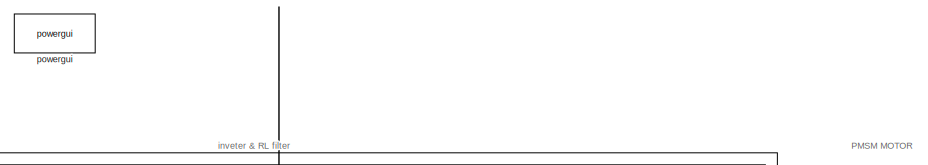
[diagram: root canvas - part 1/6, top center region]
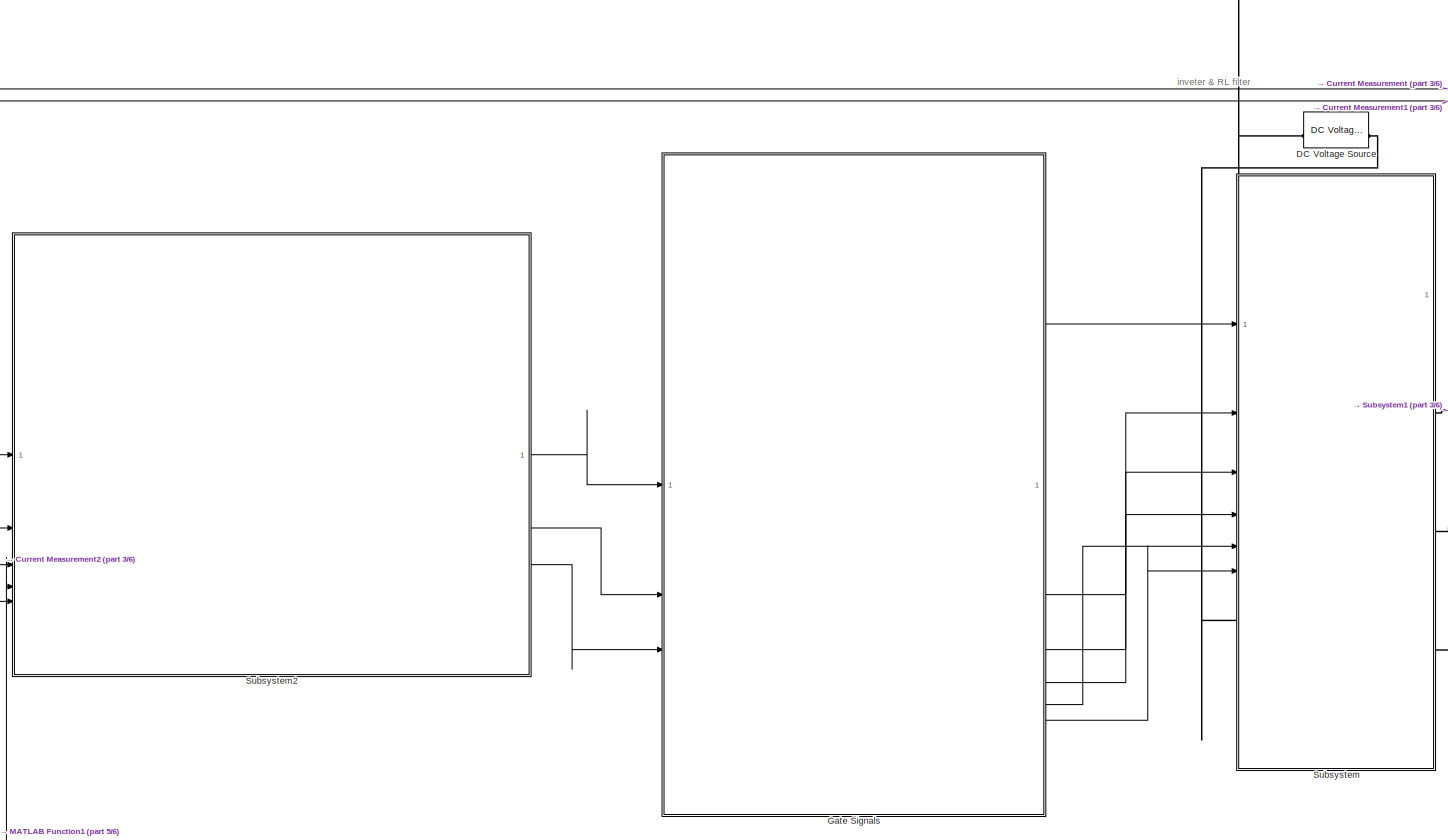
[diagram: root canvas - part 2/6, top left region]
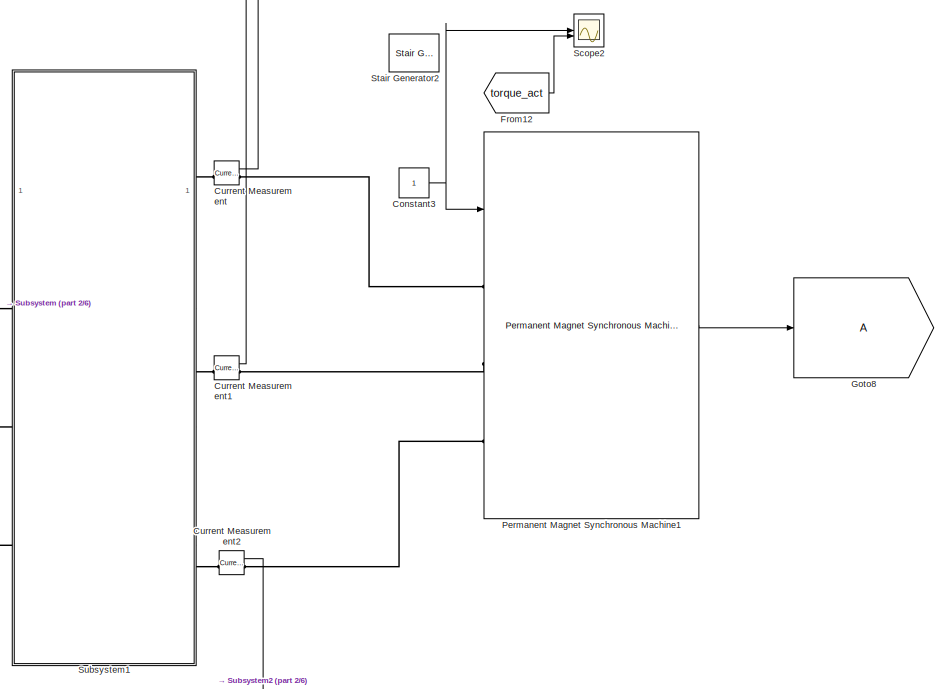
[diagram: root canvas - part 3/6, top center region]
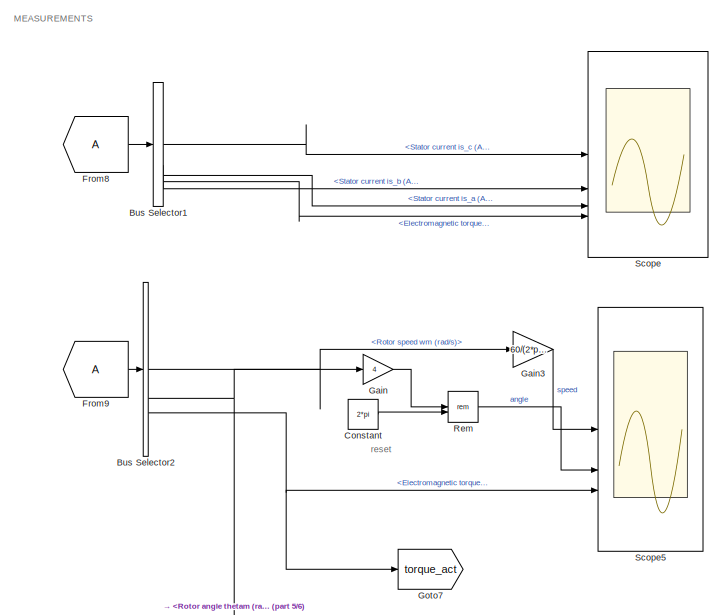
[diagram: root canvas - part 4/6, middle right region]
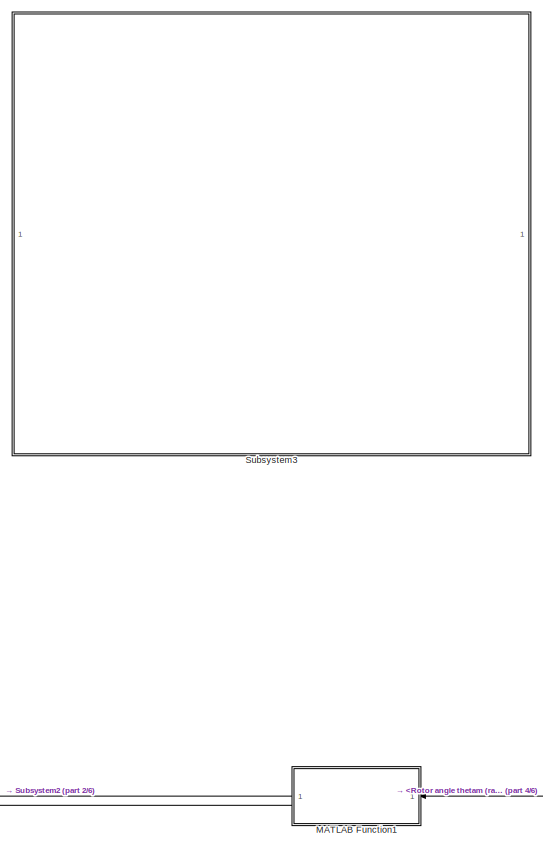
[diagram: root canvas - part 5/6, bottom left region]
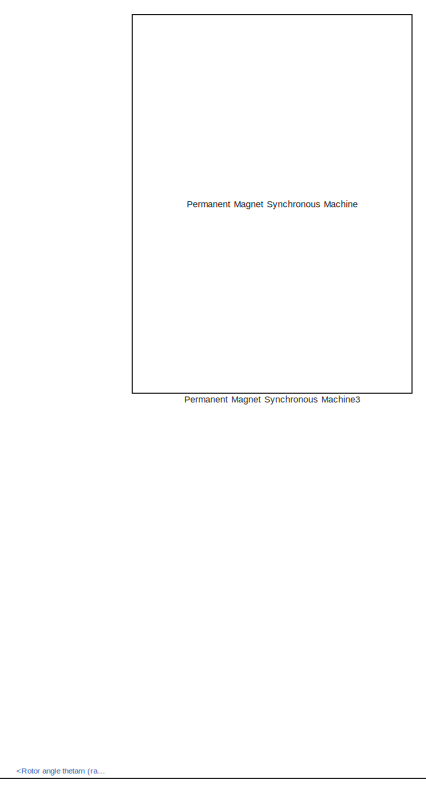
[diagram: root canvas - part 6/6, bottom center region]
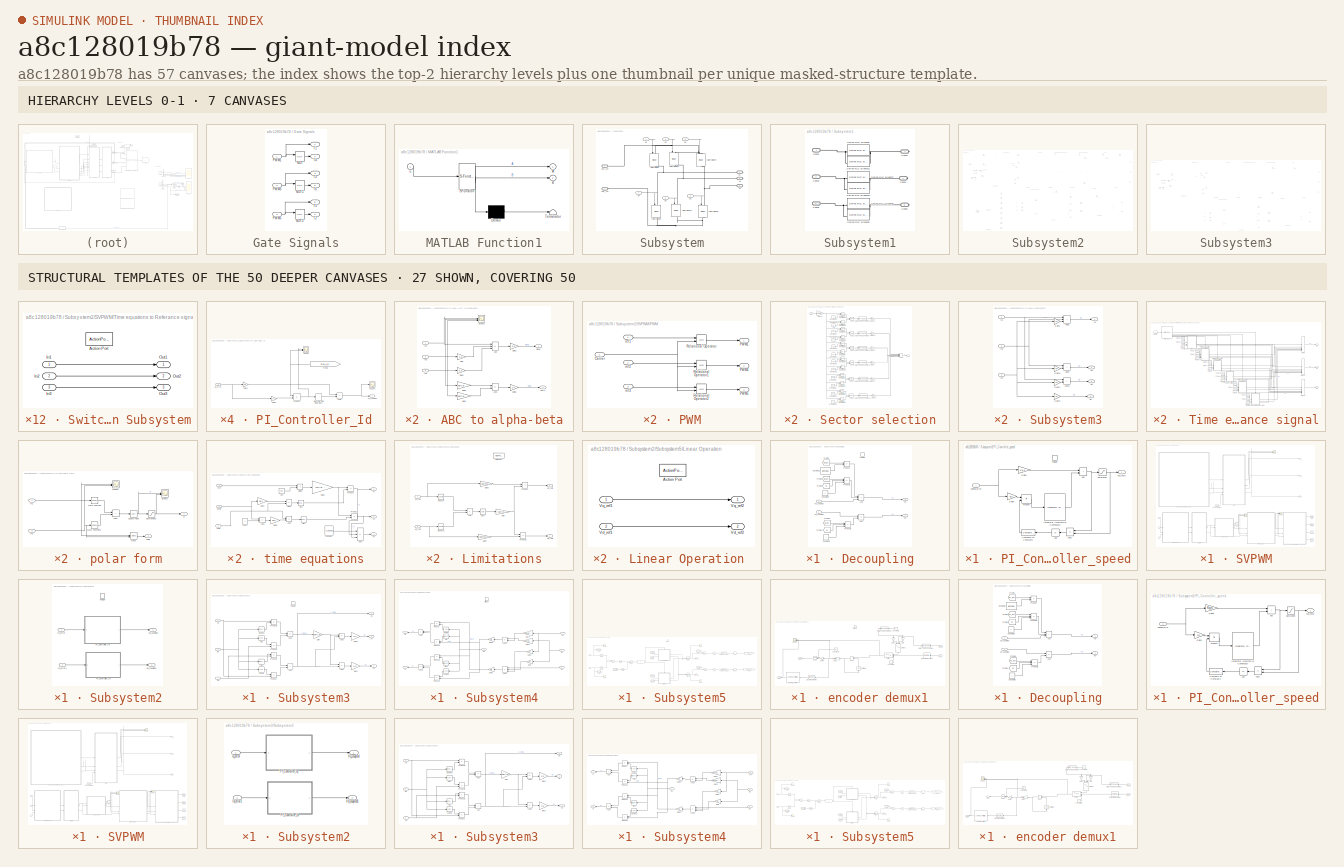
[diagram: thumbnail index - top-2 hierarchy levels (7 canvases) + 27 structural-template representatives of the remaining 50 canvases]
MODEL slx_a8c128019b78
KIND model
CONFIG AbsTol = auto
CONFIG EnableMultiTasking = off
CONFIG FixedStep = 1e-6
CONFIG MaxStep = 1e-5
CONFIG MinStep = auto
CONFIG RelTol = 1e-3
CONFIG SampleTimeConstraint = Unconstrained
CONFIG SolverName = FixedStepAuto
CONFIG StartTime = 0.0
CONFIG StopTime = 3
BLOCK [BusSelector] Bus Selector1
  OutputSignals = Stator current is_c (A),Stator current is_b (A),Stator current is_a (A),Electromagnetic torque Te (N*m)
BLOCK [BusSelector] Bus Selector2
  OutputSignals = Rotor speed wm (rad/s),Rotor angle thetam (rad),Electromagnetic torque Te (N*m)
BLOCK [Constant] Constant
  Value = 2*pi
BLOCK [Constant] Constant3
BLOCK [Reference] Current Measurement  REF=spsCurrentMeasurementLib/Current Measurement
  LibrarySourceBlock = sps_lib/Sensors and Measurements/Current Measurement
  SourceBlock = spsCurrentMeasurementLib/Current Measurement
  SourceType = Current Measurement
  UserDataPersistent = on
BLOCK [Reference] Current Measurement1  REF=spsCurrentMeasurementLib/Current Measurement
  LibrarySourceBlock = sps_lib/Sensors and Measurements/Current Measurement
  SourceBlock = spsCurrentMeasurementLib/Current Measurement
  SourceType = Current Measurement
  UserDataPersistent = on
BLOCK [Reference] Current Measurement2  REF=spsCurrentMeasurementLib/Current Measurement
  LibrarySourceBlock = sps_lib/Sensors and Measurements/Current Measurement
  SourceBlock = spsCurrentMeasurementLib/Current Measurement
  SourceType = Current Measurement
  UserDataPersistent = on
BLOCK [Reference] DC Voltage Source  REF=spsDCVoltageSourceLib/DC Voltage Source
  LibrarySourceBlock = sps_lib/Sources/DC Voltage Source
  NameLocation = top
  SourceBlock = spsDCVoltageSourceLib/DC Voltage Source
  SourceType = DC Voltage Source
BLOCK [From] From12
  GotoTag = torque_act
  TagVisibility = global
BLOCK [From] From8
BLOCK [From] From9
BLOCK [Gain] Gain
  Gain = 4
BLOCK [Gain] Gain3
  Gain = 60/(2*pi)
BLOCK [SubSystem] Gate Signals
BLOCK [Logic] Gate Signals/NOT
  AllPortsSameDT = off
  IconShape = distinctive
  Operator = NOT
  OutDataTypeStr = boolean
BLOCK [Logic] Gate Signals/NOT1
  AllPortsSameDT = off
  IconShape = distinctive
  Operator = NOT
  OutDataTypeStr = boolean
BLOCK [Logic] Gate Signals/NOT2
  AllPortsSameDT = off
  IconShape = distinctive
  Operator = NOT
  OutDataTypeStr = boolean
BLOCK [Inport] Gate Signals/PWM1
BLOCK [Inport] Gate Signals/PWM3
  Port = 2
BLOCK [Inport] Gate Signals/PWM5
  Port = 3
BLOCK [Outport] Gate Signals/T1
BLOCK [Outport] Gate Signals/T2
  Port = 2
BLOCK [Outport] Gate Signals/T3
  Port = 3
BLOCK [Outport] Gate Signals/T4
  Port = 4
BLOCK [Outport] Gate Signals/T5
  Port = 5
BLOCK [Outport] Gate Signals/T6
  Port = 6
BLOCK [Goto] Goto7
  GotoTag = torque_act
  TagVisibility = global
BLOCK [Goto] Goto8
BLOCK [SubSystem] MATLAB Function1
  ErrorFcn = Stateflow.Translate.translate
  PermitHierarchicalResolution = ExplicitOnly
  SFBlockType = MATLAB Function
  TreatAsAtomicUnit = on
BLOCK [Demux] MATLAB Function1/ Demux 
  Outputs = 1
BLOCK [S-Function] MATLAB Function1/ SFunction 
  EnableBusSupport = off
  FunctionName = sf_sfun
  PortCounts = [1 3]
  SFcnIsStateOwnerBlock = off
  SFunctionDeploymentMode = off
  Tag = Stateflow S-Function 1
BLOCK [Terminator] MATLAB Function1/ Terminator 
BLOCK [Outport] MATLAB Function1/A
BLOCK [Outport] MATLAB Function1/B
  Port = 2
BLOCK [Inport] MATLAB Function1/u
BLOCK [Reference] Permanent Magnet Synchronous Machine1  REF=spsPermanentMagnetSynchronousMachineLib/Permanent Magnet
Synchronous Machine
  LibrarySourceBlock = sps_lib/Electrical Machines/Permanent Magnet\nSynchronous Machine
  SourceBlock = spsPermanentMagnetSynchronousMachineLib/Permanent Magnet\nSynchronous Machine
  SourceType = Permanent Magnet Synchronous Machine
BLOCK [Reference] Permanent Magnet Synchronous Machine3  REF=spsPermanentMagnetSynchronousMachineLib/Permanent Magnet
Synchronous Machine
  Commented = on
  LibrarySourceBlock = sps_lib/Electrical Machines/Permanent Magnet\nSynchronous Machine
  SourceBlock = spsPermanentMagnetSynchronousMachineLib/Permanent Magnet\nSynchronous Machine
  SourceType = Permanent Magnet Synchronous Machine
BLOCK [Math] Rem
  Operator = rem
  SignedPower = on
BLOCK [Scope] Scope
  Floating = off
  NumInputPorts = 4
  ScopeSpecificationString = Simulink.scopes.TimeScopeBlockCfg('CurrentConfiguration', extmgr.ConfigurationSet(extmgr.Configuration('Core','General UI',true),extmgr.Configuration('Core','Source UI',true),extmgr.Configuration('Sources','WiredSimulink',true,'DataLoggingVariableName','ScopeData1'),extmgr.Configuration('Visuals','Time Domain',true,'SerializedDisplays',{struct('MinYLimReal','-12.68768','MaxYLimReal','7.13879','YLa...<+3953ch>
BLOCK [Scope] Scope2
  Floating = off
  NumInputPorts = 2
  ScopeSpecificationString = Simulink.scopes.TimeScopeBlockCfg('CurrentConfiguration', extmgr.ConfigurationSet(extmgr.Configuration('Core','General UI',true),extmgr.Configuration('Core','Source UI',true),extmgr.Configuration('Sources','WiredSimulink',true,'DataLoggingVariableName','ScopeData2'),extmgr.Configuration('Visuals','Time Domain',true,'SerializedDisplays',{struct('MinYLimReal','-0.45147','MaxYLimReal','4.06322','YLab...<+1564ch>
BLOCK [Scope] Scope5
  Floating = off
  NumInputPorts = 3
  ScopeSpecificationString = Simulink.scopes.TimeScopeBlockCfg('CurrentConfiguration', extmgr.ConfigurationSet(extmgr.Configuration('Core','General UI',true),extmgr.Configuration('Core','Source UI',true),extmgr.Configuration('Sources','WiredSimulink',true,'DataLoggingVariableName','ScopeData10'),extmgr.Configuration('Visuals','Time Domain',true,'SerializedDisplays',{struct('MinYLimReal','-279.45396','MaxYLimReal','2168.98117'...<+2772ch>
BLOCK [Reference] Stair Generator2  REF=spsStairGeneratorLib/Stair
Generator
  LibrarySourceBlock = sps_lib/Sources/Signal Generator Sources/Stair\nGenerator
  SourceBlock = spsStairGeneratorLib/Stair\nGenerator
  SourceType = Stair Generator
BLOCK [SubSystem] Subsystem
BLOCK [Reference] Subsystem/IGBT//Diode  REF=spsIGBTDiodeLib/IGBT//Diode
  LibrarySourceBlock = sps_lib/Power Electronics/IGBT//Diode
  NameLocation = left
  SourceBlock = spsIGBTDiodeLib/IGBT//Diode
  SourceType = IGBT/Diode
BLOCK [Reference] Subsystem/IGBT//Diode1  REF=spsIGBTDiodeLib/IGBT//Diode
  LibrarySourceBlock = sps_lib/Power Electronics/IGBT//Diode
  NameLocation = left
  SourceBlock = spsIGBTDiodeLib/IGBT//Diode
  SourceType = IGBT/Diode
BLOCK [Reference] Subsystem/IGBT//Diode2  REF=spsIGBTDiodeLib/IGBT//Diode
  LibrarySourceBlock = sps_lib/Power Electronics/IGBT//Diode
  NameLocation = left
  SourceBlock = spsIGBTDiodeLib/IGBT//Diode
  SourceType = IGBT/Diode
BLOCK [Reference] Subsystem/IGBT//Diode3  REF=spsIGBTDiodeLib/IGBT//Diode
  LibrarySourceBlock = sps_lib/Power Electronics/IGBT//Diode
  NameLocation = left
  SourceBlock = spsIGBTDiodeLib/IGBT//Diode
  SourceType = IGBT/Diode
BLOCK [Reference] Subsystem/IGBT//Diode4  REF=spsIGBTDiodeLib/IGBT//Diode
  LibrarySourceBlock = sps_lib/Power Electronics/IGBT//Diode
  NameLocation = left
  SourceBlock = spsIGBTDiodeLib/IGBT//Diode
  SourceType = IGBT/Diode
BLOCK [Reference] Subsystem/IGBT//Diode5  REF=spsIGBTDiodeLib/IGBT//Diode
  LibrarySourceBlock = sps_lib/Power Electronics/IGBT//Diode
  NameLocation = left
  SourceBlock = spsIGBTDiodeLib/IGBT//Diode
  SourceType = IGBT/Diode
BLOCK [PMIOPort] Subsystem/Va
  Port = 3
  Side = Right
BLOCK [PMIOPort] Subsystem/Vb
  Port = 4
  Side = Right
BLOCK [PMIOPort] Subsystem/Vc
  Port = 5
  Side = Right
BLOCK [PMIOPort] Subsystem/Vdc_+ve
  Port = 2
  Side = Left
BLOCK [PMIOPort] Subsystem/Vdc_-ve
  Side = Left
BLOCK [Inport] Subsystem/g1
BLOCK [Inport] Subsystem/g2
  Port = 2
BLOCK [Inport] Subsystem/g3
  Port = 3
BLOCK [Inport] Subsystem/g4
  Port = 4
BLOCK [Inport] Subsystem/g5
  Port = 5
BLOCK [Inport] Subsystem/g6
  Port = 6
BLOCK [SubSystem] Subsystem1
BLOCK [PMIOPort] Subsystem1/Conn1
  Side = Left
BLOCK [PMIOPort] Subsystem1/Conn2
  Port = 2
  Side = Right
BLOCK [PMIOPort] Subsystem1/Conn3
  Port = 3
  Side = Left
BLOCK [PMIOPort] Subsystem1/Conn4
  Port = 4
  Side = Right
BLOCK [PMIOPort] Subsystem1/Conn5
  Port = 5
  Side = Right
BLOCK [PMIOPort] Subsystem1/Conn6
  Port = 6
  Side = Left
BLOCK [Reference] Subsystem1/Series RLC Branch10  REF=spsSeriesRLCBranchLib/Series RLC Branch
  LibrarySourceBlock = sps_lib/Passives/Series RLC Branch
  SourceBlock = spsSeriesRLCBranchLib/Series RLC Branch
  SourceType = Series RLC Branch
BLOCK [Reference] Subsystem1/Series RLC Branch11  REF=spsSeriesRLCBranchLib/Series RLC Branch
  LibrarySourceBlock = sps_lib/Passives/Series RLC Branch
  SourceBlock = spsSeriesRLCBranchLib/Series RLC Branch
  SourceType = Series RLC Branch
BLOCK [Reference] Subsystem1/Series RLC Branch6  REF=spsSeriesRLCBranchLib/Series RLC Branch
  LibrarySourceBlock = sps_lib/Passives/Series RLC Branch
  SourceBlock = spsSeriesRLCBranchLib/Series RLC Branch
  SourceType = Series RLC Branch
BLOCK [Reference] Subsystem1/Series RLC Branch7  REF=spsSeriesRLCBranchLib/Series RLC Branch
  LibrarySourceBlock = sps_lib/Passives/Series RLC Branch
  SourceBlock = spsSeriesRLCBranchLib/Series RLC Branch
  SourceType = Series RLC Branch
BLOCK [Reference] Subsystem1/Series RLC Branch8  REF=spsSeriesRLCBranchLib/Series RLC Branch
  LibrarySourceBlock = sps_lib/Passives/Series RLC Branch
  SourceBlock = spsSeriesRLCBranchLib/Series RLC Branch
  SourceType = Series RLC Branch
BLOCK [Reference] Subsystem1/Series RLC Branch9  REF=spsSeriesRLCBranchLib/Series RLC Branch
  LibrarySourceBlock = sps_lib/Passives/Series RLC Branch
  SourceBlock = spsSeriesRLCBranchLib/Series RLC Branch
  SourceType = Series RLC Branch
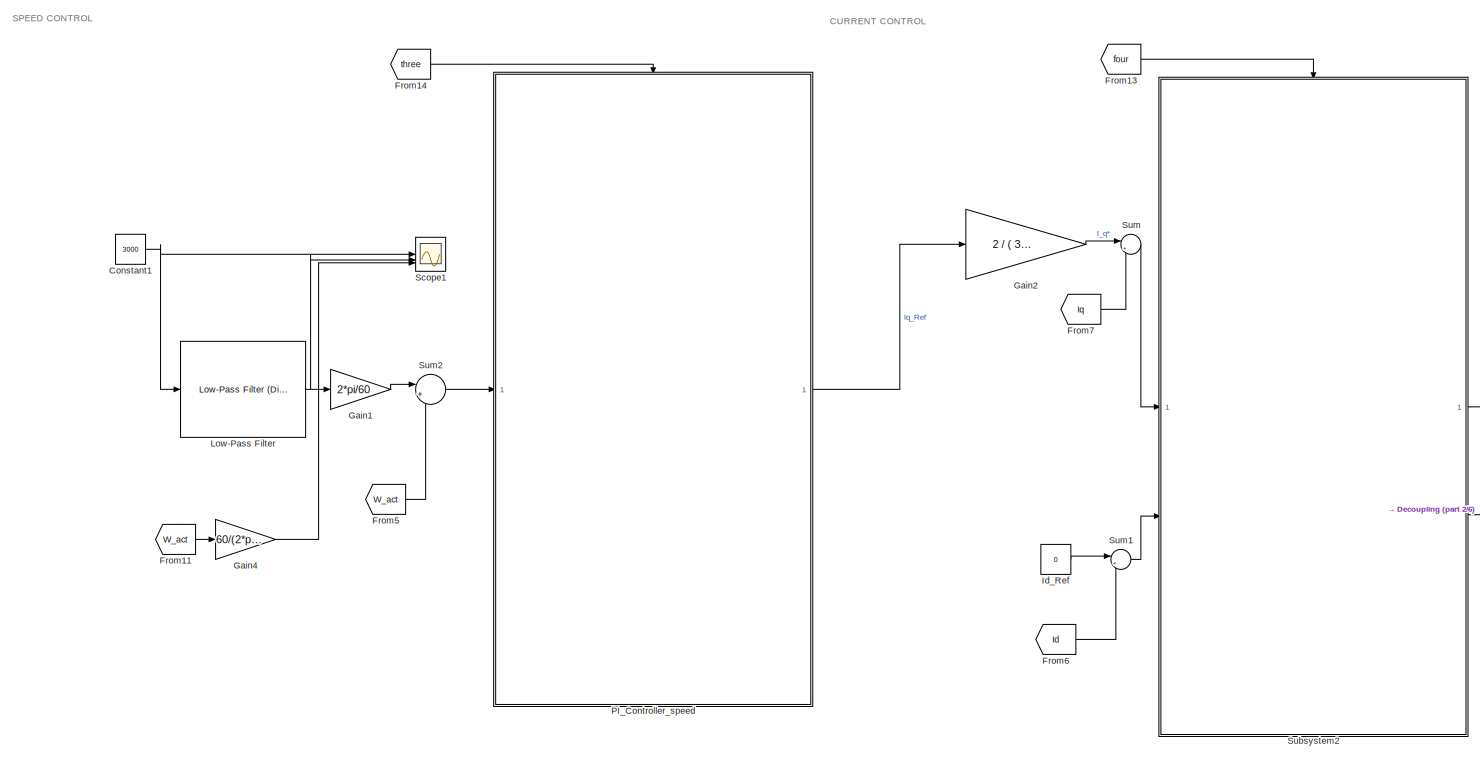
[diagram: Subsystem2 - part 1/6, top left region]
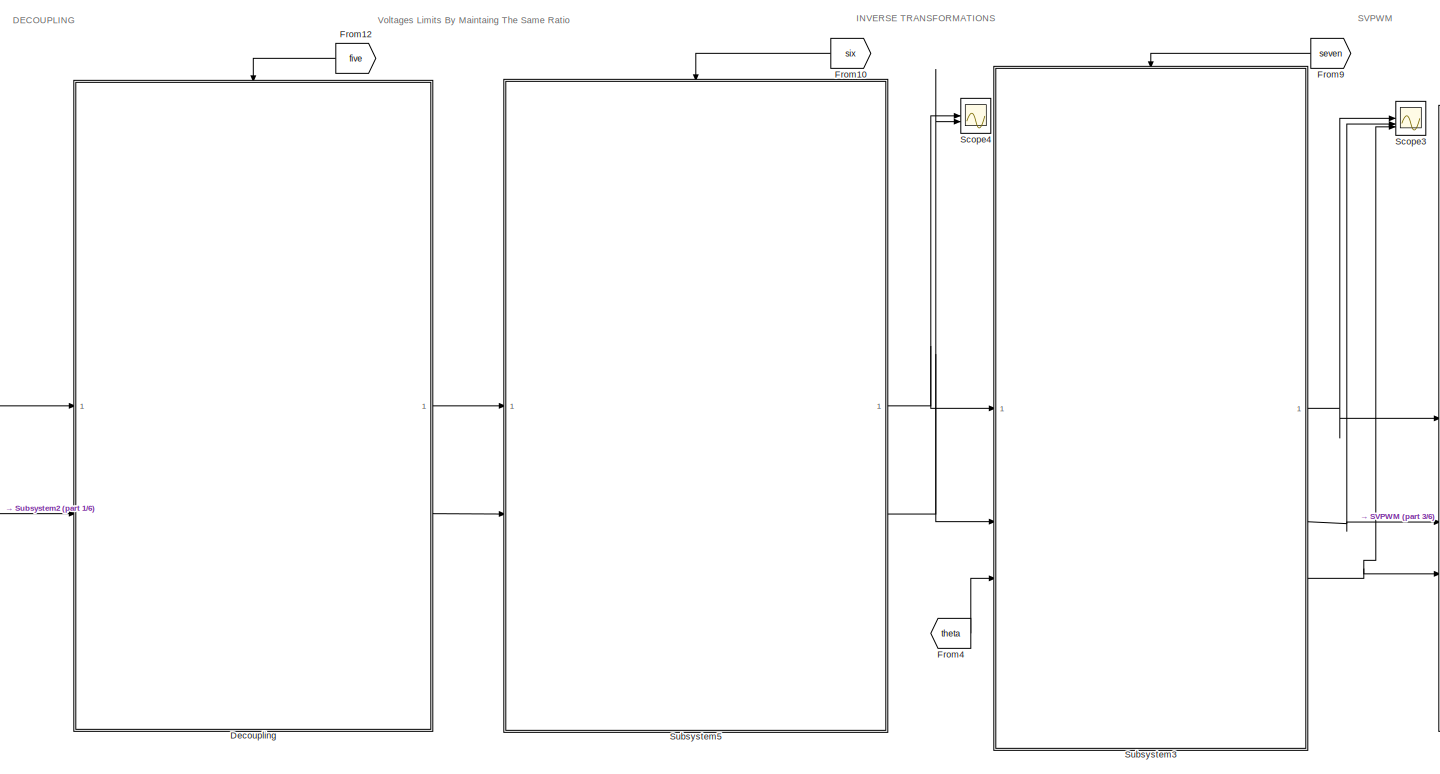
[diagram: Subsystem2 - part 2/6, top center region]
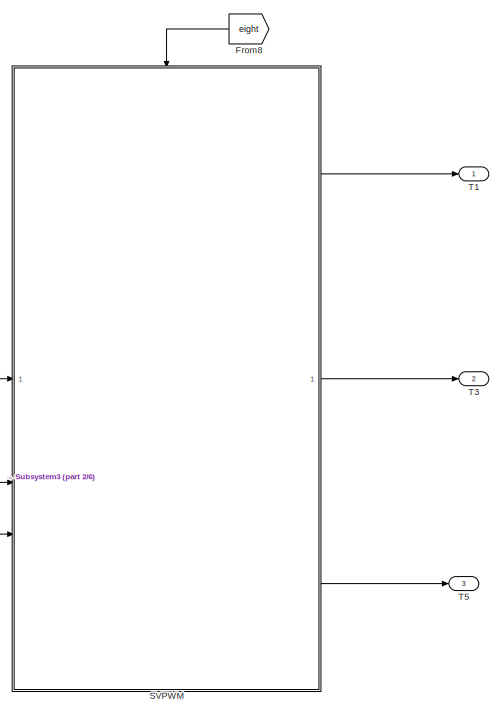
[diagram: Subsystem2 - part 3/6, top right region]
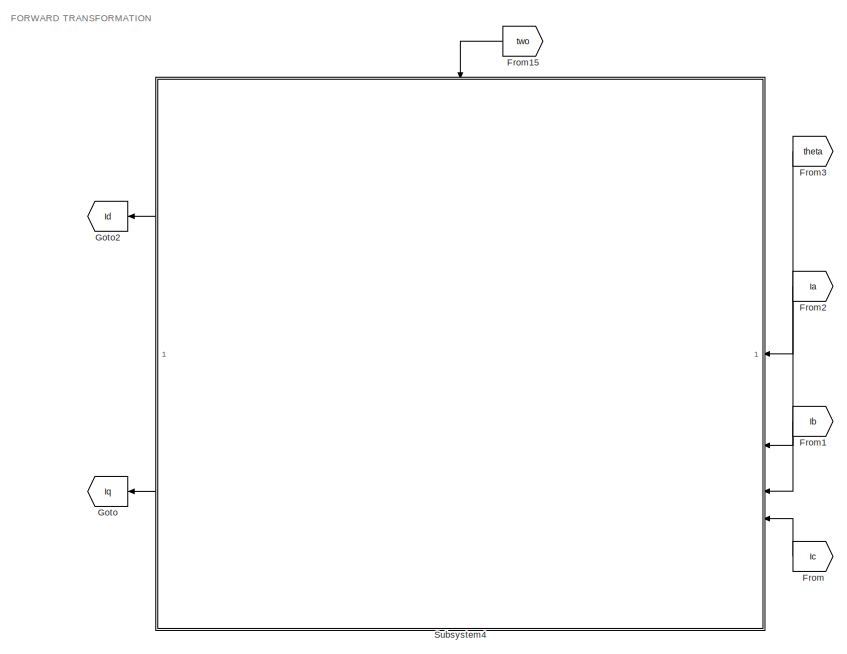
[diagram: Subsystem2 - part 4/6, bottom center region]
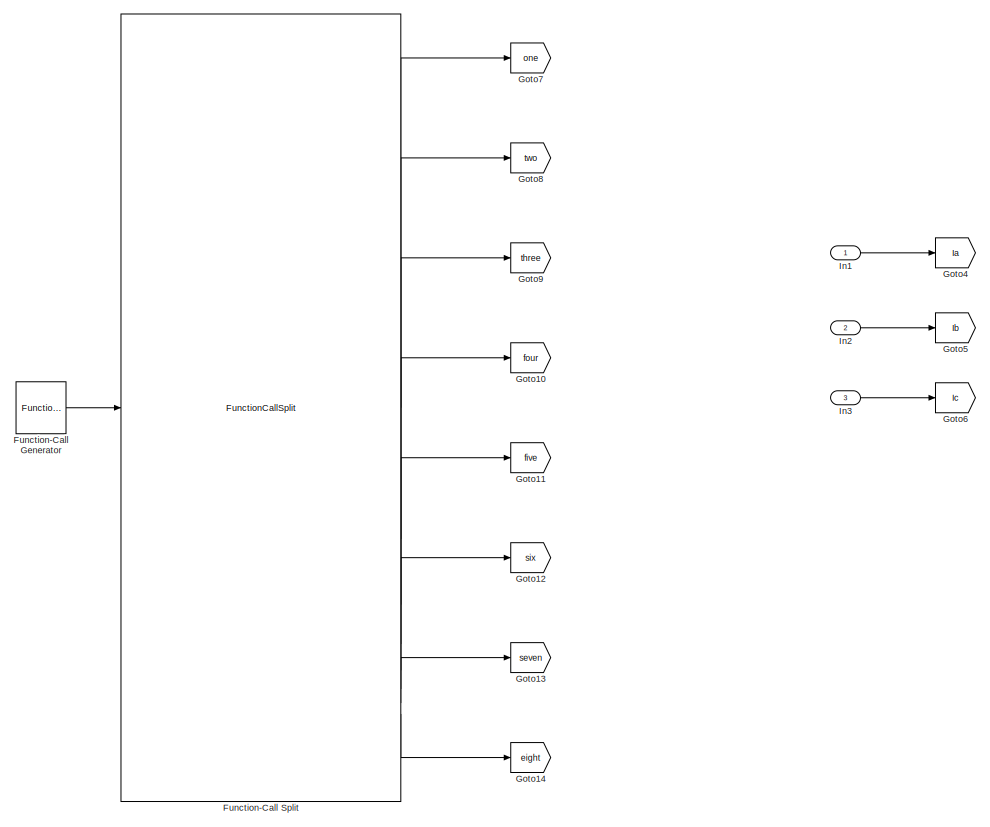
[diagram: Subsystem2 - part 5/6, bottom left region]
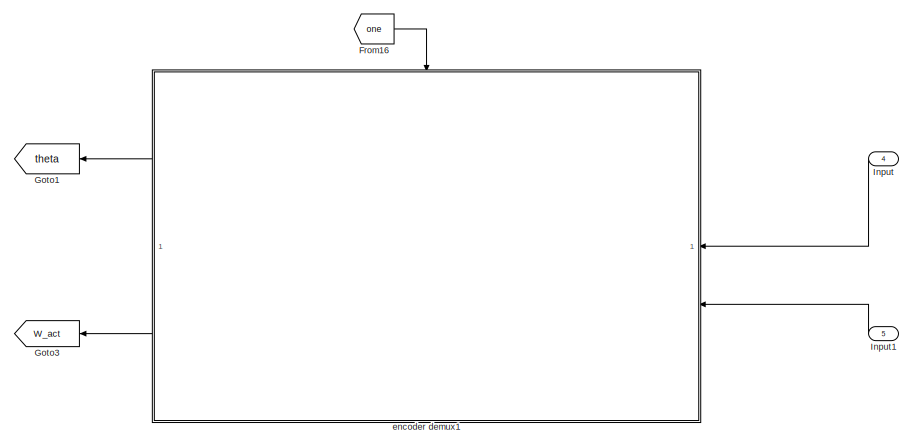
[diagram: Subsystem2 - part 6/6, bottom right region]
BLOCK [SubSystem] Subsystem2
  TreatAsAtomicUnit = on
BLOCK [Constant] Subsystem2/Constant1
  Value = 3000
BLOCK [SubSystem] Subsystem2/Decoupling
BLOCK [Sum] Subsystem2/Decoupling/Add
  IconShape = rectangular
  Inputs = +++
BLOCK [Sum] Subsystem2/Decoupling/Add1
  IconShape = rectangular
  Inputs = +-
BLOCK [Constant] Subsystem2/Decoupling/Constant1
  Value = lambda
BLOCK [Constant] Subsystem2/Decoupling/Constant2
  Value = L
BLOCK [Constant] Subsystem2/Decoupling/Constant3
  Value = L
BLOCK [From] Subsystem2/Decoupling/From10
  GotoTag = W_act
  TagVisibility = global
BLOCK [From] Subsystem2/Decoupling/From11
  GotoTag = Id
  NameLocation = top
  TagVisibility = global
BLOCK [From] Subsystem2/Decoupling/From5
  GotoTag = W_act
  TagVisibility = global
BLOCK [From] Subsystem2/Decoupling/From8
  GotoTag = W_act
  TagVisibility = global
BLOCK [From] Subsystem2/Decoupling/From9
  GotoTag = Iq
  NameLocation = top
  TagVisibility = global
BLOCK [Product] Subsystem2/Decoupling/Product
BLOCK [Product] Subsystem2/Decoupling/Product1
  Inputs = 3
BLOCK [Product] Subsystem2/Decoupling/Product2
  Inputs = 3
BLOCK [TriggerPort] Subsystem2/Decoupling/Trigger
  PortDimensions = 1
  StatesWhenEnabling = held
  TriggerType = function-call
  VariantControl = Variant
BLOCK [Outport] Subsystem2/Decoupling/Vd*
  Port = 2
BLOCK [Inport] Subsystem2/Decoupling/Vd_coupled
  Port = 2
BLOCK [Outport] Subsystem2/Decoupling/Vq*
BLOCK [Inport] Subsystem2/Decoupling/Vq_coupled
BLOCK [From] Subsystem2/From
  GotoTag = Ic
  NameLocation = top
BLOCK [From] Subsystem2/From1
  GotoTag = Ib
  NameLocation = top
BLOCK [From] Subsystem2/From10
  GotoTag = six
BLOCK [From] Subsystem2/From11
  GotoTag = W_act
  TagVisibility = global
BLOCK [From] Subsystem2/From12
  GotoTag = five
BLOCK [From] Subsystem2/From13
  GotoTag = four
BLOCK [From] Subsystem2/From14
  GotoTag = three
BLOCK [From] Subsystem2/From15
  GotoTag = two
BLOCK [From] Subsystem2/From16
  GotoTag = one
BLOCK [From] Subsystem2/From2
  GotoTag = Ia
  NameLocation = top
BLOCK [From] Subsystem2/From3
  GotoTag = theta
  NameLocation = top
BLOCK [From] Subsystem2/From4
  GotoTag = theta
BLOCK [From] Subsystem2/From5
  GotoTag = W_act
  TagVisibility = global
BLOCK [From] Subsystem2/From6
  GotoTag = Id
  NameLocation = top
  TagVisibility = global
BLOCK [From] Subsystem2/From7
  GotoTag = Iq
  NameLocation = top
  TagVisibility = global
BLOCK [From] Subsystem2/From8
  GotoTag = eight
BLOCK [From] Subsystem2/From9
  GotoTag = seven
BLOCK [Reference] Subsystem2/Function-Call Generator  REF=simulink/Ports &
Subsystems/Function-Call
Generator
  SourceBlock = simulink/Ports &\nSubsystems/Function-Call\nGenerator
  SourceType = Function-Call Generator
BLOCK [FunctionCallSplit] Subsystem2/Function-Call Split
  IconShape = distinctive
  NumOutputPorts = 8
  OutputPortLayout = default
BLOCK [Gain] Subsystem2/Gain1
  Gain = 2*pi/60
BLOCK [Gain] Subsystem2/Gain2
  Gain = 2 / ( 3 * lambda * p)
BLOCK [Gain] Subsystem2/Gain4
  Gain = 60/(2*pi)
BLOCK [Goto] Subsystem2/Goto
  GotoTag = Iq
  NameLocation = top
  TagVisibility = global
BLOCK [Goto] Subsystem2/Goto1
  GotoTag = theta
BLOCK [Goto] Subsystem2/Goto10
  GotoTag = four
BLOCK [Goto] Subsystem2/Goto11
  GotoTag = five
BLOCK [Goto] Subsystem2/Goto12
  GotoTag = six
BLOCK [Goto] Subsystem2/Goto13
  GotoTag = seven
BLOCK [Goto] Subsystem2/Goto14
  GotoTag = eight
BLOCK [Goto] Subsystem2/Goto2
  GotoTag = Id
  NameLocation = top
  TagVisibility = global
BLOCK [Goto] Subsystem2/Goto3
  GotoTag = W_act
  TagVisibility = global
BLOCK [Goto] Subsystem2/Goto4
  GotoTag = Ia
BLOCK [Goto] Subsystem2/Goto5
  GotoTag = Ib
BLOCK [Goto] Subsystem2/Goto6
  GotoTag = Ic
BLOCK [Goto] Subsystem2/Goto7
  GotoTag = one
BLOCK [Goto] Subsystem2/Goto8
  GotoTag = two
BLOCK [Goto] Subsystem2/Goto9
  GotoTag = three
BLOCK [Constant] Subsystem2/Id_Ref
  Value = 0
BLOCK [Inport] Subsystem2/In1
BLOCK [Inport] Subsystem2/In2
  Port = 2
BLOCK [Inport] Subsystem2/In3
  Port = 3
BLOCK [Inport] Subsystem2/Input
  Port = 4
BLOCK [Inport] Subsystem2/Input1
  Port = 5
BLOCK [Reference] Subsystem2/Low-Pass Filter   REF=eeGeneralControl/Low-Pass Filter
(Discrete or Continuous)
  SourceBlock = eeGeneralControl/Low-Pass Filter\n(Discrete or Continuous)
  SourceType = Low-Pass Filter (Discrete or Continuous)
BLOCK [SubSystem] Subsystem2/PI_Controller_speed
BLOCK [Abs] Subsystem2/PI_Controller_speed/Abs
  NameLocation = top
  SaturateOnIntegerOverflow = off
BLOCK [Sum] Subsystem2/PI_Controller_speed/Add
  IconShape = rectangular
BLOCK [Sum] Subsystem2/PI_Controller_speed/Add1
  IconShape = rectangular
  Inputs = +-
  NameLocation = top
BLOCK [Reference] Subsystem2/PI_Controller_speed/Compare To Constant1  REF=simulink/Logic and Bit
Operations/Compare
To Constant
  NameLocation = top
  SourceBlock = simulink/Logic and Bit\nOperations/Compare\nTo Constant
  SourceType = Compare To Constant
BLOCK [Gain] Subsystem2/PI_Controller_speed/Gain3
  Gain = Kp_s
BLOCK [Gain] Subsystem2/PI_Controller_speed/Gain4
  Gain = Ki_s
BLOCK [Reference] Subsystem2/PI_Controller_speed/Integrator (Discrete or Continuous)  REF=eeGeneralControl/Integrator
(Discrete or Continuous)
  SourceBlock = eeGeneralControl/Integrator\n(Discrete or Continuous)
  SourceType = Integrator (Discrete or Continuous)
BLOCK [Product] Subsystem2/PI_Controller_speed/Product
BLOCK [Saturate] Subsystem2/PI_Controller_speed/Saturation
  LowerLimit = -3.8
  UpperLimit = 3.8
BLOCK [TriggerPort] Subsystem2/PI_Controller_speed/Trigger
  PortDimensions = 1
  StatesWhenEnabling = held
  TriggerType = function-call
  VariantControl = Variant
BLOCK [Outport] Subsystem2/PI_Controller_speed/req_Torq
BLOCK [Inport] Subsystem2/PI_Controller_speed/speed_error
BLOCK [SubSystem] Subsystem2/SVPWM
BLOCK [SubSystem] Subsystem2/SVPWM/ABC to alpha-beta
BLOCK [Sum] Subsystem2/SVPWM/ABC to alpha-beta/Add
  IconShape = rectangular
  Inputs = +--
BLOCK [Sum] Subsystem2/SVPWM/ABC to alpha-beta/Add1
  IconShape = rectangular
  Inputs = +-
BLOCK [Gain] Subsystem2/SVPWM/ABC to alpha-beta/Gain
  Gain = 0.5
BLOCK [Gain] Subsystem2/SVPWM/ABC to alpha-beta/Gain1
  Gain = 0.5
BLOCK [Gain] Subsystem2/SVPWM/ABC to alpha-beta/Gain2
  Gain = 2/3
BLOCK [Gain] Subsystem2/SVPWM/ABC to alpha-beta/Gain3
  Gain = sqrt(3)/2
BLOCK [Gain] Subsystem2/SVPWM/ABC to alpha-beta/Gain4
  Gain = sqrt(3)/2
BLOCK [Gain] Subsystem2/SVPWM/ABC to alpha-beta/Gain5
  Gain = 2/3
BLOCK [Inport] Subsystem2/SVPWM/ABC to alpha-beta/In1
BLOCK [Inport] Subsystem2/SVPWM/ABC to alpha-beta/In2
  Port = 2
BLOCK [Inport] Subsystem2/SVPWM/ABC to alpha-beta/In3
  Port = 3
BLOCK [Scope] Subsystem2/SVPWM/ABC to alpha-beta/Scope1
  Floating = off
  NumInputPorts = 3
  ScopeSpecificationString = Simulink.scopes.TimeScopeBlockCfg('CurrentConfiguration', extmgr.ConfigurationSet(extmgr.Configuration('Core','General UI',true),extmgr.Configuration('Core','Source UI',true),extmgr.Configuration('Sources','WiredSimulink',true,'DataLoggingVariableName','ScopeData1'),extmgr.Configuration('Visuals','Time Domain',true,'SerializedDisplays',{struct('MinYLimReal','-196.71599','MaxYLimReal','220.21077','...<+1548ch>
BLOCK [Outport] Subsystem2/SVPWM/ABC to alpha-beta/alpha
BLOCK [Outport] Subsystem2/SVPWM/ABC to alpha-beta/beta
  Port = 2
BLOCK [Goto] Subsystem2/SVPWM/Goto10
  GotoTag = case4
  TagVisibility = global
BLOCK [Goto] Subsystem2/SVPWM/Goto6
  TagVisibility = global
BLOCK [Goto] Subsystem2/SVPWM/Goto7
  GotoTag = case1
  TagVisibility = global
BLOCK [Goto] Subsystem2/SVPWM/Goto8
  GotoTag = case2
  TagVisibility = global
BLOCK [Goto] Subsystem2/SVPWM/Goto9
  GotoTag = case3
  TagVisibility = global
BLOCK [SubSystem] Subsystem2/SVPWM/PWM
BLOCK [Inport] Subsystem2/SVPWM/PWM/Carrier
  Port = 4
BLOCK [Outport] Subsystem2/SVPWM/PWM/PWM1
BLOCK [Outport] Subsystem2/SVPWM/PWM/PWM3
  Port = 2
BLOCK [Outport] Subsystem2/SVPWM/PWM/PWM5
  Port = 3
BLOCK [RelationalOperator] Subsystem2/SVPWM/PWM/Relational Operator
  InputSameDT = off
  OutDataTypeStr = boolean
  RndMeth = Simplest
BLOCK [RelationalOperator] Subsystem2/SVPWM/PWM/Relational Operator1
  InputSameDT = off
  OutDataTypeStr = boolean
  RndMeth = Simplest
BLOCK [RelationalOperator] Subsystem2/SVPWM/PWM/Relational Operator2
  InputSameDT = off
  OutDataTypeStr = boolean
  RndMeth = Simplest
BLOCK [Inport] Subsystem2/SVPWM/PWM/ref1
BLOCK [Inport] Subsystem2/SVPWM/PWM/ref2
  Port = 2
BLOCK [Inport] Subsystem2/SVPWM/PWM/ref3
  Port = 3
BLOCK [Reference] Subsystem2/SVPWM/Repeating Sequence Interpolated1  REF=simulink/Sources/Repeating
Sequence
Interpolated
  SourceBlock = simulink/Sources/Repeating\nSequence\nInterpolated
  SourceType = Repeating Sequence Interpolated
BLOCK [Scope] Subsystem2/SVPWM/Scope
  Floating = off
  NumInputPorts = 3
  ScopeSpecificationString = Simulink.scopes.TimeScopeBlockCfg('CurrentConfiguration', extmgr.ConfigurationSet(extmgr.Configuration('Core','General UI',true),extmgr.Configuration('Core','Source UI',true),extmgr.Configuration('Sources','WiredSimulink',true,'DataLoggingVariableName','ScopeData1'),extmgr.Configuration('Visuals','Time Domain',true),extmgr.Configuration('Tools','Plot Navigation',true),extmgr.Configuration('Tools',...<+40ch>
BLOCK [Scope] Subsystem2/SVPWM/Scope1
  Floating = off
  NumInputPorts = 3
  ScopeSpecificationString = Simulink.scopes.TimeScopeBlockCfg('CurrentConfiguration', extmgr.ConfigurationSet(extmgr.Configuration('Core','General UI',true),extmgr.Configuration('Core','Source UI',true),extmgr.Configuration('Sources','WiredSimulink',true,'DataLoggingVariableName','ScopeData2'),extmgr.Configuration('Visuals','Time Domain',true),extmgr.Configuration('Tools','Plot Navigation',true),extmgr.Configuration('Tools',...<+40ch>
BLOCK [Scope] Subsystem2/SVPWM/Scope2
  Floating = off
  NumInputPorts = 3
  ScopeSpecificationString = Simulink.scopes.TimeScopeBlockCfg('CurrentConfiguration', extmgr.ConfigurationSet(extmgr.Configuration('Core','General UI',true),extmgr.Configuration('Core','Source UI',true),extmgr.Configuration('Sources','WiredSimulink',true,'DataLoggingVariableName','ScopeData3'),extmgr.Configuration('Visuals','Time Domain',true,'SerializedDisplays',{struct('MinYLimReal','-0.125','MaxYLimReal','1.125','YLabelRe...<+3031ch>
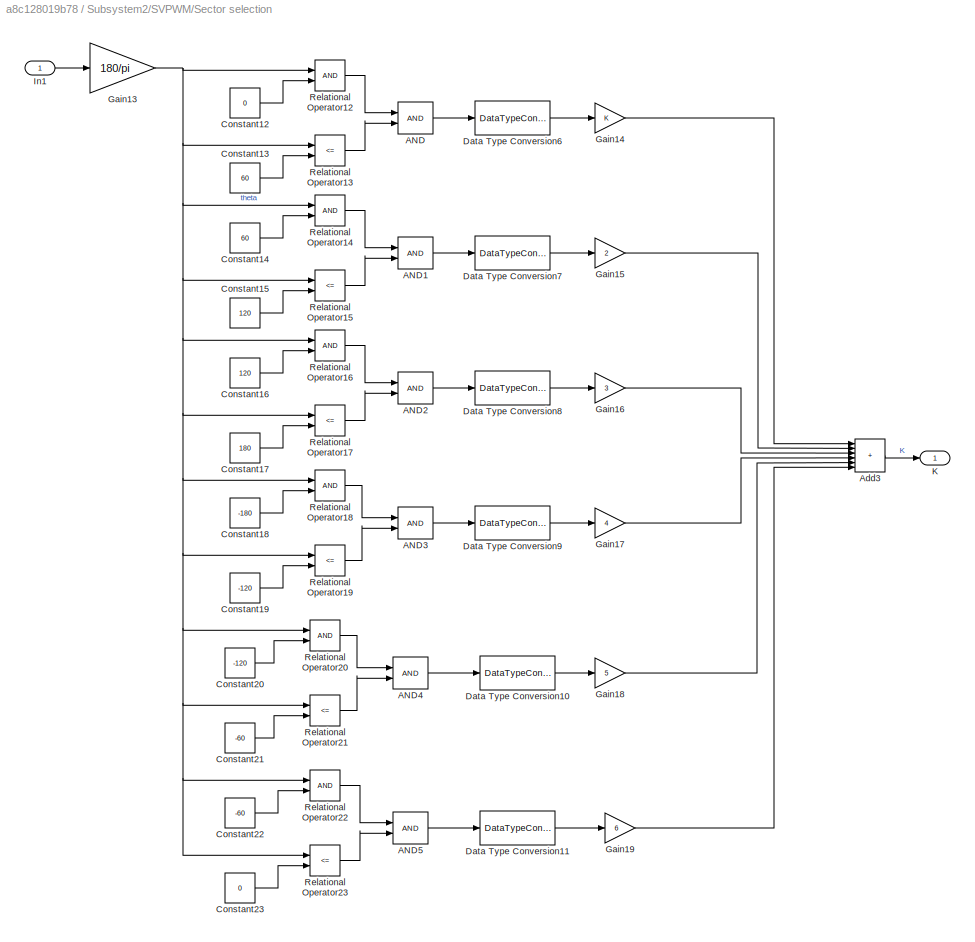
BLOCK [SubSystem] Subsystem2/SVPWM/Sector selection
BLOCK [Logic] Subsystem2/SVPWM/Sector selection/AND
  AllPortsSameDT = off
  IconShape = distinctive
  OutDataTypeStr = boolean
BLOCK [Logic] Subsystem2/SVPWM/Sector selection/AND1
  AllPortsSameDT = off
  IconShape = distinctive
  OutDataTypeStr = boolean
BLOCK [Logic] Subsystem2/SVPWM/Sector selection/AND2
  AllPortsSameDT = off
  IconShape = distinctive
  OutDataTypeStr = boolean
BLOCK [Logic] Subsystem2/SVPWM/Sector selection/AND3
  AllPortsSameDT = off
  IconShape = distinctive
  OutDataTypeStr = boolean
BLOCK [Logic] Subsystem2/SVPWM/Sector selection/AND4
  AllPortsSameDT = off
  IconShape = distinctive
  OutDataTypeStr = boolean
BLOCK [Logic] Subsystem2/SVPWM/Sector selection/AND5
  AllPortsSameDT = off
  IconShape = distinctive
  OutDataTypeStr = boolean
BLOCK [Sum] Subsystem2/SVPWM/Sector selection/Add3
  IconShape = rectangular
  Inputs = ++++++
BLOCK [Constant] Subsystem2/SVPWM/Sector selection/Constant12
  Value = 0
BLOCK [Constant] Subsystem2/SVPWM/Sector selection/Constant13
  Value = 60
BLOCK [Constant] Subsystem2/SVPWM/Sector selection/Constant14
  Value = 60
BLOCK [Constant] Subsystem2/SVPWM/Sector selection/Constant15
  Value = 120
BLOCK [Constant] Subsystem2/SVPWM/Sector selection/Constant16
  Value = 120
BLOCK [Constant] Subsystem2/SVPWM/Sector selection/Constant17
  Value = 180
BLOCK [Constant] Subsystem2/SVPWM/Sector selection/Constant18
  Value = -180
BLOCK [Constant] Subsystem2/SVPWM/Sector selection/Constant19
  Value = -120
BLOCK [Constant] Subsystem2/SVPWM/Sector selection/Constant20
  Value = -120
BLOCK [Constant] Subsystem2/SVPWM/Sector selection/Constant21
  Value = -60
BLOCK [Constant] Subsystem2/SVPWM/Sector selection/Constant22
  Value = -60
BLOCK [Constant] Subsystem2/SVPWM/Sector selection/Constant23
  Value = 0
BLOCK [DataTypeConversion] Subsystem2/SVPWM/Sector selection/Data Type Conversion10
  RndMeth = Floor
  SaturateOnIntegerOverflow = off
BLOCK [DataTypeConversion] Subsystem2/SVPWM/Sector selection/Data Type Conversion11
  RndMeth = Floor
  SaturateOnIntegerOverflow = off
BLOCK [DataTypeConversion] Subsystem2/SVPWM/Sector selection/Data Type Conversion6
  RndMeth = Floor
  SaturateOnIntegerOverflow = off
BLOCK [DataTypeConversion] Subsystem2/SVPWM/Sector selection/Data Type Conversion7
  RndMeth = Floor
  SaturateOnIntegerOverflow = off
BLOCK [DataTypeConversion] Subsystem2/SVPWM/Sector selection/Data Type Conversion8
  RndMeth = Floor
  SaturateOnIntegerOverflow = off
BLOCK [DataTypeConversion] Subsystem2/SVPWM/Sector selection/Data Type Conversion9
  RndMeth = Floor
  SaturateOnIntegerOverflow = off
BLOCK [Gain] Subsystem2/SVPWM/Sector selection/Gain13
  Gain = 180/pi
BLOCK [Gain] Subsystem2/SVPWM/Sector selection/Gain14
BLOCK [Gain] Subsystem2/SVPWM/Sector selection/Gain15
  Gain = 2
BLOCK [Gain] Subsystem2/SVPWM/Sector selection/Gain16
  Gain = 3
BLOCK [Gain] Subsystem2/SVPWM/Sector selection/Gain17
  Gain = 4
BLOCK [Gain] Subsystem2/SVPWM/Sector selection/Gain18
  Gain = 5
BLOCK [Gain] Subsystem2/SVPWM/Sector selection/Gain19
  Gain = 6
BLOCK [Inport] Subsystem2/SVPWM/Sector selection/In1
BLOCK [Outport] Subsystem2/SVPWM/Sector selection/K
BLOCK [RelationalOperator] Subsystem2/SVPWM/Sector selection/Relational Operator12
  InputSameDT = off
  OutDataTypeStr = boolean
  RndMeth = Simplest
BLOCK [RelationalOperator] Subsystem2/SVPWM/Sector selection/Relational Operator13
  InputSameDT = off
  Operator = <=
  OutDataTypeStr = boolean
  RndMeth = Simplest
BLOCK [RelationalOperator] Subsystem2/SVPWM/Sector selection/Relational Operator14
  InputSameDT = off
  OutDataTypeStr = boolean
  RndMeth = Simplest
BLOCK [RelationalOperator] Subsystem2/SVPWM/Sector selection/Relational Operator15
  InputSameDT = off
  Operator = <=
  OutDataTypeStr = boolean
  RndMeth = Simplest
BLOCK [RelationalOperator] Subsystem2/SVPWM/Sector selection/Relational Operator16
  InputSameDT = off
  OutDataTypeStr = boolean
  RndMeth = Simplest
BLOCK [RelationalOperator] Subsystem2/SVPWM/Sector selection/Relational Operator17
  InputSameDT = off
  Operator = <=
  OutDataTypeStr = boolean
  RndMeth = Simplest
BLOCK [RelationalOperator] Subsystem2/SVPWM/Sector selection/Relational Operator18
  InputSameDT = off
  OutDataTypeStr = boolean
  RndMeth = Simplest
BLOCK [RelationalOperator] Subsystem2/SVPWM/Sector selection/Relational Operator19
  InputSameDT = off
  Operator = <=
  OutDataTypeStr = boolean
  RndMeth = Simplest
BLOCK [RelationalOperator] Subsystem2/SVPWM/Sector selection/Relational Operator20
  InputSameDT = off
  OutDataTypeStr = boolean
  RndMeth = Simplest
BLOCK [RelationalOperator] Subsystem2/SVPWM/Sector selection/Relational Operator21
  InputSameDT = off
  Operator = <=
  OutDataTypeStr = boolean
  RndMeth = Simplest
BLOCK [RelationalOperator] Subsystem2/SVPWM/Sector selection/Relational Operator22
  InputSameDT = off
  OutDataTypeStr = boolean
  RndMeth = Simplest
BLOCK [RelationalOperator] Subsystem2/SVPWM/Sector selection/Relational Operator23
  InputSameDT = off
  Operator = <=
  OutDataTypeStr = boolean
  RndMeth = Simplest
BLOCK [SubSystem] Subsystem2/SVPWM/Subsystem3
BLOCK [Sum] Subsystem2/SVPWM/Subsystem3/Add10
  IconShape = rectangular
BLOCK [Sum] Subsystem2/SVPWM/Subsystem3/Add8
  IconShape = rectangular
  Inputs = +++
BLOCK [Sum] Subsystem2/SVPWM/Subsystem3/Add9
  IconShape = rectangular
BLOCK [Gain] Subsystem2/SVPWM/Subsystem3/Gain10
  Gain = 0.5
BLOCK [Gain] Subsystem2/SVPWM/Subsystem3/Gain11
  Gain = 0.5
BLOCK [Gain] Subsystem2/SVPWM/Subsystem3/Gain12
  Gain = 0.5
BLOCK [Gain] Subsystem2/SVPWM/Subsystem3/Gain9
  Gain = 0.5
BLOCK [Inport] Subsystem2/SVPWM/Subsystem3/In1
BLOCK [Inport] Subsystem2/SVPWM/Subsystem3/In2
  Port = 2
BLOCK [Inport] Subsystem2/SVPWM/Subsystem3/In3
  Port = 3
BLOCK [Outport] Subsystem2/SVPWM/Subsystem3/S1
BLOCK [Outport] Subsystem2/SVPWM/Subsystem3/S3
  Port = 2
BLOCK [Outport] Subsystem2/SVPWM/Subsystem3/S5
  Port = 4
BLOCK [Outport] Subsystem2/SVPWM/Subsystem3/S6
  Port = 3
BLOCK [Outport] Subsystem2/SVPWM/T1
BLOCK [Outport] Subsystem2/SVPWM/T3
  Port = 2
BLOCK [Outport] Subsystem2/SVPWM/T5
  Port = 3
BLOCK [SubSystem] Subsystem2/SVPWM/Time equations to Referance signal
BLOCK [From] Subsystem2/SVPWM/Time equations to Referance signal/From10
  GotoTag = case4
  TagVisibility = global
BLOCK [From] Subsystem2/SVPWM/Time equations to Referance signal/From11
  GotoTag = case1
  TagVisibility = global
BLOCK [From] Subsystem2/SVPWM/Time equations to Referance signal/From12
  GotoTag = case4
  TagVisibility = global
BLOCK [From] Subsystem2/SVPWM/Time equations to Referance signal/From13
  GotoTag = case4
  TagVisibility = global
BLOCK [From] Subsystem2/SVPWM/Time equations to Referance signal/From14
  GotoTag = case1
  TagVisibility = global
BLOCK [From] Subsystem2/SVPWM/Time equations to Referance signal/From15
  GotoTag = case2
  TagVisibility = global
BLOCK [From] Subsystem2/SVPWM/Time equations to Referance signal/From16
  GotoTag = case4
  TagVisibility = global
BLOCK [From] Subsystem2/SVPWM/Time equations to Referance signal/From17
  GotoTag = case3
  TagVisibility = global
BLOCK [From] Subsystem2/SVPWM/Time equations to Referance signal/From18
  GotoTag = case1
  TagVisibility = global
BLOCK [From] Subsystem2/SVPWM/Time equations to Referance signal/From19
  GotoTag = case2
  TagVisibility = global
BLOCK [From] Subsystem2/SVPWM/Time equations to Referance signal/From20
  GotoTag = case4
  TagVisibility = global
BLOCK [From] Subsystem2/SVPWM/Time equations to Referance signal/From21
  GotoTag = case1
  TagVisibility = global
BLOCK [From] Subsystem2/SVPWM/Time equations to Referance signal/From22
  GotoTag = case1
  TagVisibility = global
BLOCK [From] Subsystem2/SVPWM/Time equations to Referance signal/From23
  GotoTag = case4
  TagVisibility = global
BLOCK [From] Subsystem2/SVPWM/Time equations to Referance signal/From24
  GotoTag = case3
  TagVisibility = global
BLOCK [From] Subsystem2/SVPWM/Time equations to Referance signal/From6
  TagVisibility = global
BLOCK [From] Subsystem2/SVPWM/Time equations to Referance signal/From7
  GotoTag = case1
  TagVisibility = global
BLOCK [From] Subsystem2/SVPWM/Time equations to Referance signal/From8
  GotoTag = case2
  TagVisibility = global
BLOCK [From] Subsystem2/SVPWM/Time equations to Referance signal/From9
  GotoTag = case3
  TagVisibility = global
BLOCK [Merge] Subsystem2/SVPWM/Time equations to Referance signal/Merge
  Inputs = 6
BLOCK [Merge] Subsystem2/SVPWM/Time equations to Referance signal/Merge1
  Inputs = 6
BLOCK [Merge] Subsystem2/SVPWM/Time equations to Referance signal/Merge2
  Inputs = 6
BLOCK [SwitchCase] Subsystem2/SVPWM/Time equations to Referance signal/Switch Case
  CaseConditions = {1 2 3 4 5 6}
BLOCK [SubSystem] Subsystem2/SVPWM/Time equations to Referance signal/Switch Case Action Subsystem
  TreatAsAtomicUnit = on
BLOCK [ActionPort] Subsystem2/SVPWM/Time equations to Referance signal/Switch Case Action Subsystem/Action Port
  ActionPortLabel = case [ 1 ]:
BLOCK [Inport] Subsystem2/SVPWM/Time equations to Referance signal/Switch Case Action Subsystem/In1
BLOCK [Inport] Subsystem2/SVPWM/Time equations to Referance signal/Switch Case Action Subsystem/In2
  Port = 2
BLOCK [Inport] Subsystem2/SVPWM/Time equations to Referance signal/Switch Case Action Subsystem/In3
  Port = 3
BLOCK [Outport] Subsystem2/SVPWM/Time equations to Referance signal/Switch Case Action Subsystem/Out1
BLOCK [Outport] Subsystem2/SVPWM/Time equations to Referance signal/Switch Case Action Subsystem/Out2
  Port = 2
BLOCK [Outport] Subsystem2/SVPWM/Time equations to Referance signal/Switch Case Action Subsystem/Out3
  Port = 3
BLOCK [SubSystem] Subsystem2/SVPWM/Time equations to Referance signal/Switch Case Action Subsystem1
  TreatAsAtomicUnit = on
BLOCK [ActionPort] Subsystem2/SVPWM/Time equations to Referance signal/Switch Case Action Subsystem1/Action Port
  ActionPortLabel = case [ 2 ]:
BLOCK [Inport] Subsystem2/SVPWM/Time equations to Referance signal/Switch Case Action Subsystem1/In1
BLOCK [Inport] Subsystem2/SVPWM/Time equations to Referance signal/Switch Case Action Subsystem1/In2
  Port = 2
BLOCK [Inport] Subsystem2/SVPWM/Time equations to Referance signal/Switch Case Action Subsystem1/In3
  Port = 3
BLOCK [Outport] Subsystem2/SVPWM/Time equations to Referance signal/Switch Case Action Subsystem1/Out1
BLOCK [Outport] Subsystem2/SVPWM/Time equations to Referance signal/Switch Case Action Subsystem1/Out2
  Port = 2
BLOCK [Outport] Subsystem2/SVPWM/Time equations to Referance signal/Switch Case Action Subsystem1/Out3
  Port = 3
BLOCK [SubSystem] Subsystem2/SVPWM/Time equations to Referance signal/Switch Case Action Subsystem2
  TreatAsAtomicUnit = on
BLOCK [ActionPort] Subsystem2/SVPWM/Time equations to Referance signal/Switch Case Action Subsystem2/Action Port
  ActionPortLabel = case [ 3 ]:
BLOCK [Inport] Subsystem2/SVPWM/Time equations to Referance signal/Switch Case Action Subsystem2/In1
BLOCK [Inport] Subsystem2/SVPWM/Time equations to Referance signal/Switch Case Action Subsystem2/In2
  Port = 2
BLOCK [Inport] Subsystem2/SVPWM/Time equations to Referance signal/Switch Case Action Subsystem2/In3
  Port = 3
BLOCK [Outport] Subsystem2/SVPWM/Time equations to Referance signal/Switch Case Action Subsystem2/Out1
BLOCK [Outport] Subsystem2/SVPWM/Time equations to Referance signal/Switch Case Action Subsystem2/Out2
  Port = 2
BLOCK [Outport] Subsystem2/SVPWM/Time equations to Referance signal/Switch Case Action Subsystem2/Out3
  Port = 3
BLOCK [SubSystem] Subsystem2/SVPWM/Time equations to Referance signal/Switch Case Action Subsystem3
  TreatAsAtomicUnit = on
BLOCK [ActionPort] Subsystem2/SVPWM/Time equations to Referance signal/Switch Case Action Subsystem3/Action Port
  ActionPortLabel = case [ 4 ]:
BLOCK [Inport] Subsystem2/SVPWM/Time equations to Referance signal/Switch Case Action Subsystem3/In1
BLOCK [Inport] Subsystem2/SVPWM/Time equations to Referance signal/Switch Case Action Subsystem3/In2
  Port = 2
BLOCK [Inport] Subsystem2/SVPWM/Time equations to Referance signal/Switch Case Action Subsystem3/In3
  Port = 3
BLOCK [Outport] Subsystem2/SVPWM/Time equations to Referance signal/Switch Case Action Subsystem3/Out1
BLOCK [Outport] Subsystem2/SVPWM/Time equations to Referance signal/Switch Case Action Subsystem3/Out2
  Port = 2
BLOCK [Outport] Subsystem2/SVPWM/Time equations to Referance signal/Switch Case Action Subsystem3/Out3
  Port = 3
BLOCK [SubSystem] Subsystem2/SVPWM/Time equations to Referance signal/Switch Case Action Subsystem4
  TreatAsAtomicUnit = on
BLOCK [ActionPort] Subsystem2/SVPWM/Time equations to Referance signal/Switch Case Action Subsystem4/Action Port
  ActionPortLabel = case [ 5 ]:
BLOCK [Inport] Subsystem2/SVPWM/Time equations to Referance signal/Switch Case Action Subsystem4/In1
BLOCK [Inport] Subsystem2/SVPWM/Time equations to Referance signal/Switch Case Action Subsystem4/In2
  Port = 2
BLOCK [Inport] Subsystem2/SVPWM/Time equations to Referance signal/Switch Case Action Subsystem4/In3
  Port = 3
BLOCK [Outport] Subsystem2/SVPWM/Time equations to Referance signal/Switch Case Action Subsystem4/Out1
BLOCK [Outport] Subsystem2/SVPWM/Time equations to Referance signal/Switch Case Action Subsystem4/Out2
  Port = 2
BLOCK [Outport] Subsystem2/SVPWM/Time equations to Referance signal/Switch Case Action Subsystem4/Out3
  Port = 3
BLOCK [SubSystem] Subsystem2/SVPWM/Time equations to Referance signal/Switch Case Action Subsystem5
  TreatAsAtomicUnit = on
BLOCK [ActionPort] Subsystem2/SVPWM/Time equations to Referance signal/Switch Case Action Subsystem5/Action Port
  ActionPortLabel = case [ 6 ]:
BLOCK [Inport] Subsystem2/SVPWM/Time equations to Referance signal/Switch Case Action Subsystem5/In1
BLOCK [Inport] Subsystem2/SVPWM/Time equations to Referance signal/Switch Case Action Subsystem5/In2
  Port = 2
BLOCK [Inport] Subsystem2/SVPWM/Time equations to Referance signal/Switch Case Action Subsystem5/In3
  Port = 3
BLOCK [Outport] Subsystem2/SVPWM/Time equations to Referance signal/Switch Case Action Subsystem5/Out1
BLOCK [Outport] Subsystem2/SVPWM/Time equations to Referance signal/Switch Case Action Subsystem5/Out2
  Port = 2
BLOCK [Outport] Subsystem2/SVPWM/Time equations to Referance signal/Switch Case Action Subsystem5/Out3
  Port = 3
BLOCK [Outport] Subsystem2/SVPWM/Time equations to Referance signal/ref1
BLOCK [Outport] Subsystem2/SVPWM/Time equations to Referance signal/ref2 
  Port = 2
BLOCK [Outport] Subsystem2/SVPWM/Time equations to Referance signal/ref3
  Port = 3
BLOCK [TriggerPort] Subsystem2/SVPWM/Trigger
  PortDimensions = 1
  StatesWhenEnabling = held
  TriggerType = function-call
  VariantControl = Variant
BLOCK [Inport] Subsystem2/SVPWM/Va
BLOCK [Inport] Subsystem2/SVPWM/Vb
  Port = 2
BLOCK [Inport] Subsystem2/SVPWM/Vc
  Port = 3
BLOCK [SubSystem] Subsystem2/SVPWM/polar form
BLOCK [Sum] Subsystem2/SVPWM/polar form/Add2
  IconShape = rectangular
BLOCK [Outport] Subsystem2/SVPWM/polar form/Angle
  Port = 2
BLOCK [Trigonometry] Subsystem2/SVPWM/polar form/Atan2
  Operator = atan2
BLOCK [Inport] Subsystem2/SVPWM/polar form/In1
BLOCK [Inport] Subsystem2/SVPWM/polar form/In2
  Port = 2
BLOCK [Math] Subsystem2/SVPWM/polar form/Math Function
  Operator = square
  SignedPower = on
BLOCK [Math] Subsystem2/SVPWM/polar form/Math Function1
  Operator = square
  SignedPower = on
BLOCK [Saturate] Subsystem2/SVPWM/polar form/Saturation2
  LowerLimit = 0
  UpperLimit = 0.95 * Vdc /sqrt(3)
BLOCK [Scope] Subsystem2/SVPWM/polar form/Scope1
  Floating = off
  NumInputPorts = 2
  ScopeSpecificationString = Simulink.scopes.TimeScopeBlockCfg('CurrentConfiguration', extmgr.ConfigurationSet(extmgr.Configuration('Core','General UI',true),extmgr.Configuration('Core','Source UI',true),extmgr.Configuration('Sources','WiredSimulink',true,'DataLoggingVariableName','ScopeData8'),extmgr.Configuration('Visuals','Time Domain',true,'SerializedDisplays',{struct('MinYLimReal','-267.621','MaxYLimReal','271.36371','YL...<+1518ch>
BLOCK [Scope] Subsystem2/SVPWM/polar form/Scope2
  Floating = off
  NumInputPorts = 2
  ScopeSpecificationString = Simulink.scopes.TimeScopeBlockCfg('CurrentConfiguration', extmgr.ConfigurationSet(extmgr.Configuration('Core','General UI',true),extmgr.Configuration('Core','Source UI',true),extmgr.Configuration('Sources','WiredSimulink',true,'DataLoggingVariableName','ScopeData2'),extmgr.Configuration('Visuals','Time Domain',true,'SerializedDisplays',{struct('MinYLimReal','-2.95643','MaxYLimReal','5.62522','YLab...<+1528ch>
BLOCK [Sqrt] Subsystem2/SVPWM/polar form/Square Root
BLOCK [Outport] Subsystem2/SVPWM/polar form/Vr
BLOCK [SubSystem] Subsystem2/SVPWM/time equations
BLOCK [Sum] Subsystem2/SVPWM/time equations/Add4
  IconShape = rectangular
  Inputs = +-
BLOCK [Sum] Subsystem2/SVPWM/time equations/Add5
  IconShape = rectangular
  Inputs = +-
BLOCK [Sum] Subsystem2/SVPWM/time equations/Add6
  IconShape = rectangular
  Inputs = +-
BLOCK [Sum] Subsystem2/SVPWM/time equations/Add7
  IconShape = rectangular
  Inputs = +--
BLOCK [Inport] Subsystem2/SVPWM/time equations/Angle
  Port = 3
BLOCK [Constant] Subsystem2/SVPWM/time equations/Constant
  Value = T_period
BLOCK [Product] Subsystem2/SVPWM/time equations/Divide
  Inputs = */
BLOCK [Gain] Subsystem2/SVPWM/time equations/Gain6
  Gain = sqrt(3)*(T_period)
BLOCK [Gain] Subsystem2/SVPWM/time equations/Gain7
  Gain = pi/3
BLOCK [Gain] Subsystem2/SVPWM/time equations/Gain8
  Gain = pi/3
BLOCK [Product] Subsystem2/SVPWM/time equations/Product
BLOCK [Product] Subsystem2/SVPWM/time equations/Product1
BLOCK [Inport] Subsystem2/SVPWM/time equations/Sector
  Port = 2
BLOCK [Trigonometry] Subsystem2/SVPWM/time equations/Sin1
BLOCK [Trigonometry] Subsystem2/SVPWM/time equations/Sin4
BLOCK [Outport] Subsystem2/SVPWM/time equations/T0
  Port = 3
BLOCK [Outport] Subsystem2/SVPWM/time equations/T1
BLOCK [Outport] Subsystem2/SVPWM/time equations/T2
  Port = 2
BLOCK [Constant] Subsystem2/SVPWM/time equations/Vdc
  Value = Vdc
BLOCK [Inport] Subsystem2/SVPWM/time equations/Vref
BLOCK [Constant] Subsystem2/SVPWM/time equations/const
BLOCK [Scope] Subsystem2/Scope1
  Floating = off
  NumInputPorts = 3
  ScopeSpecificationString = Simulink.scopes.TimeScopeBlockCfg('CurrentConfiguration', extmgr.ConfigurationSet(extmgr.Configuration('Core','General UI',true),extmgr.Configuration('Core','Source UI',true),extmgr.Configuration('Sources','WiredSimulink',true,'DataLoggingVariableName','ScopeData1'),extmgr.Configuration('Visuals','Time Domain',true,'SerializedDisplays',{struct('MinYLimReal','2144.85692','MaxYLimReal','2346.66059',...<+1874ch>
BLOCK [Scope] Subsystem2/Scope3
  Floating = off
  NumInputPorts = 3
  ScopeSpecificationString = Simulink.scopes.TimeScopeBlockCfg('CurrentConfiguration', extmgr.ConfigurationSet(extmgr.Configuration('Core','General UI',true),extmgr.Configuration('Core','Source UI',true),extmgr.Configuration('Sources','WiredSimulink',true,'DataLoggingVariableName','ScopeData3'),extmgr.Configuration('Visuals','Time Domain',true,'SerializedDisplays',{struct('MinYLimReal','-318.74217','MaxYLimReal','391.16655','...<+1696ch>
BLOCK [Scope] Subsystem2/Scope4
  Floating = off
  NumInputPorts = 2
  ScopeSpecificationString = Simulink.scopes.TimeScopeBlockCfg('CurrentConfiguration', extmgr.ConfigurationSet(extmgr.Configuration('Core','General UI',true),extmgr.Configuration('Core','Source UI',true),extmgr.Configuration('Sources','WiredSimulink',true,'DataLoggingVariableName','ScopeData4'),extmgr.Configuration('Visuals','Time Domain',true,'SerializedDisplays',{struct('MinYLimReal','-76.20282','MaxYLimReal','148.6348','YL...<+1506ch>
BLOCK [SubSystem] Subsystem2/Subsystem2
BLOCK [Inport] Subsystem2/Subsystem2/Id_error1
  Port = 2
BLOCK [Inport] Subsystem2/Subsystem2/Iq_error
BLOCK [SubSystem] Subsystem2/Subsystem2/PI_Controller_Id
BLOCK [DiscreteIntegrator] Subsystem2/Subsystem2/PI_Controller_Id/Discrete-Time Integrator1
  ICPrevOutput = DiscIntNeverNeededParam
  ICPrevScaledInput = DiscIntNeverNeededParam
  InitialConditionSetting = Auto
  SampleTime = -1
BLOCK [From] Subsystem2/Subsystem2/PI_Controller_Id/From1
  GotoTag = Stop_d_integrator
  NameLocation = top
BLOCK [Gain] Subsystem2/Subsystem2/PI_Controller_Id/Gain1
  Gain = Kp
BLOCK [Gain] Subsystem2/Subsystem2/PI_Controller_Id/Gain2
  Gain = Ki
BLOCK [Inport] Subsystem2/Subsystem2/PI_Controller_Id/Id_error
BLOCK [Product] Subsystem2/Subsystem2/PI_Controller_Id/Product
BLOCK [Scope] Subsystem2/Subsystem2/PI_Controller_Id/Scope
  Floating = off
  NumInputPorts = 2
  ScopeSpecificationString = Simulink.scopes.TimeScopeBlockCfg('CurrentConfiguration', extmgr.ConfigurationSet(extmgr.Configuration('Core','General UI',true),extmgr.Configuration('Core','Source UI',true),extmgr.Configuration('Sources','WiredSimulink',true,'DataLoggingVariableName','ScopeData5'),extmgr.Configuration('Visuals','Time Domain',true,'SerializedDisplays',{struct('MinYLimReal','-1.00000','MaxYLimReal','1.00000','YLab...<+2107ch>
BLOCK [Scope] Subsystem2/Subsystem2/PI_Controller_Id/Scope1
  Floating = off
  NumInputPorts = 1
  ScopeSpecificationString = Simulink.scopes.TimeScopeBlockCfg('CurrentConfiguration', extmgr.ConfigurationSet(extmgr.Configuration('Core','General UI',true),extmgr.Configuration('Core','Source UI',true),extmgr.Configuration('Sources','WiredSimulink',true,'DataLoggingVariableName','ScopeData6'),extmgr.Configuration('Visuals','Time Domain',true,'SerializedDisplays',{struct('MinYLimReal','-10.12078','MaxYLimReal','20.5558','YLa...<+1365ch>
BLOCK [Sum] Subsystem2/Subsystem2/PI_Controller_Id/Sum1
  IconShape = rectangular
BLOCK [Outport] Subsystem2/Subsystem2/PI_Controller_Id/Vd_coupled
BLOCK [SubSystem] Subsystem2/Subsystem2/PI_Controller_Iq
BLOCK [DiscreteIntegrator] Subsystem2/Subsystem2/PI_Controller_Iq/Discrete-Time Integrator1
  ICPrevOutput = DiscIntNeverNeededParam
  ICPrevScaledInput = DiscIntNeverNeededParam
  InitialConditionSetting = Auto
  SampleTime = -1
BLOCK [From] Subsystem2/Subsystem2/PI_Controller_Iq/From
  GotoTag = Stop_q_integrator
  NameLocation = top
BLOCK [Gain] Subsystem2/Subsystem2/PI_Controller_Iq/Gain1
  Gain = Kp
BLOCK [Gain] Subsystem2/Subsystem2/PI_Controller_Iq/Gain2
  Gain = Ki
BLOCK [Inport] Subsystem2/Subsystem2/PI_Controller_Iq/Iq_error
BLOCK [Product] Subsystem2/Subsystem2/PI_Controller_Iq/Product
BLOCK [Scope] Subsystem2/Subsystem2/PI_Controller_Iq/Scope
  Floating = off
  NumInputPorts = 2
  ScopeSpecificationString = Simulink.scopes.TimeScopeBlockCfg('CurrentConfiguration', extmgr.ConfigurationSet(extmgr.Configuration('Core','General UI',true),extmgr.Configuration('Core','Source UI',true),extmgr.Configuration('Sources','WiredSimulink',true,'DataLoggingVariableName','ScopeData3'),extmgr.Configuration('Visuals','Time Domain',true,'SerializedDisplays',{struct('MinYLimReal','-1.00000','MaxYLimReal','1.00000','YLab...<+2107ch>
BLOCK [Scope] Subsystem2/Subsystem2/PI_Controller_Iq/Scope1
  Floating = off
  NumInputPorts = 1
  ScopeSpecificationString = Simulink.scopes.TimeScopeBlockCfg('CurrentConfiguration', extmgr.ConfigurationSet(extmgr.Configuration('Core','General UI',true),extmgr.Configuration('Core','Source UI',true),extmgr.Configuration('Sources','WiredSimulink',true,'DataLoggingVariableName','ScopeData4'),extmgr.Configuration('Visuals','Time Domain',true,'SerializedDisplays',{struct('MinYLimReal','-154.32448','MaxYLimReal','-121.22466',...<+1398ch>
BLOCK [Sum] Subsystem2/Subsystem2/PI_Controller_Iq/Sum1
  IconShape = rectangular
BLOCK [Outport] Subsystem2/Subsystem2/PI_Controller_Iq/Vq_coupled
BLOCK [TriggerPort] Subsystem2/Subsystem2/Trigger
  PortDimensions = 1
  StatesWhenEnabling = held
  TriggerType = function-call
  VariantControl = Variant
BLOCK [Outport] Subsystem2/Subsystem2/Vd_coupled1
  Port = 2
BLOCK [Outport] Subsystem2/Subsystem2/Vq_coupled
BLOCK [SubSystem] Subsystem2/Subsystem3
BLOCK [Sum] Subsystem2/Subsystem3/Add
  IconShape = rectangular
BLOCK [Sum] Subsystem2/Subsystem3/Add1
  IconShape = rectangular
  Inputs = -+
BLOCK [Sum] Subsystem2/Subsystem3/Add2
  IconShape = rectangular
  Inputs = --
BLOCK [Sum] Subsystem2/Subsystem3/Add3
  IconShape = rectangular
  Inputs = +-
BLOCK [Trigonometry] Subsystem2/Subsystem3/Cosine
  NameLocation = top
  Operator = cos
BLOCK [Trigonometry] Subsystem2/Subsystem3/Cosine1
  NameLocation = top
BLOCK [Gain] Subsystem2/Subsystem3/Gain
  Gain = sqrt(3)
BLOCK [Gain] Subsystem2/Subsystem3/Gain1
  Gain = 1/2
BLOCK [Gain] Subsystem2/Subsystem3/Gain2
  Gain = 1/2
BLOCK [Inport] Subsystem2/Subsystem3/In2
  Port = 3
BLOCK [Product] Subsystem2/Subsystem3/Product
BLOCK [Product] Subsystem2/Subsystem3/Product1
BLOCK [Product] Subsystem2/Subsystem3/Product2
BLOCK [Product] Subsystem2/Subsystem3/Product3
BLOCK [Trigonometry] Subsystem2/Subsystem3/Sin
BLOCK [Trigonometry] Subsystem2/Subsystem3/Sin1
  NameLocation = top
  Operator = cos
BLOCK [TriggerPort] Subsystem2/Subsystem3/Trigger
  PortDimensions = 1
  StatesWhenEnabling = held
  TriggerType = function-call
  VariantControl = Variant
BLOCK [Outport] Subsystem2/Subsystem3/Va
BLOCK [Outport] Subsystem2/Subsystem3/Vb
  Port = 2
BLOCK [Outport] Subsystem2/Subsystem3/Vc
  Port = 3
BLOCK [Inport] Subsystem2/Subsystem3/Vd
  Port = 2
BLOCK [Inport] Subsystem2/Subsystem3/Vq
BLOCK [SubSystem] Subsystem2/Subsystem4
BLOCK [Sum] Subsystem2/Subsystem4/Add
  IconShape = rectangular
  NameLocation = top
BLOCK [Sum] Subsystem2/Subsystem4/Add1
  IconShape = rectangular
  Inputs = -+
  NameLocation = top
BLOCK [Sum] Subsystem2/Subsystem4/Add2
  IconShape = rectangular
  Inputs = +--
  NameLocation = top
BLOCK [Sum] Subsystem2/Subsystem4/Add3
  IconShape = rectangular
  Inputs = +-
  NameLocation = top
BLOCK [Trigonometry] Subsystem2/Subsystem4/Cosine
  Operator = cos
BLOCK [Trigonometry] Subsystem2/Subsystem4/Cosine1
  Operator = cos
BLOCK [Gain] Subsystem2/Subsystem4/Gain
  Gain = 0.5
  NameLocation = top
BLOCK [Gain] Subsystem2/Subsystem4/Gain1
  Gain = 0.5
  NameLocation = top
BLOCK [Gain] Subsystem2/Subsystem4/Gain2
  Gain = 2/3
  NameLocation = top
BLOCK [Gain] Subsystem2/Subsystem4/Gain3
  Gain = sqrt(3)/2
  NameLocation = top
BLOCK [Gain] Subsystem2/Subsystem4/Gain4
  Gain = sqrt(3)/2
  NameLocation = top
BLOCK [Gain] Subsystem2/Subsystem4/Gain5
  Gain = 2/3
  NameLocation = top
BLOCK [Outport] Subsystem2/Subsystem4/Id
BLOCK [Inport] Subsystem2/Subsystem4/In1
BLOCK [Inport] Subsystem2/Subsystem4/In2
  Port = 2
BLOCK [Inport] Subsystem2/Subsystem4/In3
  Port = 3
BLOCK [Inport] Subsystem2/Subsystem4/In4
  Port = 4
BLOCK [Outport] Subsystem2/Subsystem4/Iq
  Port = 2
BLOCK [Product] Subsystem2/Subsystem4/Product
  NameLocation = top
BLOCK [Product] Subsystem2/Subsystem4/Product1
  NameLocation = top
BLOCK [Product] Subsystem2/Subsystem4/Product2
  NameLocation = top
BLOCK [Product] Subsystem2/Subsystem4/Product3
  NameLocation = top
BLOCK [Trigonometry] Subsystem2/Subsystem4/Sin
  NameLocation = top
BLOCK [Trigonometry] Subsystem2/Subsystem4/Sin1
BLOCK [TriggerPort] Subsystem2/Subsystem4/Trigger
  PortDimensions = 1
  StatesWhenEnabling = held
  TriggerType = function-call
  VariantControl = Variant
BLOCK [SubSystem] Subsystem2/Subsystem5
BLOCK [Abs] Subsystem2/Subsystem5/Abs
  SaturateOnIntegerOverflow = off
BLOCK [Abs] Subsystem2/Subsystem5/Abs1
  SaturateOnIntegerOverflow = off
BLOCK [Sum] Subsystem2/Subsystem5/Add
  IconShape = rectangular
BLOCK [Sum] Subsystem2/Subsystem5/Add1
  IconShape = rectangular
  Inputs = +-
BLOCK [Sum] Subsystem2/Subsystem5/Add2
  IconShape = rectangular
  Inputs = +-
BLOCK [Reference] Subsystem2/Subsystem5/Compare To Constant  REF=simulink/Logic and Bit
Operations/Compare
To Constant
  SourceBlock = simulink/Logic and Bit\nOperations/Compare\nTo Constant
  SourceType = Compare To Constant
BLOCK [Reference] Subsystem2/Subsystem5/Compare To Constant1  REF=simulink/Logic and Bit
Operations/Compare
To Constant
  SourceBlock = simulink/Logic and Bit\nOperations/Compare\nTo Constant
  SourceType = Compare To Constant
BLOCK [Constant] Subsystem2/Subsystem5/Constant
  Value = Vdc/sqrt(3)
BLOCK [Delay] Subsystem2/Subsystem5/Delay
  InputPortMap = u0
BLOCK [Delay] Subsystem2/Subsystem5/Delay1
  InputPortMap = u0
BLOCK [Gain] Subsystem2/Subsystem5/Gain
  Gain = ma
BLOCK [Goto] Subsystem2/Subsystem5/Goto
  GotoTag = Vq_ref1
BLOCK [Goto] Subsystem2/Subsystem5/Goto1
  GotoTag = Vd_ref1
BLOCK [Goto] Subsystem2/Subsystem5/Goto2
  GotoTag = Stop_q_integrator
BLOCK [Goto] Subsystem2/Subsystem5/Goto3
  GotoTag = Stop_d_integrator
BLOCK [If] Subsystem2/Subsystem5/If
  IfExpression = u1 <= 0
BLOCK [SubSystem] Subsystem2/Subsystem5/Limitations
  TreatAsAtomicUnit = on
BLOCK [ActionPort] Subsystem2/Subsystem5/Limitations/Action Port
  ActionPortLabel = else
BLOCK [Sum] Subsystem2/Subsystem5/Limitations/Add
  IconShape = rectangular
BLOCK [Gain] Subsystem2/Subsystem5/Limitations/Gain
  Gain = sqrt(3)
BLOCK [Gain] Subsystem2/Subsystem5/Limitations/Gain1
  Gain = Vdc*ma
BLOCK [Gain] Subsystem2/Subsystem5/Limitations/Gain2
  Gain = Vdc*ma
BLOCK [Product] Subsystem2/Subsystem5/Limitations/Product
  Inputs = */
BLOCK [Product] Subsystem2/Subsystem5/Limitations/Product1
  Inputs = /*
BLOCK [Sqrt] Subsystem2/Subsystem5/Limitations/Sqrt
BLOCK [Math] Subsystem2/Subsystem5/Limitations/Square
  Operator = square
  SignedPower = on
BLOCK [Math] Subsystem2/Subsystem5/Limitations/Square1
  Operator = square
  SignedPower = on
BLOCK [Inport] Subsystem2/Subsystem5/Limitations/Vd_ref1
  Port = 2
BLOCK [Outport] Subsystem2/Subsystem5/Limitations/Vd_ref2
  Port = 2
BLOCK [Inport] Subsystem2/Subsystem5/Limitations/Vq_ref1
BLOCK [Outport] Subsystem2/Subsystem5/Limitations/Vq_ref2
BLOCK [SubSystem] Subsystem2/Subsystem5/Linear Operation 
  TreatAsAtomicUnit = on
BLOCK [ActionPort] Subsystem2/Subsystem5/Linear Operation /Action Port
  ActionPortLabel = if(u1 <= 0)
BLOCK [Inport] Subsystem2/Subsystem5/Linear Operation /Vd_ref1
  Port = 2
BLOCK [Outport] Subsystem2/Subsystem5/Linear Operation /Vd_ref2
  Port = 2
BLOCK [Inport] Subsystem2/Subsystem5/Linear Operation /Vq_ref1
BLOCK [Outport] Subsystem2/Subsystem5/Linear Operation /Vq_ref2
BLOCK [Merge] Subsystem2/Subsystem5/Merge
BLOCK [Merge] Subsystem2/Subsystem5/Merge1
BLOCK [Scope] Subsystem2/Subsystem5/Scope
  Floating = off
  NumInputPorts = 1
  ScopeSpecificationString = Simulink.scopes.TimeScopeBlockCfg('CurrentConfiguration', extmgr.ConfigurationSet(extmgr.Configuration('Core','General UI',true),extmgr.Configuration('Core','Source UI',true),extmgr.Configuration('Sources','WiredSimulink',true,'DataLoggingVariableName','ScopeData1'),extmgr.Configuration('Visuals','Time Domain',true,'SerializedDisplays',{struct('MinYLimReal','-155.869','MaxYLimReal','149.87542','YL...<+1414ch>
BLOCK [Scope] Subsystem2/Subsystem5/Scope1
  Floating = off
  NumInputPorts = 1
  ScopeSpecificationString = Simulink.scopes.TimeScopeBlockCfg('CurrentConfiguration', extmgr.ConfigurationSet(extmgr.Configuration('Core','General UI',true),extmgr.Configuration('Core','Source UI',true),extmgr.Configuration('Sources','WiredSimulink',true,'DataLoggingVariableName','ScopeData2'),extmgr.Configuration('Visuals','Time Domain',true,'SerializedDisplays',{struct('MinYLimReal','-10.2203','MaxYLimReal','20.85407','YLa...<+1369ch>
BLOCK [Scope] Subsystem2/Subsystem5/Scope2
  Floating = off
  NumInputPorts = 1
  ScopeSpecificationString = Simulink.scopes.TimeScopeBlockCfg('CurrentConfiguration', extmgr.ConfigurationSet(extmgr.Configuration('Core','General UI',true),extmgr.Configuration('Core','Source UI',true),extmgr.Configuration('Sources','WiredSimulink',true,'DataLoggingVariableName','ScopeData7'),extmgr.Configuration('Visuals','Time Domain',true,'SerializedDisplays',{struct('MinYLimReal','-155.869','MaxYLimReal','149.87542','YL...<+1368ch>
BLOCK [Scope] Subsystem2/Subsystem5/Scope3
  Floating = off
  NumInputPorts = 1
  ScopeSpecificationString = Simulink.scopes.TimeScopeBlockCfg('CurrentConfiguration', extmgr.ConfigurationSet(extmgr.Configuration('Core','General UI',true),extmgr.Configuration('Core','Source UI',true),extmgr.Configuration('Sources','WiredSimulink',true,'DataLoggingVariableName','ScopeData8'),extmgr.Configuration('Visuals','Time Domain',true,'SerializedDisplays',{struct('MinYLimReal','-10.2203','MaxYLimReal','20.85407','YLa...<+1366ch>
BLOCK [Sqrt] Subsystem2/Subsystem5/Sqrt
BLOCK [Math] Subsystem2/Subsystem5/Square
  Operator = square
  SignedPower = on
BLOCK [Math] Subsystem2/Subsystem5/Square1
  Operator = square
  SignedPower = on
BLOCK [Sum] Subsystem2/Subsystem5/Subtract
  IconShape = rectangular
  Inputs = +-
BLOCK [TriggerPort] Subsystem2/Subsystem5/Trigger
  PortDimensions = 1
  StatesWhenEnabling = held
  TriggerType = function-call
  VariantControl = Variant
BLOCK [Inport] Subsystem2/Subsystem5/Vd*
  Port = 2
BLOCK [From] Subsystem2/Subsystem5/Vd_ref1
  GotoTag = Vd_ref1
BLOCK [From] Subsystem2/Subsystem5/Vd_ref2
  GotoTag = Vd_ref1
BLOCK [From] Subsystem2/Subsystem5/Vd_ref3
  GotoTag = Vd_ref1
BLOCK [Outport] Subsystem2/Subsystem5/Vd_ref_new
  Port = 2
BLOCK [Inport] Subsystem2/Subsystem5/Vq*
BLOCK [From] Subsystem2/Subsystem5/Vq_ref1
  GotoTag = Vq_ref1
BLOCK [From] Subsystem2/Subsystem5/Vq_ref2
  GotoTag = Vq_ref1
BLOCK [From] Subsystem2/Subsystem5/Vq_ref3
  GotoTag = Vq_ref1
BLOCK [Outport] Subsystem2/Subsystem5/Vq_ref_new
BLOCK [Sum] Subsystem2/Sum
  Inputs = |+-
BLOCK [Sum] Subsystem2/Sum1
  Inputs = |+-
BLOCK [Sum] Subsystem2/Sum2
  Inputs = |+-
BLOCK [Outport] Subsystem2/T1
BLOCK [Outport] Subsystem2/T3
  Port = 2
BLOCK [Outport] Subsystem2/T5
  Port = 3
BLOCK [SubSystem] Subsystem2/encoder demux1
BLOCK [Sum] Subsystem2/encoder demux1/Add1
  IconShape = rectangular
BLOCK [Constant] Subsystem2/encoder demux1/Constant2
BLOCK [Constant] Subsystem2/encoder demux1/Constant3
  Value = 2*pi
BLOCK [Constant] Subsystem2/encoder demux1/Constant4
  Value = 0
BLOCK [DataTypeConversion] Subsystem2/encoder demux1/Data Type Conversion
  RndMeth = Floor
  SaturateOnIntegerOverflow = off
BLOCK [DataTypeConversion] Subsystem2/encoder demux1/Data Type Conversion1
  RndMeth = Floor
  SaturateOnIntegerOverflow = off
BLOCK [Reference] Subsystem2/encoder demux1/Detect Rise Positive  REF=simulink/Logic and Bit
Operations/Detect Rise
Positive
  SourceBlock = simulink/Logic and Bit\nOperations/Detect Rise\nPositive
  SourceType = Detect Rise Positive
BLOCK [Reference] Subsystem2/encoder demux1/Discrete Derivative  REF=simulink/Discrete/Discrete Derivative
  SourceBlock = simulink/Discrete/Discrete Derivative
  SourceType = Discrete Derivative
BLOCK [Gain] Subsystem2/encoder demux1/Gain
  NameLocation = right
BLOCK [Gain] Subsystem2/encoder demux1/Gain1
  Gain = -1
  NameLocation = right
BLOCK [Gain] Subsystem2/encoder demux1/Gain2
  Gain = 2*pi /2000
BLOCK [Gain] Subsystem2/encoder demux1/Gain3
  Gain = 4
BLOCK [Inport] Subsystem2/encoder demux1/Input
BLOCK [Inport] Subsystem2/encoder demux1/Input1
  Port = 2
BLOCK [Reference] Subsystem2/encoder demux1/Low-Pass Filter   REF=eeGeneralControl/Low-Pass Filter
(Discrete or Continuous)
  SourceBlock = eeGeneralControl/Low-Pass Filter\n(Discrete or Continuous)
  SourceType = Low-Pass Filter (Discrete or Continuous)
BLOCK [Outport] Subsystem2/encoder demux1/Out1
BLOCK [Outport] Subsystem2/encoder demux1/Out2
  Port = 2
BLOCK [Math] Subsystem2/encoder demux1/Rem
  Operator = rem
BLOCK [Scope] Subsystem2/encoder demux1/Scope
  Floating = off
  NumInputPorts = 3
  ScopeSpecificationString = Simulink.scopes.TimeScopeBlockCfg('CurrentConfiguration', extmgr.ConfigurationSet(extmgr.Configuration('Core','General UI',true),extmgr.Configuration('Core','Source UI',true),extmgr.Configuration('Sources','WiredSimulink',true,'DataLoggingVariableName','ScopeData2'),extmgr.Configuration('Visuals','Time Domain',true,'SerializedDisplays',{struct('MinYLimReal','-9.05726','MaxYLimReal','1.00656','YLab...<+2849ch>
BLOCK [Switch] Subsystem2/encoder demux1/Switch
  Criteria = u2 > Threshold
  InputSameDT = off
  SaturateOnIntegerOverflow = off
BLOCK [Switch] Subsystem2/encoder demux1/Switch2
  Criteria = u2 > Threshold
  InputSameDT = off
  NameLocation = right
  SaturateOnIntegerOverflow = off
BLOCK [TriggerPort] Subsystem2/encoder demux1/Trigger
  PortDimensions = 1
  StatesWhenEnabling = held
  TriggerType = function-call
  VariantControl = Variant
BLOCK [UnitDelay] Subsystem2/encoder demux1/Unit Delay
  HasFrameUpgradeWarning = on
  NameLocation = right
  SampleTime = -1
BLOCK [SubSystem] Subsystem3
  Commented = on
  TreatAsAtomicUnit = on
BLOCK [Constant] Subsystem3/Constant1
  Value = 3000
BLOCK [SubSystem] Subsystem3/Decoupling
BLOCK [Sum] Subsystem3/Decoupling/Add
  IconShape = rectangular
  Inputs = +++
BLOCK [Sum] Subsystem3/Decoupling/Add1
  IconShape = rectangular
  Inputs = +-
BLOCK [Constant] Subsystem3/Decoupling/Constant1
  Value = lambda
BLOCK [Constant] Subsystem3/Decoupling/Constant2
  Value = L
BLOCK [Constant] Subsystem3/Decoupling/Constant3
  Value = L
BLOCK [From] Subsystem3/Decoupling/From10
  GotoTag = W_act
  TagVisibility = global
BLOCK [From] Subsystem3/Decoupling/From11
  GotoTag = Id
  NameLocation = top
  TagVisibility = global
BLOCK [From] Subsystem3/Decoupling/From5
  GotoTag = W_act
  TagVisibility = global
BLOCK [From] Subsystem3/Decoupling/From8
  GotoTag = W_act
  TagVisibility = global
BLOCK [From] Subsystem3/Decoupling/From9
  GotoTag = Iq
  NameLocation = top
  TagVisibility = global
BLOCK [Product] Subsystem3/Decoupling/Product
BLOCK [Product] Subsystem3/Decoupling/Product1
  Inputs = 3
BLOCK [Product] Subsystem3/Decoupling/Product2
  Inputs = 3
BLOCK [Outport] Subsystem3/Decoupling/Vd*
  Port = 2
BLOCK [Inport] Subsystem3/Decoupling/Vd_coupled
  Port = 2
BLOCK [Outport] Subsystem3/Decoupling/Vq*
BLOCK [Inport] Subsystem3/Decoupling/Vq_coupled
BLOCK [From] Subsystem3/From
  GotoTag = Ic
  NameLocation = top
BLOCK [From] Subsystem3/From1
  GotoTag = Ib
  NameLocation = top
BLOCK [From] Subsystem3/From11
  GotoTag = W_act
  TagVisibility = global
BLOCK [From] Subsystem3/From2
  GotoTag = Ia
  NameLocation = top
BLOCK [From] Subsystem3/From3
  GotoTag = theta
  NameLocation = top
BLOCK [From] Subsystem3/From4
  GotoTag = theta
BLOCK [From] Subsystem3/From5
  GotoTag = W_act
  TagVisibility = global
BLOCK [From] Subsystem3/From6
  GotoTag = Id
  NameLocation = top
  TagVisibility = global
BLOCK [From] Subsystem3/From7
  GotoTag = Iq
  NameLocation = top
  TagVisibility = global
BLOCK [Gain] Subsystem3/Gain1
  Gain = 2*pi/60
BLOCK [Gain] Subsystem3/Gain2
  Gain = 2 / ( 3 * lambda * p)
BLOCK [Gain] Subsystem3/Gain4
  Gain = 60/(2*pi)
BLOCK [Goto] Subsystem3/Goto
  GotoTag = Iq
  NameLocation = top
  TagVisibility = global
BLOCK [Goto] Subsystem3/Goto1
  GotoTag = theta
BLOCK [Goto] Subsystem3/Goto2
  GotoTag = Id
  NameLocation = top
  TagVisibility = global
BLOCK [Goto] Subsystem3/Goto3
  GotoTag = W_act
  TagVisibility = global
BLOCK [Goto] Subsystem3/Goto4
  GotoTag = Ia
BLOCK [Goto] Subsystem3/Goto5
  GotoTag = Ib
BLOCK [Goto] Subsystem3/Goto6
  GotoTag = Ic
BLOCK [Constant] Subsystem3/Id_Ref
  Value = 0
BLOCK [Inport] Subsystem3/In1
BLOCK [Inport] Subsystem3/In2
  Port = 2
BLOCK [Inport] Subsystem3/In3
  Port = 3
BLOCK [Inport] Subsystem3/Input
  Port = 4
BLOCK [Inport] Subsystem3/Input1
  Port = 5
BLOCK [Reference] Subsystem3/Low-Pass Filter   REF=eeGeneralControl/Low-Pass Filter
(Discrete or Continuous)
  SourceBlock = eeGeneralControl/Low-Pass Filter\n(Discrete or Continuous)
  SourceType = Low-Pass Filter (Discrete or Continuous)
BLOCK [SubSystem] Subsystem3/PI_Controller_speed
BLOCK [Abs] Subsystem3/PI_Controller_speed/Abs
  NameLocation = top
  SaturateOnIntegerOverflow = off
BLOCK [Sum] Subsystem3/PI_Controller_speed/Add
  IconShape = rectangular
BLOCK [Sum] Subsystem3/PI_Controller_speed/Add1
  IconShape = rectangular
  Inputs = +-
  NameLocation = top
BLOCK [Reference] Subsystem3/PI_Controller_speed/Compare To Constant1  REF=simulink/Logic and Bit
Operations/Compare
To Constant
  NameLocation = top
  SourceBlock = simulink/Logic and Bit\nOperations/Compare\nTo Constant
  SourceType = Compare To Constant
BLOCK [Gain] Subsystem3/PI_Controller_speed/Gain3
  Gain = Kp_s
BLOCK [Gain] Subsystem3/PI_Controller_speed/Gain4
  Gain = Ki_s
BLOCK [Reference] Subsystem3/PI_Controller_speed/Integrator (Discrete or Continuous)  REF=eeGeneralControl/Integrator
(Discrete or Continuous)
  SourceBlock = eeGeneralControl/Integrator\n(Discrete or Continuous)
  SourceType = Integrator (Discrete or Continuous)
BLOCK [Product] Subsystem3/PI_Controller_speed/Product
BLOCK [Saturate] Subsystem3/PI_Controller_speed/Saturation
  LowerLimit = -3.8
  UpperLimit = 3.8
BLOCK [Outport] Subsystem3/PI_Controller_speed/req_Torq
BLOCK [Inport] Subsystem3/PI_Controller_speed/speed_error
BLOCK [SubSystem] Subsystem3/SVPWM
BLOCK [SubSystem] Subsystem3/SVPWM/ABC to alpha-beta
BLOCK [Sum] Subsystem3/SVPWM/ABC to alpha-beta/Add
  IconShape = rectangular
  Inputs = +--
BLOCK [Sum] Subsystem3/SVPWM/ABC to alpha-beta/Add1
  IconShape = rectangular
  Inputs = +-
BLOCK [Gain] Subsystem3/SVPWM/ABC to alpha-beta/Gain
  Gain = 0.5
BLOCK [Gain] Subsystem3/SVPWM/ABC to alpha-beta/Gain1
  Gain = 0.5
BLOCK [Gain] Subsystem3/SVPWM/ABC to alpha-beta/Gain2
  Gain = 2/3
BLOCK [Gain] Subsystem3/SVPWM/ABC to alpha-beta/Gain3
  Gain = sqrt(3)/2
BLOCK [Gain] Subsystem3/SVPWM/ABC to alpha-beta/Gain4
  Gain = sqrt(3)/2
BLOCK [Gain] Subsystem3/SVPWM/ABC to alpha-beta/Gain5
  Gain = 2/3
BLOCK [Inport] Subsystem3/SVPWM/ABC to alpha-beta/In1
BLOCK [Inport] Subsystem3/SVPWM/ABC to alpha-beta/In2
  Port = 2
BLOCK [Inport] Subsystem3/SVPWM/ABC to alpha-beta/In3
  Port = 3
BLOCK [Scope] Subsystem3/SVPWM/ABC to alpha-beta/Scope1
  Floating = off
  NumInputPorts = 3
  ScopeSpecificationString = Simulink.scopes.TimeScopeBlockCfg('CurrentConfiguration', extmgr.ConfigurationSet(extmgr.Configuration('Core','General UI',true),extmgr.Configuration('Core','Source UI',true),extmgr.Configuration('Sources','WiredSimulink',true,'DataLoggingVariableName','ScopeData1'),extmgr.Configuration('Visuals','Time Domain',true,'SerializedDisplays',{struct('MinYLimReal','-196.71599','MaxYLimReal','220.21077','...<+1548ch>
BLOCK [Outport] Subsystem3/SVPWM/ABC to alpha-beta/alpha
BLOCK [Outport] Subsystem3/SVPWM/ABC to alpha-beta/beta
  Port = 2
BLOCK [Goto] Subsystem3/SVPWM/Goto10
  GotoTag = case4
  TagVisibility = global
BLOCK [Goto] Subsystem3/SVPWM/Goto6
  TagVisibility = global
BLOCK [Goto] Subsystem3/SVPWM/Goto7
  GotoTag = case1
  TagVisibility = global
BLOCK [Goto] Subsystem3/SVPWM/Goto8
  GotoTag = case2
  TagVisibility = global
BLOCK [Goto] Subsystem3/SVPWM/Goto9
  GotoTag = case3
  TagVisibility = global
BLOCK [SubSystem] Subsystem3/SVPWM/PWM
BLOCK [Inport] Subsystem3/SVPWM/PWM/Carrier
  Port = 4
BLOCK [Outport] Subsystem3/SVPWM/PWM/PWM1
BLOCK [Outport] Subsystem3/SVPWM/PWM/PWM3
  Port = 2
BLOCK [Outport] Subsystem3/SVPWM/PWM/PWM5
  Port = 3
BLOCK [RelationalOperator] Subsystem3/SVPWM/PWM/Relational Operator
  InputSameDT = off
  OutDataTypeStr = boolean
  RndMeth = Simplest
BLOCK [RelationalOperator] Subsystem3/SVPWM/PWM/Relational Operator1
  InputSameDT = off
  OutDataTypeStr = boolean
  RndMeth = Simplest
BLOCK [RelationalOperator] Subsystem3/SVPWM/PWM/Relational Operator2
  InputSameDT = off
  OutDataTypeStr = boolean
  RndMeth = Simplest
BLOCK [Inport] Subsystem3/SVPWM/PWM/ref1
BLOCK [Inport] Subsystem3/SVPWM/PWM/ref2
  Port = 2
BLOCK [Inport] Subsystem3/SVPWM/PWM/ref3
  Port = 3
BLOCK [Reference] Subsystem3/SVPWM/Repeating Sequence Interpolated1  REF=simulink/Sources/Repeating
Sequence
Interpolated
  SourceBlock = simulink/Sources/Repeating\nSequence\nInterpolated
  SourceType = Repeating Sequence Interpolated
BLOCK [Scope] Subsystem3/SVPWM/Scope
  Floating = off
  NumInputPorts = 3
  ScopeSpecificationString = Simulink.scopes.TimeScopeBlockCfg('CurrentConfiguration', extmgr.ConfigurationSet(extmgr.Configuration('Core','General UI',true),extmgr.Configuration('Core','Source UI',true),extmgr.Configuration('Sources','WiredSimulink',true,'DataLoggingVariableName','ScopeData1'),extmgr.Configuration('Visuals','Time Domain',true),extmgr.Configuration('Tools','Plot Navigation',true),extmgr.Configuration('Tools',...<+40ch>
BLOCK [Scope] Subsystem3/SVPWM/Scope1
  Floating = off
  NumInputPorts = 3
  ScopeSpecificationString = Simulink.scopes.TimeScopeBlockCfg('CurrentConfiguration', extmgr.ConfigurationSet(extmgr.Configuration('Core','General UI',true),extmgr.Configuration('Core','Source UI',true),extmgr.Configuration('Sources','WiredSimulink',true,'DataLoggingVariableName','ScopeData2'),extmgr.Configuration('Visuals','Time Domain',true),extmgr.Configuration('Tools','Plot Navigation',true),extmgr.Configuration('Tools',...<+40ch>
BLOCK [Scope] Subsystem3/SVPWM/Scope2
  Floating = off
  NumInputPorts = 3
  ScopeSpecificationString = Simulink.scopes.TimeScopeBlockCfg('CurrentConfiguration', extmgr.ConfigurationSet(extmgr.Configuration('Core','General UI',true),extmgr.Configuration('Core','Source UI',true),extmgr.Configuration('Sources','WiredSimulink',true,'DataLoggingVariableName','ScopeData3'),extmgr.Configuration('Visuals','Time Domain',true,'SerializedDisplays',{struct('MinYLimReal','-0.125','MaxYLimReal','1.125','YLabelRe...<+3031ch>
BLOCK [SubSystem] Subsystem3/SVPWM/Sector selection
BLOCK [Logic] Subsystem3/SVPWM/Sector selection/AND
  AllPortsSameDT = off
  IconShape = distinctive
  OutDataTypeStr = boolean
BLOCK [Logic] Subsystem3/SVPWM/Sector selection/AND1
  AllPortsSameDT = off
  IconShape = distinctive
  OutDataTypeStr = boolean
BLOCK [Logic] Subsystem3/SVPWM/Sector selection/AND2
  AllPortsSameDT = off
  IconShape = distinctive
  OutDataTypeStr = boolean
BLOCK [Logic] Subsystem3/SVPWM/Sector selection/AND3
  AllPortsSameDT = off
  IconShape = distinctive
  OutDataTypeStr = boolean
BLOCK [Logic] Subsystem3/SVPWM/Sector selection/AND4
  AllPortsSameDT = off
  IconShape = distinctive
  OutDataTypeStr = boolean
BLOCK [Logic] Subsystem3/SVPWM/Sector selection/AND5
  AllPortsSameDT = off
  IconShape = distinctive
  OutDataTypeStr = boolean
BLOCK [Sum] Subsystem3/SVPWM/Sector selection/Add3
  IconShape = rectangular
  Inputs = ++++++
BLOCK [Constant] Subsystem3/SVPWM/Sector selection/Constant12
  Value = 0
BLOCK [Constant] Subsystem3/SVPWM/Sector selection/Constant13
  Value = 60
BLOCK [Constant] Subsystem3/SVPWM/Sector selection/Constant14
  Value = 60
BLOCK [Constant] Subsystem3/SVPWM/Sector selection/Constant15
  Value = 120
BLOCK [Constant] Subsystem3/SVPWM/Sector selection/Constant16
  Value = 120
BLOCK [Constant] Subsystem3/SVPWM/Sector selection/Constant17
  Value = 180
BLOCK [Constant] Subsystem3/SVPWM/Sector selection/Constant18
  Value = -180
BLOCK [Constant] Subsystem3/SVPWM/Sector selection/Constant19
  Value = -120
BLOCK [Constant] Subsystem3/SVPWM/Sector selection/Constant20
  Value = -120
BLOCK [Constant] Subsystem3/SVPWM/Sector selection/Constant21
  Value = -60
BLOCK [Constant] Subsystem3/SVPWM/Sector selection/Constant22
  Value = -60
BLOCK [Constant] Subsystem3/SVPWM/Sector selection/Constant23
  Value = 0
BLOCK [DataTypeConversion] Subsystem3/SVPWM/Sector selection/Data Type Conversion10
  RndMeth = Floor
  SaturateOnIntegerOverflow = off
BLOCK [DataTypeConversion] Subsystem3/SVPWM/Sector selection/Data Type Conversion11
  RndMeth = Floor
  SaturateOnIntegerOverflow = off
BLOCK [DataTypeConversion] Subsystem3/SVPWM/Sector selection/Data Type Conversion6
  RndMeth = Floor
  SaturateOnIntegerOverflow = off
BLOCK [DataTypeConversion] Subsystem3/SVPWM/Sector selection/Data Type Conversion7
  RndMeth = Floor
  SaturateOnIntegerOverflow = off
BLOCK [DataTypeConversion] Subsystem3/SVPWM/Sector selection/Data Type Conversion8
  RndMeth = Floor
  SaturateOnIntegerOverflow = off
BLOCK [DataTypeConversion] Subsystem3/SVPWM/Sector selection/Data Type Conversion9
  RndMeth = Floor
  SaturateOnIntegerOverflow = off
BLOCK [Gain] Subsystem3/SVPWM/Sector selection/Gain13
  Gain = 180/pi
BLOCK [Gain] Subsystem3/SVPWM/Sector selection/Gain14
BLOCK [Gain] Subsystem3/SVPWM/Sector selection/Gain15
  Gain = 2
BLOCK [Gain] Subsystem3/SVPWM/Sector selection/Gain16
  Gain = 3
BLOCK [Gain] Subsystem3/SVPWM/Sector selection/Gain17
  Gain = 4
BLOCK [Gain] Subsystem3/SVPWM/Sector selection/Gain18
  Gain = 5
BLOCK [Gain] Subsystem3/SVPWM/Sector selection/Gain19
  Gain = 6
BLOCK [Inport] Subsystem3/SVPWM/Sector selection/In1
BLOCK [Outport] Subsystem3/SVPWM/Sector selection/K
BLOCK [RelationalOperator] Subsystem3/SVPWM/Sector selection/Relational Operator12
  InputSameDT = off
  OutDataTypeStr = boolean
  RndMeth = Simplest
BLOCK [RelationalOperator] Subsystem3/SVPWM/Sector selection/Relational Operator13
  InputSameDT = off
  Operator = <=
  OutDataTypeStr = boolean
  RndMeth = Simplest
BLOCK [RelationalOperator] Subsystem3/SVPWM/Sector selection/Relational Operator14
  InputSameDT = off
  OutDataTypeStr = boolean
  RndMeth = Simplest
BLOCK [RelationalOperator] Subsystem3/SVPWM/Sector selection/Relational Operator15
  InputSameDT = off
  Operator = <=
  OutDataTypeStr = boolean
  RndMeth = Simplest
BLOCK [RelationalOperator] Subsystem3/SVPWM/Sector selection/Relational Operator16
  InputSameDT = off
  OutDataTypeStr = boolean
  RndMeth = Simplest
BLOCK [RelationalOperator] Subsystem3/SVPWM/Sector selection/Relational Operator17
  InputSameDT = off
  Operator = <=
  OutDataTypeStr = boolean
  RndMeth = Simplest
BLOCK [RelationalOperator] Subsystem3/SVPWM/Sector selection/Relational Operator18
  InputSameDT = off
  OutDataTypeStr = boolean
  RndMeth = Simplest
BLOCK [RelationalOperator] Subsystem3/SVPWM/Sector selection/Relational Operator19
  InputSameDT = off
  Operator = <=
  OutDataTypeStr = boolean
  RndMeth = Simplest
BLOCK [RelationalOperator] Subsystem3/SVPWM/Sector selection/Relational Operator20
  InputSameDT = off
  OutDataTypeStr = boolean
  RndMeth = Simplest
BLOCK [RelationalOperator] Subsystem3/SVPWM/Sector selection/Relational Operator21
  InputSameDT = off
  Operator = <=
  OutDataTypeStr = boolean
  RndMeth = Simplest
BLOCK [RelationalOperator] Subsystem3/SVPWM/Sector selection/Relational Operator22
  InputSameDT = off
  OutDataTypeStr = boolean
  RndMeth = Simplest
BLOCK [RelationalOperator] Subsystem3/SVPWM/Sector selection/Relational Operator23
  InputSameDT = off
  Operator = <=
  OutDataTypeStr = boolean
  RndMeth = Simplest
BLOCK [SubSystem] Subsystem3/SVPWM/Subsystem3
BLOCK [Sum] Subsystem3/SVPWM/Subsystem3/Add10
  IconShape = rectangular
BLOCK [Sum] Subsystem3/SVPWM/Subsystem3/Add8
  IconShape = rectangular
  Inputs = +++
BLOCK [Sum] Subsystem3/SVPWM/Subsystem3/Add9
  IconShape = rectangular
BLOCK [Gain] Subsystem3/SVPWM/Subsystem3/Gain10
  Gain = 0.5
BLOCK [Gain] Subsystem3/SVPWM/Subsystem3/Gain11
  Gain = 0.5
BLOCK [Gain] Subsystem3/SVPWM/Subsystem3/Gain12
  Gain = 0.5
BLOCK [Gain] Subsystem3/SVPWM/Subsystem3/Gain9
  Gain = 0.5
BLOCK [Inport] Subsystem3/SVPWM/Subsystem3/In1
BLOCK [Inport] Subsystem3/SVPWM/Subsystem3/In2
  Port = 2
BLOCK [Inport] Subsystem3/SVPWM/Subsystem3/In3
  Port = 3
BLOCK [Outport] Subsystem3/SVPWM/Subsystem3/S1
BLOCK [Outport] Subsystem3/SVPWM/Subsystem3/S3
  Port = 2
BLOCK [Outport] Subsystem3/SVPWM/Subsystem3/S5
  Port = 4
BLOCK [Outport] Subsystem3/SVPWM/Subsystem3/S6
  Port = 3
BLOCK [Outport] Subsystem3/SVPWM/T1
BLOCK [Outport] Subsystem3/SVPWM/T3
  Port = 2
BLOCK [Outport] Subsystem3/SVPWM/T5
  Port = 3
BLOCK [SubSystem] Subsystem3/SVPWM/Time equations to Referance signal
BLOCK [From] Subsystem3/SVPWM/Time equations to Referance signal/From10
  GotoTag = case4
  TagVisibility = global
BLOCK [From] Subsystem3/SVPWM/Time equations to Referance signal/From11
  GotoTag = case1
  TagVisibility = global
BLOCK [From] Subsystem3/SVPWM/Time equations to Referance signal/From12
  GotoTag = case4
  TagVisibility = global
BLOCK [From] Subsystem3/SVPWM/Time equations to Referance signal/From13
  GotoTag = case4
  TagVisibility = global
BLOCK [From] Subsystem3/SVPWM/Time equations to Referance signal/From14
  GotoTag = case1
  TagVisibility = global
BLOCK [From] Subsystem3/SVPWM/Time equations to Referance signal/From15
  GotoTag = case2
  TagVisibility = global
BLOCK [From] Subsystem3/SVPWM/Time equations to Referance signal/From16
  GotoTag = case4
  TagVisibility = global
BLOCK [From] Subsystem3/SVPWM/Time equations to Referance signal/From17
  GotoTag = case3
  TagVisibility = global
BLOCK [From] Subsystem3/SVPWM/Time equations to Referance signal/From18
  GotoTag = case1
  TagVisibility = global
BLOCK [From] Subsystem3/SVPWM/Time equations to Referance signal/From19
  GotoTag = case2
  TagVisibility = global
BLOCK [From] Subsystem3/SVPWM/Time equations to Referance signal/From20
  GotoTag = case4
  TagVisibility = global
BLOCK [From] Subsystem3/SVPWM/Time equations to Referance signal/From21
  GotoTag = case1
  TagVisibility = global
BLOCK [From] Subsystem3/SVPWM/Time equations to Referance signal/From22
  GotoTag = case1
  TagVisibility = global
BLOCK [From] Subsystem3/SVPWM/Time equations to Referance signal/From23
  GotoTag = case4
  TagVisibility = global
BLOCK [From] Subsystem3/SVPWM/Time equations to Referance signal/From24
  GotoTag = case3
  TagVisibility = global
BLOCK [From] Subsystem3/SVPWM/Time equations to Referance signal/From6
  TagVisibility = global
BLOCK [From] Subsystem3/SVPWM/Time equations to Referance signal/From7
  GotoTag = case1
  TagVisibility = global
BLOCK [From] Subsystem3/SVPWM/Time equations to Referance signal/From8
  GotoTag = case2
  TagVisibility = global
BLOCK [From] Subsystem3/SVPWM/Time equations to Referance signal/From9
  GotoTag = case3
  TagVisibility = global
BLOCK [Merge] Subsystem3/SVPWM/Time equations to Referance signal/Merge
  Inputs = 6
BLOCK [Merge] Subsystem3/SVPWM/Time equations to Referance signal/Merge1
  Inputs = 6
BLOCK [Merge] Subsystem3/SVPWM/Time equations to Referance signal/Merge2
  Inputs = 6
BLOCK [SwitchCase] Subsystem3/SVPWM/Time equations to Referance signal/Switch Case
  CaseConditions = {1 2 3 4 5 6}
BLOCK [SubSystem] Subsystem3/SVPWM/Time equations to Referance signal/Switch Case Action Subsystem
  TreatAsAtomicUnit = on
BLOCK [ActionPort] Subsystem3/SVPWM/Time equations to Referance signal/Switch Case Action Subsystem/Action Port
BLOCK [Inport] Subsystem3/SVPWM/Time equations to Referance signal/Switch Case Action Subsystem/In1
BLOCK [Inport] Subsystem3/SVPWM/Time equations to Referance signal/Switch Case Action Subsystem/In2
  Port = 2
BLOCK [Inport] Subsystem3/SVPWM/Time equations to Referance signal/Switch Case Action Subsystem/In3
  Port = 3
BLOCK [Outport] Subsystem3/SVPWM/Time equations to Referance signal/Switch Case Action Subsystem/Out1
BLOCK [Outport] Subsystem3/SVPWM/Time equations to Referance signal/Switch Case Action Subsystem/Out2
  Port = 2
BLOCK [Outport] Subsystem3/SVPWM/Time equations to Referance signal/Switch Case Action Subsystem/Out3
  Port = 3
BLOCK [SubSystem] Subsystem3/SVPWM/Time equations to Referance signal/Switch Case Action Subsystem1
  TreatAsAtomicUnit = on
BLOCK [ActionPort] Subsystem3/SVPWM/Time equations to Referance signal/Switch Case Action Subsystem1/Action Port
BLOCK [Inport] Subsystem3/SVPWM/Time equations to Referance signal/Switch Case Action Subsystem1/In1
BLOCK [Inport] Subsystem3/SVPWM/Time equations to Referance signal/Switch Case Action Subsystem1/In2
  Port = 2
BLOCK [Inport] Subsystem3/SVPWM/Time equations to Referance signal/Switch Case Action Subsystem1/In3
  Port = 3
BLOCK [Outport] Subsystem3/SVPWM/Time equations to Referance signal/Switch Case Action Subsystem1/Out1
BLOCK [Outport] Subsystem3/SVPWM/Time equations to Referance signal/Switch Case Action Subsystem1/Out2
  Port = 2
BLOCK [Outport] Subsystem3/SVPWM/Time equations to Referance signal/Switch Case Action Subsystem1/Out3
  Port = 3
BLOCK [SubSystem] Subsystem3/SVPWM/Time equations to Referance signal/Switch Case Action Subsystem2
  TreatAsAtomicUnit = on
BLOCK [ActionPort] Subsystem3/SVPWM/Time equations to Referance signal/Switch Case Action Subsystem2/Action Port
BLOCK [Inport] Subsystem3/SVPWM/Time equations to Referance signal/Switch Case Action Subsystem2/In1
BLOCK [Inport] Subsystem3/SVPWM/Time equations to Referance signal/Switch Case Action Subsystem2/In2
  Port = 2
BLOCK [Inport] Subsystem3/SVPWM/Time equations to Referance signal/Switch Case Action Subsystem2/In3
  Port = 3
BLOCK [Outport] Subsystem3/SVPWM/Time equations to Referance signal/Switch Case Action Subsystem2/Out1
BLOCK [Outport] Subsystem3/SVPWM/Time equations to Referance signal/Switch Case Action Subsystem2/Out2
  Port = 2
BLOCK [Outport] Subsystem3/SVPWM/Time equations to Referance signal/Switch Case Action Subsystem2/Out3
  Port = 3
BLOCK [SubSystem] Subsystem3/SVPWM/Time equations to Referance signal/Switch Case Action Subsystem3
  TreatAsAtomicUnit = on
BLOCK [ActionPort] Subsystem3/SVPWM/Time equations to Referance signal/Switch Case Action Subsystem3/Action Port
BLOCK [Inport] Subsystem3/SVPWM/Time equations to Referance signal/Switch Case Action Subsystem3/In1
BLOCK [Inport] Subsystem3/SVPWM/Time equations to Referance signal/Switch Case Action Subsystem3/In2
  Port = 2
BLOCK [Inport] Subsystem3/SVPWM/Time equations to Referance signal/Switch Case Action Subsystem3/In3
  Port = 3
BLOCK [Outport] Subsystem3/SVPWM/Time equations to Referance signal/Switch Case Action Subsystem3/Out1
BLOCK [Outport] Subsystem3/SVPWM/Time equations to Referance signal/Switch Case Action Subsystem3/Out2
  Port = 2
BLOCK [Outport] Subsystem3/SVPWM/Time equations to Referance signal/Switch Case Action Subsystem3/Out3
  Port = 3
BLOCK [SubSystem] Subsystem3/SVPWM/Time equations to Referance signal/Switch Case Action Subsystem4
  TreatAsAtomicUnit = on
BLOCK [ActionPort] Subsystem3/SVPWM/Time equations to Referance signal/Switch Case Action Subsystem4/Action Port
BLOCK [Inport] Subsystem3/SVPWM/Time equations to Referance signal/Switch Case Action Subsystem4/In1
BLOCK [Inport] Subsystem3/SVPWM/Time equations to Referance signal/Switch Case Action Subsystem4/In2
  Port = 2
BLOCK [Inport] Subsystem3/SVPWM/Time equations to Referance signal/Switch Case Action Subsystem4/In3
  Port = 3
BLOCK [Outport] Subsystem3/SVPWM/Time equations to Referance signal/Switch Case Action Subsystem4/Out1
BLOCK [Outport] Subsystem3/SVPWM/Time equations to Referance signal/Switch Case Action Subsystem4/Out2
  Port = 2
BLOCK [Outport] Subsystem3/SVPWM/Time equations to Referance signal/Switch Case Action Subsystem4/Out3
  Port = 3
BLOCK [SubSystem] Subsystem3/SVPWM/Time equations to Referance signal/Switch Case Action Subsystem5
  TreatAsAtomicUnit = on
BLOCK [ActionPort] Subsystem3/SVPWM/Time equations to Referance signal/Switch Case Action Subsystem5/Action Port
BLOCK [Inport] Subsystem3/SVPWM/Time equations to Referance signal/Switch Case Action Subsystem5/In1
BLOCK [Inport] Subsystem3/SVPWM/Time equations to Referance signal/Switch Case Action Subsystem5/In2
  Port = 2
BLOCK [Inport] Subsystem3/SVPWM/Time equations to Referance signal/Switch Case Action Subsystem5/In3
  Port = 3
BLOCK [Outport] Subsystem3/SVPWM/Time equations to Referance signal/Switch Case Action Subsystem5/Out1
BLOCK [Outport] Subsystem3/SVPWM/Time equations to Referance signal/Switch Case Action Subsystem5/Out2
  Port = 2
BLOCK [Outport] Subsystem3/SVPWM/Time equations to Referance signal/Switch Case Action Subsystem5/Out3
  Port = 3
BLOCK [Outport] Subsystem3/SVPWM/Time equations to Referance signal/ref1
BLOCK [Outport] Subsystem3/SVPWM/Time equations to Referance signal/ref2 
  Port = 2
BLOCK [Outport] Subsystem3/SVPWM/Time equations to Referance signal/ref3
  Port = 3
BLOCK [Inport] Subsystem3/SVPWM/Va
BLOCK [Inport] Subsystem3/SVPWM/Vb
  Port = 2
BLOCK [Inport] Subsystem3/SVPWM/Vc
  Port = 3
BLOCK [SubSystem] Subsystem3/SVPWM/polar form
BLOCK [Sum] Subsystem3/SVPWM/polar form/Add2
  IconShape = rectangular
BLOCK [Outport] Subsystem3/SVPWM/polar form/Angle
  Port = 2
BLOCK [Trigonometry] Subsystem3/SVPWM/polar form/Atan2
  Operator = atan2
BLOCK [Inport] Subsystem3/SVPWM/polar form/In1
BLOCK [Inport] Subsystem3/SVPWM/polar form/In2
  Port = 2
BLOCK [Math] Subsystem3/SVPWM/polar form/Math Function
  Operator = square
  SignedPower = on
BLOCK [Math] Subsystem3/SVPWM/polar form/Math Function1
  Operator = square
  SignedPower = on
BLOCK [Saturate] Subsystem3/SVPWM/polar form/Saturation2
  LowerLimit = 0
  UpperLimit = 0.95 * Vdc /sqrt(3)
BLOCK [Scope] Subsystem3/SVPWM/polar form/Scope1
  Floating = off
  NumInputPorts = 2
  ScopeSpecificationString = Simulink.scopes.TimeScopeBlockCfg('CurrentConfiguration', extmgr.ConfigurationSet(extmgr.Configuration('Core','General UI',true),extmgr.Configuration('Core','Source UI',true),extmgr.Configuration('Sources','WiredSimulink',true,'DataLoggingVariableName','ScopeData8'),extmgr.Configuration('Visuals','Time Domain',true,'SerializedDisplays',{struct('MinYLimReal','-267.621','MaxYLimReal','271.36371','YL...<+1518ch>
BLOCK [Scope] Subsystem3/SVPWM/polar form/Scope2
  Floating = off
  NumInputPorts = 2
  ScopeSpecificationString = Simulink.scopes.TimeScopeBlockCfg('CurrentConfiguration', extmgr.ConfigurationSet(extmgr.Configuration('Core','General UI',true),extmgr.Configuration('Core','Source UI',true),extmgr.Configuration('Sources','WiredSimulink',true,'DataLoggingVariableName','ScopeData2'),extmgr.Configuration('Visuals','Time Domain',true,'SerializedDisplays',{struct('MinYLimReal','-2.95643','MaxYLimReal','5.62522','YLab...<+1528ch>
BLOCK [Sqrt] Subsystem3/SVPWM/polar form/Square Root
BLOCK [Outport] Subsystem3/SVPWM/polar form/Vr
BLOCK [SubSystem] Subsystem3/SVPWM/time equations
BLOCK [Sum] Subsystem3/SVPWM/time equations/Add4
  IconShape = rectangular
  Inputs = +-
BLOCK [Sum] Subsystem3/SVPWM/time equations/Add5
  IconShape = rectangular
  Inputs = +-
BLOCK [Sum] Subsystem3/SVPWM/time equations/Add6
  IconShape = rectangular
  Inputs = +-
BLOCK [Sum] Subsystem3/SVPWM/time equations/Add7
  IconShape = rectangular
  Inputs = +--
BLOCK [Inport] Subsystem3/SVPWM/time equations/Angle
  Port = 3
BLOCK [Constant] Subsystem3/SVPWM/time equations/Constant
  Value = T_period
BLOCK [Product] Subsystem3/SVPWM/time equations/Divide
  Inputs = */
BLOCK [Gain] Subsystem3/SVPWM/time equations/Gain6
  Gain = sqrt(3)*(T_period)
BLOCK [Gain] Subsystem3/SVPWM/time equations/Gain7
  Gain = pi/3
BLOCK [Gain] Subsystem3/SVPWM/time equations/Gain8
  Gain = pi/3
BLOCK [Product] Subsystem3/SVPWM/time equations/Product
BLOCK [Product] Subsystem3/SVPWM/time equations/Product1
BLOCK [Inport] Subsystem3/SVPWM/time equations/Sector
  Port = 2
BLOCK [Trigonometry] Subsystem3/SVPWM/time equations/Sin1
BLOCK [Trigonometry] Subsystem3/SVPWM/time equations/Sin4
BLOCK [Outport] Subsystem3/SVPWM/time equations/T0
  Port = 3
BLOCK [Outport] Subsystem3/SVPWM/time equations/T1
BLOCK [Outport] Subsystem3/SVPWM/time equations/T2
  Port = 2
BLOCK [Constant] Subsystem3/SVPWM/time equations/Vdc
  Value = Vdc
BLOCK [Inport] Subsystem3/SVPWM/time equations/Vref
BLOCK [Constant] Subsystem3/SVPWM/time equations/const
BLOCK [Scope] Subsystem3/Scope1
  Floating = off
  NumInputPorts = 3
  ScopeSpecificationString = Simulink.scopes.TimeScopeBlockCfg('CurrentConfiguration', extmgr.ConfigurationSet(extmgr.Configuration('Core','General UI',true),extmgr.Configuration('Core','Source UI',true),extmgr.Configuration('Sources','WiredSimulink',true,'DataLoggingVariableName','ScopeData1'),extmgr.Configuration('Visuals','Time Domain',true,'SerializedDisplays',{struct('MinYLimReal','2144.85692','MaxYLimReal','2346.66059',...<+1874ch>
BLOCK [Scope] Subsystem3/Scope3
  Floating = off
  NumInputPorts = 3
  ScopeSpecificationString = Simulink.scopes.TimeScopeBlockCfg('CurrentConfiguration', extmgr.ConfigurationSet(extmgr.Configuration('Core','General UI',true),extmgr.Configuration('Core','Source UI',true),extmgr.Configuration('Sources','WiredSimulink',true,'DataLoggingVariableName','ScopeData3'),extmgr.Configuration('Visuals','Time Domain',true,'SerializedDisplays',{struct('MinYLimReal','-318.74217','MaxYLimReal','391.16655','...<+1696ch>
BLOCK [Scope] Subsystem3/Scope4
  Floating = off
  NumInputPorts = 2
  ScopeSpecificationString = Simulink.scopes.TimeScopeBlockCfg('CurrentConfiguration', extmgr.ConfigurationSet(extmgr.Configuration('Core','General UI',true),extmgr.Configuration('Core','Source UI',true),extmgr.Configuration('Sources','WiredSimulink',true,'DataLoggingVariableName','ScopeData4'),extmgr.Configuration('Visuals','Time Domain',true,'SerializedDisplays',{struct('MinYLimReal','-76.20282','MaxYLimReal','148.6348','YL...<+1506ch>
BLOCK [SubSystem] Subsystem3/Subsystem2
BLOCK [Inport] Subsystem3/Subsystem2/Id_error1
  Port = 2
BLOCK [Inport] Subsystem3/Subsystem2/Iq_error
BLOCK [SubSystem] Subsystem3/Subsystem2/PI_Controller_Id
BLOCK [DiscreteIntegrator] Subsystem3/Subsystem2/PI_Controller_Id/Discrete-Time Integrator1
  ICPrevOutput = DiscIntNeverNeededParam
  ICPrevScaledInput = DiscIntNeverNeededParam
  InitialConditionSetting = Auto
  SampleTime = -1
BLOCK [From] Subsystem3/Subsystem2/PI_Controller_Id/From1
  GotoTag = Stop_d_integrator
  NameLocation = top
BLOCK [Gain] Subsystem3/Subsystem2/PI_Controller_Id/Gain1
  Gain = Kp
BLOCK [Gain] Subsystem3/Subsystem2/PI_Controller_Id/Gain2
  Gain = Ki
BLOCK [Inport] Subsystem3/Subsystem2/PI_Controller_Id/Id_error
BLOCK [Product] Subsystem3/Subsystem2/PI_Controller_Id/Product
BLOCK [Scope] Subsystem3/Subsystem2/PI_Controller_Id/Scope
  Floating = off
  NumInputPorts = 2
  ScopeSpecificationString = Simulink.scopes.TimeScopeBlockCfg('CurrentConfiguration', extmgr.ConfigurationSet(extmgr.Configuration('Core','General UI',true),extmgr.Configuration('Core','Source UI',true),extmgr.Configuration('Sources','WiredSimulink',true,'DataLoggingVariableName','ScopeData5'),extmgr.Configuration('Visuals','Time Domain',true,'SerializedDisplays',{struct('MinYLimReal','-1.00000','MaxYLimReal','1.00000','YLab...<+2107ch>
BLOCK [Scope] Subsystem3/Subsystem2/PI_Controller_Id/Scope1
  Floating = off
  NumInputPorts = 1
  ScopeSpecificationString = Simulink.scopes.TimeScopeBlockCfg('CurrentConfiguration', extmgr.ConfigurationSet(extmgr.Configuration('Core','General UI',true),extmgr.Configuration('Core','Source UI',true),extmgr.Configuration('Sources','WiredSimulink',true,'DataLoggingVariableName','ScopeData6'),extmgr.Configuration('Visuals','Time Domain',true,'SerializedDisplays',{struct('MinYLimReal','-10.12078','MaxYLimReal','20.5558','YLa...<+1365ch>
BLOCK [Sum] Subsystem3/Subsystem2/PI_Controller_Id/Sum1
  IconShape = rectangular
BLOCK [Outport] Subsystem3/Subsystem2/PI_Controller_Id/Vd_coupled
BLOCK [SubSystem] Subsystem3/Subsystem2/PI_Controller_Iq
BLOCK [DiscreteIntegrator] Subsystem3/Subsystem2/PI_Controller_Iq/Discrete-Time Integrator1
  ICPrevOutput = DiscIntNeverNeededParam
  ICPrevScaledInput = DiscIntNeverNeededParam
  InitialConditionSetting = Auto
  SampleTime = -1
BLOCK [From] Subsystem3/Subsystem2/PI_Controller_Iq/From
  GotoTag = Stop_q_integrator
  NameLocation = top
BLOCK [Gain] Subsystem3/Subsystem2/PI_Controller_Iq/Gain1
  Gain = Kp
BLOCK [Gain] Subsystem3/Subsystem2/PI_Controller_Iq/Gain2
  Gain = Ki
BLOCK [Inport] Subsystem3/Subsystem2/PI_Controller_Iq/Iq_error
BLOCK [Product] Subsystem3/Subsystem2/PI_Controller_Iq/Product
BLOCK [Scope] Subsystem3/Subsystem2/PI_Controller_Iq/Scope
  Floating = off
  NumInputPorts = 2
  ScopeSpecificationString = Simulink.scopes.TimeScopeBlockCfg('CurrentConfiguration', extmgr.ConfigurationSet(extmgr.Configuration('Core','General UI',true),extmgr.Configuration('Core','Source UI',true),extmgr.Configuration('Sources','WiredSimulink',true,'DataLoggingVariableName','ScopeData3'),extmgr.Configuration('Visuals','Time Domain',true,'SerializedDisplays',{struct('MinYLimReal','-1.00000','MaxYLimReal','1.00000','YLab...<+2107ch>
BLOCK [Scope] Subsystem3/Subsystem2/PI_Controller_Iq/Scope1
  Floating = off
  NumInputPorts = 1
  ScopeSpecificationString = Simulink.scopes.TimeScopeBlockCfg('CurrentConfiguration', extmgr.ConfigurationSet(extmgr.Configuration('Core','General UI',true),extmgr.Configuration('Core','Source UI',true),extmgr.Configuration('Sources','WiredSimulink',true,'DataLoggingVariableName','ScopeData4'),extmgr.Configuration('Visuals','Time Domain',true,'SerializedDisplays',{struct('MinYLimReal','-154.32448','MaxYLimReal','-121.22466',...<+1398ch>
BLOCK [Sum] Subsystem3/Subsystem2/PI_Controller_Iq/Sum1
  IconShape = rectangular
BLOCK [Outport] Subsystem3/Subsystem2/PI_Controller_Iq/Vq_coupled
BLOCK [Outport] Subsystem3/Subsystem2/Vd_coupled1
  Port = 2
BLOCK [Outport] Subsystem3/Subsystem2/Vq_coupled
BLOCK [SubSystem] Subsystem3/Subsystem3
BLOCK [Sum] Subsystem3/Subsystem3/Add
  IconShape = rectangular
BLOCK [Sum] Subsystem3/Subsystem3/Add1
  IconShape = rectangular
  Inputs = -+
BLOCK [Sum] Subsystem3/Subsystem3/Add2
  IconShape = rectangular
  Inputs = --
BLOCK [Sum] Subsystem3/Subsystem3/Add3
  IconShape = rectangular
  Inputs = +-
BLOCK [Trigonometry] Subsystem3/Subsystem3/Cosine
  NameLocation = top
  Operator = cos
BLOCK [Trigonometry] Subsystem3/Subsystem3/Cosine1
  NameLocation = top
BLOCK [Gain] Subsystem3/Subsystem3/Gain
  Gain = sqrt(3)
BLOCK [Gain] Subsystem3/Subsystem3/Gain1
  Gain = 1/2
BLOCK [Gain] Subsystem3/Subsystem3/Gain2
  Gain = 1/2
BLOCK [Inport] Subsystem3/Subsystem3/In2
  Port = 3
BLOCK [Product] Subsystem3/Subsystem3/Product
BLOCK [Product] Subsystem3/Subsystem3/Product1
BLOCK [Product] Subsystem3/Subsystem3/Product2
BLOCK [Product] Subsystem3/Subsystem3/Product3
BLOCK [Trigonometry] Subsystem3/Subsystem3/Sin
BLOCK [Trigonometry] Subsystem3/Subsystem3/Sin1
  NameLocation = top
  Operator = cos
BLOCK [Outport] Subsystem3/Subsystem3/Va
BLOCK [Outport] Subsystem3/Subsystem3/Vb
  Port = 2
BLOCK [Outport] Subsystem3/Subsystem3/Vc
  Port = 3
BLOCK [Inport] Subsystem3/Subsystem3/Vd
  Port = 2
BLOCK [Inport] Subsystem3/Subsystem3/Vq
BLOCK [SubSystem] Subsystem3/Subsystem4
BLOCK [Sum] Subsystem3/Subsystem4/Add
  IconShape = rectangular
  NameLocation = top
BLOCK [Sum] Subsystem3/Subsystem4/Add1
  IconShape = rectangular
  Inputs = -+
  NameLocation = top
BLOCK [Sum] Subsystem3/Subsystem4/Add2
  IconShape = rectangular
  Inputs = +--
  NameLocation = top
BLOCK [Sum] Subsystem3/Subsystem4/Add3
  IconShape = rectangular
  Inputs = +-
  NameLocation = top
BLOCK [Trigonometry] Subsystem3/Subsystem4/Cosine
  Operator = cos
BLOCK [Trigonometry] Subsystem3/Subsystem4/Cosine1
  Operator = cos
BLOCK [Gain] Subsystem3/Subsystem4/Gain
  Gain = 0.5
  NameLocation = top
BLOCK [Gain] Subsystem3/Subsystem4/Gain1
  Gain = 0.5
  NameLocation = top
BLOCK [Gain] Subsystem3/Subsystem4/Gain2
  Gain = 2/3
  NameLocation = top
BLOCK [Gain] Subsystem3/Subsystem4/Gain3
  Gain = sqrt(3)/2
  NameLocation = top
BLOCK [Gain] Subsystem3/Subsystem4/Gain4
  Gain = sqrt(3)/2
  NameLocation = top
BLOCK [Gain] Subsystem3/Subsystem4/Gain5
  Gain = 2/3
  NameLocation = top
BLOCK [Outport] Subsystem3/Subsystem4/Id
BLOCK [Inport] Subsystem3/Subsystem4/In1
BLOCK [Inport] Subsystem3/Subsystem4/In2
  Port = 2
BLOCK [Inport] Subsystem3/Subsystem4/In3
  Port = 3
BLOCK [Inport] Subsystem3/Subsystem4/In4
  Port = 4
BLOCK [Outport] Subsystem3/Subsystem4/Iq
  Port = 2
BLOCK [Product] Subsystem3/Subsystem4/Product
  NameLocation = top
BLOCK [Product] Subsystem3/Subsystem4/Product1
  NameLocation = top
BLOCK [Product] Subsystem3/Subsystem4/Product2
  NameLocation = top
BLOCK [Product] Subsystem3/Subsystem4/Product3
  NameLocation = top
BLOCK [Trigonometry] Subsystem3/Subsystem4/Sin
  NameLocation = top
BLOCK [Trigonometry] Subsystem3/Subsystem4/Sin1
BLOCK [SubSystem] Subsystem3/Subsystem5
BLOCK [Abs] Subsystem3/Subsystem5/Abs
  SaturateOnIntegerOverflow = off
BLOCK [Abs] Subsystem3/Subsystem5/Abs1
  SaturateOnIntegerOverflow = off
BLOCK [Sum] Subsystem3/Subsystem5/Add
  IconShape = rectangular
BLOCK [Sum] Subsystem3/Subsystem5/Add1
  IconShape = rectangular
  Inputs = +-
BLOCK [Sum] Subsystem3/Subsystem5/Add2
  IconShape = rectangular
  Inputs = +-
BLOCK [Reference] Subsystem3/Subsystem5/Compare To Constant  REF=simulink/Logic and Bit
Operations/Compare
To Constant
  SourceBlock = simulink/Logic and Bit\nOperations/Compare\nTo Constant
  SourceType = Compare To Constant
BLOCK [Reference] Subsystem3/Subsystem5/Compare To Constant1  REF=simulink/Logic and Bit
Operations/Compare
To Constant
  SourceBlock = simulink/Logic and Bit\nOperations/Compare\nTo Constant
  SourceType = Compare To Constant
BLOCK [Constant] Subsystem3/Subsystem5/Constant
  Value = Vdc/sqrt(3)
BLOCK [Delay] Subsystem3/Subsystem5/Delay
  InputPortMap = u0
BLOCK [Delay] Subsystem3/Subsystem5/Delay1
  InputPortMap = u0
BLOCK [Gain] Subsystem3/Subsystem5/Gain
  Gain = ma
BLOCK [Goto] Subsystem3/Subsystem5/Goto
  GotoTag = Vq_ref1
BLOCK [Goto] Subsystem3/Subsystem5/Goto1
  GotoTag = Vd_ref1
BLOCK [Goto] Subsystem3/Subsystem5/Goto2
  GotoTag = Stop_q_integrator
BLOCK [Goto] Subsystem3/Subsystem5/Goto3
  GotoTag = Stop_d_integrator
BLOCK [If] Subsystem3/Subsystem5/If
  IfExpression = u1 <= 0
BLOCK [SubSystem] Subsystem3/Subsystem5/Limitations
  TreatAsAtomicUnit = on
BLOCK [ActionPort] Subsystem3/Subsystem5/Limitations/Action Port
BLOCK [Sum] Subsystem3/Subsystem5/Limitations/Add
  IconShape = rectangular
BLOCK [Gain] Subsystem3/Subsystem5/Limitations/Gain
  Gain = sqrt(3)
BLOCK [Gain] Subsystem3/Subsystem5/Limitations/Gain1
  Gain = Vdc*ma
BLOCK [Gain] Subsystem3/Subsystem5/Limitations/Gain2
  Gain = Vdc*ma
BLOCK [Product] Subsystem3/Subsystem5/Limitations/Product
  Inputs = */
BLOCK [Product] Subsystem3/Subsystem5/Limitations/Product1
  Inputs = /*
BLOCK [Sqrt] Subsystem3/Subsystem5/Limitations/Sqrt
BLOCK [Math] Subsystem3/Subsystem5/Limitations/Square
  Operator = square
  SignedPower = on
BLOCK [Math] Subsystem3/Subsystem5/Limitations/Square1
  Operator = square
  SignedPower = on
BLOCK [Inport] Subsystem3/Subsystem5/Limitations/Vd_ref1
  Port = 2
BLOCK [Outport] Subsystem3/Subsystem5/Limitations/Vd_ref2
  Port = 2
BLOCK [Inport] Subsystem3/Subsystem5/Limitations/Vq_ref1
BLOCK [Outport] Subsystem3/Subsystem5/Limitations/Vq_ref2
BLOCK [SubSystem] Subsystem3/Subsystem5/Linear Operation 
  TreatAsAtomicUnit = on
BLOCK [ActionPort] Subsystem3/Subsystem5/Linear Operation /Action Port
BLOCK [Inport] Subsystem3/Subsystem5/Linear Operation /Vd_ref1
  Port = 2
BLOCK [Outport] Subsystem3/Subsystem5/Linear Operation /Vd_ref2
  Port = 2
BLOCK [Inport] Subsystem3/Subsystem5/Linear Operation /Vq_ref1
BLOCK [Outport] Subsystem3/Subsystem5/Linear Operation /Vq_ref2
BLOCK [Merge] Subsystem3/Subsystem5/Merge
BLOCK [Merge] Subsystem3/Subsystem5/Merge1
BLOCK [Scope] Subsystem3/Subsystem5/Scope
  Floating = off
  NumInputPorts = 1
  ScopeSpecificationString = Simulink.scopes.TimeScopeBlockCfg('CurrentConfiguration', extmgr.ConfigurationSet(extmgr.Configuration('Core','General UI',true),extmgr.Configuration('Core','Source UI',true),extmgr.Configuration('Sources','WiredSimulink',true,'DataLoggingVariableName','ScopeData1'),extmgr.Configuration('Visuals','Time Domain',true,'SerializedDisplays',{struct('MinYLimReal','-155.869','MaxYLimReal','149.87542','YL...<+1414ch>
BLOCK [Scope] Subsystem3/Subsystem5/Scope1
  Floating = off
  NumInputPorts = 1
  ScopeSpecificationString = Simulink.scopes.TimeScopeBlockCfg('CurrentConfiguration', extmgr.ConfigurationSet(extmgr.Configuration('Core','General UI',true),extmgr.Configuration('Core','Source UI',true),extmgr.Configuration('Sources','WiredSimulink',true,'DataLoggingVariableName','ScopeData2'),extmgr.Configuration('Visuals','Time Domain',true,'SerializedDisplays',{struct('MinYLimReal','-10.2203','MaxYLimReal','20.85407','YLa...<+1369ch>
BLOCK [Scope] Subsystem3/Subsystem5/Scope2
  Floating = off
  NumInputPorts = 1
  ScopeSpecificationString = Simulink.scopes.TimeScopeBlockCfg('CurrentConfiguration', extmgr.ConfigurationSet(extmgr.Configuration('Core','General UI',true),extmgr.Configuration('Core','Source UI',true),extmgr.Configuration('Sources','WiredSimulink',true,'DataLoggingVariableName','ScopeData7'),extmgr.Configuration('Visuals','Time Domain',true,'SerializedDisplays',{struct('MinYLimReal','-155.869','MaxYLimReal','149.87542','YL...<+1368ch>
BLOCK [Scope] Subsystem3/Subsystem5/Scope3
  Floating = off
  NumInputPorts = 1
  ScopeSpecificationString = Simulink.scopes.TimeScopeBlockCfg('CurrentConfiguration', extmgr.ConfigurationSet(extmgr.Configuration('Core','General UI',true),extmgr.Configuration('Core','Source UI',true),extmgr.Configuration('Sources','WiredSimulink',true,'DataLoggingVariableName','ScopeData8'),extmgr.Configuration('Visuals','Time Domain',true,'SerializedDisplays',{struct('MinYLimReal','-10.2203','MaxYLimReal','20.85407','YLa...<+1366ch>
BLOCK [Sqrt] Subsystem3/Subsystem5/Sqrt
BLOCK [Math] Subsystem3/Subsystem5/Square
  Operator = square
  SignedPower = on
BLOCK [Math] Subsystem3/Subsystem5/Square1
  Operator = square
  SignedPower = on
BLOCK [Sum] Subsystem3/Subsystem5/Subtract
  IconShape = rectangular
  Inputs = +-
BLOCK [Inport] Subsystem3/Subsystem5/Vd*
  Port = 2
BLOCK [From] Subsystem3/Subsystem5/Vd_ref1
  GotoTag = Vd_ref1
BLOCK [From] Subsystem3/Subsystem5/Vd_ref2
  GotoTag = Vd_ref1
BLOCK [From] Subsystem3/Subsystem5/Vd_ref3
  GotoTag = Vd_ref1
BLOCK [Outport] Subsystem3/Subsystem5/Vd_ref_new
  Port = 2
BLOCK [Inport] Subsystem3/Subsystem5/Vq*
BLOCK [From] Subsystem3/Subsystem5/Vq_ref1
  GotoTag = Vq_ref1
BLOCK [From] Subsystem3/Subsystem5/Vq_ref2
  GotoTag = Vq_ref1
BLOCK [From] Subsystem3/Subsystem5/Vq_ref3
  GotoTag = Vq_ref1
BLOCK [Outport] Subsystem3/Subsystem5/Vq_ref_new
BLOCK [Sum] Subsystem3/Sum
  Inputs = |+-
BLOCK [Sum] Subsystem3/Sum1
  Inputs = |+-
BLOCK [Sum] Subsystem3/Sum2
  Inputs = |+-
BLOCK [Outport] Subsystem3/T1
BLOCK [Outport] Subsystem3/T3
  Port = 2
BLOCK [Outport] Subsystem3/T5
  Port = 3
BLOCK [SubSystem] Subsystem3/encoder demux1
BLOCK [Sum] Subsystem3/encoder demux1/Add1
  IconShape = rectangular
BLOCK [Constant] Subsystem3/encoder demux1/Constant2
BLOCK [Constant] Subsystem3/encoder demux1/Constant3
  Value = 2*pi
BLOCK [Constant] Subsystem3/encoder demux1/Constant4
  Value = 0
BLOCK [DataTypeConversion] Subsystem3/encoder demux1/Data Type Conversion
  RndMeth = Floor
  SaturateOnIntegerOverflow = off
BLOCK [DataTypeConversion] Subsystem3/encoder demux1/Data Type Conversion1
  RndMeth = Floor
  SaturateOnIntegerOverflow = off
BLOCK [Reference] Subsystem3/encoder demux1/Detect Rise Positive  REF=simulink/Logic and Bit
Operations/Detect Rise
Positive
  SourceBlock = simulink/Logic and Bit\nOperations/Detect Rise\nPositive
  SourceType = Detect Rise Positive
BLOCK [Reference] Subsystem3/encoder demux1/Discrete Derivative  REF=simulink/Discrete/Discrete Derivative
  SourceBlock = simulink/Discrete/Discrete Derivative
  SourceType = Discrete Derivative
BLOCK [Gain] Subsystem3/encoder demux1/Gain
  NameLocation = right
BLOCK [Gain] Subsystem3/encoder demux1/Gain1
  Gain = -1
  NameLocation = right
BLOCK [Gain] Subsystem3/encoder demux1/Gain2
  Gain = 2*pi /2000
BLOCK [Gain] Subsystem3/encoder demux1/Gain3
  Gain = 4
BLOCK [Inport] Subsystem3/encoder demux1/Input
BLOCK [Inport] Subsystem3/encoder demux1/Input1
  Port = 2
BLOCK [Reference] Subsystem3/encoder demux1/Low-Pass Filter   REF=eeGeneralControl/Low-Pass Filter
(Discrete or Continuous)
  SourceBlock = eeGeneralControl/Low-Pass Filter\n(Discrete or Continuous)
  SourceType = Low-Pass Filter (Discrete or Continuous)
BLOCK [Outport] Subsystem3/encoder demux1/Out1
BLOCK [Outport] Subsystem3/encoder demux1/Out2
  Port = 2
BLOCK [Math] Subsystem3/encoder demux1/Rem
  Operator = rem
BLOCK [Scope] Subsystem3/encoder demux1/Scope
  Floating = off
  NumInputPorts = 3
  ScopeSpecificationString = Simulink.scopes.TimeScopeBlockCfg('CurrentConfiguration', extmgr.ConfigurationSet(extmgr.Configuration('Core','General UI',true),extmgr.Configuration('Core','Source UI',true),extmgr.Configuration('Sources','WiredSimulink',true,'DataLoggingVariableName','ScopeData2'),extmgr.Configuration('Visuals','Time Domain',true,'SerializedDisplays',{struct('MinYLimReal','-9.05726','MaxYLimReal','1.00656','YLab...<+2849ch>
BLOCK [Switch] Subsystem3/encoder demux1/Switch
  Criteria = u2 > Threshold
  InputSameDT = off
  SaturateOnIntegerOverflow = off
BLOCK [Switch] Subsystem3/encoder demux1/Switch2
  Criteria = u2 > Threshold
  InputSameDT = off
  NameLocation = right
  SaturateOnIntegerOverflow = off
BLOCK [UnitDelay] Subsystem3/encoder demux1/Unit Delay
  HasFrameUpgradeWarning = on
  NameLocation = right
  SampleTime = -1
BLOCK [Reference] powergui  REF=spspowerguiLib/powergui
  LibrarySourceBlock = sps_lib/powergui
  Priority = 1
  SourceBlock = spspowerguiLib/powergui
  SourceType = PSB option menu block
ANNOTATION (root): reset
ANNOTATION (root): MEASUREMENTS
ANNOTATION (root): PMSM MOTOR
ANNOTATION (root): inveter & RL filter
ANNOTATION Subsystem2: CURRENT CONTROL
ANNOTATION Subsystem2: DECOUPLING
ANNOTATION Subsystem2: FORWARD TRANSFORMATION
ANNOTATION Subsystem2: INVERSE TRANSFORMATIONS
ANNOTATION Subsystem2: SPEED CONTROL
ANNOTATION Subsystem2: SVPWM
ANNOTATION Subsystem2: Voltages Limits By Maintaing The Same Ratio
ANNOTATION Subsystem3: CURRENT CONTROL
ANNOTATION Subsystem3: DECOUPLING
ANNOTATION Subsystem3: FORWARD TRANSFORMATION
ANNOTATION Subsystem3: INVERSE TRANSFORMATIONS
ANNOTATION Subsystem3: SPEED CONTROL
ANNOTATION Subsystem3: SVPWM
ANNOTATION Subsystem3: Voltages Limits By Maintaing The Same Ratio
LINE Bus Selector1:1 -> Scope:1
LINE Bus Selector1:2 -> Scope:2
LINE Bus Selector1:3 -> Scope:3
LINE Bus Selector1:4 -> Scope:4
LINE Bus Selector2:1 -> Gain3:1
NET Bus Selector2:2 -> Gain:1, MATLAB Function1:1
NET Bus Selector2:3 -> Goto7:1, Scope5:3
NET Constant3:1 -> Permanent Magnet Synchronous Machine1:1, Scope2:1
LINE Constant:1 -> Rem:2
LINE Current Measurement1:1 -> Subsystem2:2
LINE Current Measurement2:1 -> Subsystem2:3
LINE Current Measurement:1 -> Subsystem2:1
LINE From12:1 -> Scope2:2
LINE From8:1 -> Bus Selector1:1
LINE From9:1 -> Bus Selector2:1
LINE Gain3:1 -> Scope5:1
LINE Gain:1 -> Rem:1
LINE Gate Signals/NOT1:1 -> Gate Signals/T6:1
LINE Gate Signals/NOT2:1 -> Gate Signals/T2:1
LINE Gate Signals/NOT:1 -> Gate Signals/T4:1
NET Gate Signals/PWM1:1 -> Gate Signals/NOT:1, Gate Signals/T1:1
NET Gate Signals/PWM3:1 -> Gate Signals/NOT1:1, Gate Signals/T3:1
NET Gate Signals/PWM5:1 -> Gate Signals/NOT2:1, Gate Signals/T5:1
LINE Gate Signals:1 -> Subsystem:1
LINE Gate Signals:2 -> Subsystem:2
LINE Gate Signals:3 -> Subsystem:3
LINE Gate Signals:4 -> Subsystem:4
LINE Gate Signals:5 -> Subsystem:5
LINE Gate Signals:6 -> Subsystem:6
LINE MATLAB Function1:1 -> Subsystem2:4
LINE MATLAB Function1:2 -> Subsystem2:5
LINE Permanent Magnet Synchronous Machine1:1 -> Goto8:1
LINE Rem:1 -> Scope5:2
LINE Subsystem/g1:1 -> Subsystem/IGBT//Diode:1
LINE Subsystem/g2:1 -> Subsystem/IGBT//Diode5:1
LINE Subsystem/g3:1 -> Subsystem/IGBT//Diode2:1
LINE Subsystem/g4:1 -> Subsystem/IGBT//Diode1:1
LINE Subsystem/g5:1 -> Subsystem/IGBT//Diode4:1
LINE Subsystem/g6:1 -> Subsystem/IGBT//Diode3:1
NET Subsystem2/Constant1:1 -> Subsystem2/Low-Pass Filter :1, Subsystem2/Scope1:1
LINE Subsystem2/Decoupling/Add1:1 -> Subsystem2/Decoupling/Vd*:1
LINE Subsystem2/Decoupling/Add:1 -> Subsystem2/Decoupling/Vq*:1
LINE Subsystem2/Decoupling/Constant1:1 -> Subsystem2/Decoupling/Product:2
LINE Subsystem2/Decoupling/Constant2:1 -> Subsystem2/Decoupling/Product1:3
LINE Subsystem2/Decoupling/Constant3:1 -> Subsystem2/Decoupling/Product2:3
LINE Subsystem2/Decoupling/From10:1 -> Subsystem2/Decoupling/Product2:1
LINE Subsystem2/Decoupling/From11:1 -> Subsystem2/Decoupling/Product2:2
LINE Subsystem2/Decoupling/From5:1 -> Subsystem2/Decoupling/Product:1
LINE Subsystem2/Decoupling/From8:1 -> Subsystem2/Decoupling/Product1:1
LINE Subsystem2/Decoupling/From9:1 -> Subsystem2/Decoupling/Product1:2
LINE Subsystem2/Decoupling/Product1:1 -> Subsystem2/Decoupling/Add:2
LINE Subsystem2/Decoupling/Product2:1 -> Subsystem2/Decoupling/Add1:2
LINE Subsystem2/Decoupling/Product:1 -> Subsystem2/Decoupling/Add:1
LINE Subsystem2/Decoupling/Vd_coupled:1 -> Subsystem2/Decoupling/Add1:1
LINE Subsystem2/Decoupling/Vq_coupled:1 -> Subsystem2/Decoupling/Add:3
LINE Subsystem2/Decoupling:1 -> Subsystem2/Subsystem5:1
LINE Subsystem2/Decoupling:2 -> Subsystem2/Subsystem5:2
LINE Subsystem2/From10:1 -> Subsystem2/Subsystem5:trigger
LINE Subsystem2/From11:1 -> Subsystem2/Gain4:1
LINE Subsystem2/From12:1 -> Subsystem2/Decoupling:trigger
LINE Subsystem2/From13:1 -> Subsystem2/Subsystem2:trigger
LINE Subsystem2/From14:1 -> Subsystem2/PI_Controller_speed:trigger
LINE Subsystem2/From15:1 -> Subsystem2/Subsystem4:trigger
LINE Subsystem2/From16:1 -> Subsystem2/encoder demux1:trigger
LINE Subsystem2/From1:1 -> Subsystem2/Subsystem4:3
LINE Subsystem2/From2:1 -> Subsystem2/Subsystem4:2
LINE Subsystem2/From3:1 -> Subsystem2/Subsystem4:1
LINE Subsystem2/From4:1 -> Subsystem2/Subsystem3:3
LINE Subsystem2/From5:1 -> Subsystem2/Sum2:2
LINE Subsystem2/From6:1 -> Subsystem2/Sum1:2
LINE Subsystem2/From7:1 -> Subsystem2/Sum:2
LINE Subsystem2/From8:1 -> Subsystem2/SVPWM:trigger
LINE Subsystem2/From9:1 -> Subsystem2/Subsystem3:trigger
LINE Subsystem2/From:1 -> Subsystem2/Subsystem4:4
LINE Subsystem2/Function-Call Generator:1 -> Subsystem2/Function-Call Split:1
LINE Subsystem2/Function-Call Split:1 -> Subsystem2/Goto7:1
LINE Subsystem2/Function-Call Split:2 -> Subsystem2/Goto8:1
LINE Subsystem2/Function-Call Split:3 -> Subsystem2/Goto9:1
LINE Subsystem2/Function-Call Split:4 -> Subsystem2/Goto10:1
LINE Subsystem2/Function-Call Split:5 -> Subsystem2/Goto11:1
LINE Subsystem2/Function-Call Split:6 -> Subsystem2/Goto12:1
LINE Subsystem2/Function-Call Split:7 -> Subsystem2/Goto13:1
LINE Subsystem2/Function-Call Split:8 -> Subsystem2/Goto14:1
LINE Subsystem2/Gain1:1 -> Subsystem2/Sum2:1
LINE Subsystem2/Gain2:1 -> Subsystem2/Sum:1
LINE Subsystem2/Gain4:1 -> Subsystem2/Scope1:3
LINE Subsystem2/Id_Ref:1 -> Subsystem2/Sum1:1
LINE Subsystem2/In1:1 -> Subsystem2/Goto4:1
LINE Subsystem2/In2:1 -> Subsystem2/Goto5:1
LINE Subsystem2/In3:1 -> Subsystem2/Goto6:1
LINE Subsystem2/Input1:1 -> Subsystem2/encoder demux1:2
LINE Subsystem2/Input:1 -> Subsystem2/encoder demux1:1
NET Subsystem2/Low-Pass Filter :1 -> Subsystem2/Gain1:1, Subsystem2/Scope1:2
LINE Subsystem2/PI_Controller_speed/Abs:1 -> Subsystem2/PI_Controller_speed/Compare To Constant1:1
LINE Subsystem2/PI_Controller_speed/Add1:1 -> Subsystem2/PI_Controller_speed/Abs:1
NET Subsystem2/PI_Controller_speed/Add:1 -> Subsystem2/PI_Controller_speed/Add1:1, Subsystem2/PI_Controller_speed/Saturation:1
LINE Subsystem2/PI_Controller_speed/Compare To Constant1:1 -> Subsystem2/PI_Controller_speed/Product:2
LINE Subsystem2/PI_Controller_speed/Gain3:1 -> Subsystem2/PI_Controller_speed/Add:1
LINE Subsystem2/PI_Controller_speed/Gain4:1 -> Subsystem2/PI_Controller_speed/Product:1
LINE Subsystem2/PI_Controller_speed/Integrator (Discrete or Continuous):1 -> Subsystem2/PI_Controller_speed/Add:2
LINE Subsystem2/PI_Controller_speed/Product:1 -> Subsystem2/PI_Controller_speed/Integrator (Discrete or Continuous):1
NET Subsystem2/PI_Controller_speed/Saturation:1 -> Subsystem2/PI_Controller_speed/Add1:2, Subsystem2/PI_Controller_speed/req_Torq:1
NET Subsystem2/PI_Controller_speed/speed_error:1 -> Subsystem2/PI_Controller_speed/Gain3:1, Subsystem2/PI_Controller_speed/Gain4:1
LINE Subsystem2/PI_Controller_speed:1 -> Subsystem2/Gain2:1
LINE Subsystem2/SVPWM/ABC to alpha-beta/Add1:1 -> Subsystem2/SVPWM/ABC to alpha-beta/Gain5:1
LINE Subsystem2/SVPWM/ABC to alpha-beta/Add:1 -> Subsystem2/SVPWM/ABC to alpha-beta/Gain2:1
LINE Subsystem2/SVPWM/ABC to alpha-beta/Gain1:1 -> Subsystem2/SVPWM/ABC to alpha-beta/Add:3
LINE Subsystem2/SVPWM/ABC to alpha-beta/Gain2:1 -> Subsystem2/SVPWM/ABC to alpha-beta/alpha:1
LINE Subsystem2/SVPWM/ABC to alpha-beta/Gain3:1 -> Subsystem2/SVPWM/ABC to alpha-beta/Add1:1
LINE Subsystem2/SVPWM/ABC to alpha-beta/Gain4:1 -> Subsystem2/SVPWM/ABC to alpha-beta/Add1:2
LINE Subsystem2/SVPWM/ABC to alpha-beta/Gain5:1 -> Subsystem2/SVPWM/ABC to alpha-beta/beta:1
LINE Subsystem2/SVPWM/ABC to alpha-beta/Gain:1 -> Subsystem2/SVPWM/ABC to alpha-beta/Add:2
NET Subsystem2/SVPWM/ABC to alpha-beta/In1:1 -> Subsystem2/SVPWM/ABC to alpha-beta/Add:1, Subsystem2/SVPWM/ABC to alpha-beta/Scope1:1
NET Subsystem2/SVPWM/ABC to alpha-beta/In2:1 -> Subsystem2/SVPWM/ABC to alpha-beta/Gain3:1, Subsystem2/SVPWM/ABC to alpha-beta/Gain:1, Subsystem2/SVPWM/ABC to alpha-beta/Scope1:2
NET Subsystem2/SVPWM/ABC to alpha-beta/In3:1 -> Subsystem2/SVPWM/ABC to alpha-beta/Gain1:1, Subsystem2/SVPWM/ABC to alpha-beta/Gain4:1, Subsystem2/SVPWM/ABC to alpha-beta/Scope1:3
LINE Subsystem2/SVPWM/ABC to alpha-beta:1 -> Subsystem2/SVPWM/polar form:1
LINE Subsystem2/SVPWM/ABC to alpha-beta:2 -> Subsystem2/SVPWM/polar form:2
NET Subsystem2/SVPWM/PWM/Carrier:1 -> Subsystem2/SVPWM/PWM/Relational Operator1:2, Subsystem2/SVPWM/PWM/Relational Operator2:2, Subsystem2/SVPWM/PWM/Relational Operator:2
LINE Subsystem2/SVPWM/PWM/Relational Operator1:1 -> Subsystem2/SVPWM/PWM/PWM3:1
LINE Subsystem2/SVPWM/PWM/Relational Operator2:1 -> Subsystem2/SVPWM/PWM/PWM5:1
LINE Subsystem2/SVPWM/PWM/Relational Operator:1 -> Subsystem2/SVPWM/PWM/PWM1:1
LINE Subsystem2/SVPWM/PWM/ref1:1 -> Subsystem2/SVPWM/PWM/Relational Operator:1
LINE Subsystem2/SVPWM/PWM/ref2:1 -> Subsystem2/SVPWM/PWM/Relational Operator1:1
LINE Subsystem2/SVPWM/PWM/ref3:1 -> Subsystem2/SVPWM/PWM/Relational Operator2:1
NET Subsystem2/SVPWM/PWM:1 -> Subsystem2/SVPWM/Scope2:1, Subsystem2/SVPWM/T1:1
NET Subsystem2/SVPWM/PWM:2 -> Subsystem2/SVPWM/Scope2:2, Subsystem2/SVPWM/T3:1
NET Subsystem2/SVPWM/PWM:3 -> Subsystem2/SVPWM/Scope2:3, Subsystem2/SVPWM/T5:1
LINE Subsystem2/SVPWM/Repeating Sequence Interpolated1:1 -> Subsystem2/SVPWM/PWM:4
LINE Subsystem2/SVPWM/Sector selection/AND1:1 -> Subsystem2/SVPWM/Sector selection/Data Type Conversion7:1
LINE Subsystem2/SVPWM/Sector selection/AND2:1 -> Subsystem2/SVPWM/Sector selection/Data Type Conversion8:1
LINE Subsystem2/SVPWM/Sector selection/AND3:1 -> Subsystem2/SVPWM/Sector selection/Data Type Conversion9:1
LINE Subsystem2/SVPWM/Sector selection/AND4:1 -> Subsystem2/SVPWM/Sector selection/Data Type Conversion10:1
LINE Subsystem2/SVPWM/Sector selection/AND5:1 -> Subsystem2/SVPWM/Sector selection/Data Type Conversion11:1
LINE Subsystem2/SVPWM/Sector selection/AND:1 -> Subsystem2/SVPWM/Sector selection/Data Type Conversion6:1
LINE Subsystem2/SVPWM/Sector selection/Add3:1 -> Subsystem2/SVPWM/Sector selection/K:1
LINE Subsystem2/SVPWM/Sector selection/Constant12:1 -> Subsystem2/SVPWM/Sector selection/Relational Operator12:2
LINE Subsystem2/SVPWM/Sector selection/Constant13:1 -> Subsystem2/SVPWM/Sector selection/Relational Operator13:2
LINE Subsystem2/SVPWM/Sector selection/Constant14:1 -> Subsystem2/SVPWM/Sector selection/Relational Operator14:2
LINE Subsystem2/SVPWM/Sector selection/Constant15:1 -> Subsystem2/SVPWM/Sector selection/Relational Operator15:2
LINE Subsystem2/SVPWM/Sector selection/Constant16:1 -> Subsystem2/SVPWM/Sector selection/Relational Operator16:2
LINE Subsystem2/SVPWM/Sector selection/Constant17:1 -> Subsystem2/SVPWM/Sector selection/Relational Operator17:2
LINE Subsystem2/SVPWM/Sector selection/Constant18:1 -> Subsystem2/SVPWM/Sector selection/Relational Operator18:2
LINE Subsystem2/SVPWM/Sector selection/Constant19:1 -> Subsystem2/SVPWM/Sector selection/Relational Operator19:2
LINE Subsystem2/SVPWM/Sector selection/Constant20:1 -> Subsystem2/SVPWM/Sector selection/Relational Operator20:2
LINE Subsystem2/SVPWM/Sector selection/Constant21:1 -> Subsystem2/SVPWM/Sector selection/Relational Operator21:2
LINE Subsystem2/SVPWM/Sector selection/Constant22:1 -> Subsystem2/SVPWM/Sector selection/Relational Operator22:2
LINE Subsystem2/SVPWM/Sector selection/Constant23:1 -> Subsystem2/SVPWM/Sector selection/Relational Operator23:2
LINE Subsystem2/SVPWM/Sector selection/Data Type Conversion10:1 -> Subsystem2/SVPWM/Sector selection/Gain18:1
LINE Subsystem2/SVPWM/Sector selection/Data Type Conversion11:1 -> Subsystem2/SVPWM/Sector selection/Gain19:1
LINE Subsystem2/SVPWM/Sector selection/Data Type Conversion6:1 -> Subsystem2/SVPWM/Sector selection/Gain14:1
LINE Subsystem2/SVPWM/Sector selection/Data Type Conversion7:1 -> Subsystem2/SVPWM/Sector selection/Gain15:1
LINE Subsystem2/SVPWM/Sector selection/Data Type Conversion8:1 -> Subsystem2/SVPWM/Sector selection/Gain16:1
LINE Subsystem2/SVPWM/Sector selection/Data Type Conversion9:1 -> Subsystem2/SVPWM/Sector selection/Gain17:1
NET Subsystem2/SVPWM/Sector selection/Gain13:1 -> Subsystem2/SVPWM/Sector selection/Relational Operator12:1, Subsystem2/SVPWM/Sector selection/Relational Operator13:1, Subsystem2/SVPWM/Sector selection/Relational Operator14:1, Subsystem2/SVPWM/Sector selection/Relational Operator15:1, Subsystem2/SVPWM/Sector selection/Relational Operator16:1, Subsystem2/SVPWM/Sector selection/Relational Operator17:1, Subsystem2/SVPWM/Sector selection/Relational Operator18:1, Subsystem2/SVPWM/Sector selection/Relational Operator19:1, Subsystem2/SVPWM/Sector selection/Relational Operator20:1, Subsystem2/SVPWM/Sector selection/Relational Operator21:1, Subsystem2/SVPWM/Sector selection/Relational Operator22:1, Subsystem2/SVPWM/Sector selection/Relational Operator23:1
LINE Subsystem2/SVPWM/Sector selection/Gain14:1 -> Subsystem2/SVPWM/Sector selection/Add3:1
LINE Subsystem2/SVPWM/Sector selection/Gain15:1 -> Subsystem2/SVPWM/Sector selection/Add3:2
LINE Subsystem2/SVPWM/Sector selection/Gain16:1 -> Subsystem2/SVPWM/Sector selection/Add3:3
LINE Subsystem2/SVPWM/Sector selection/Gain17:1 -> Subsystem2/SVPWM/Sector selection/Add3:4
LINE Subsystem2/SVPWM/Sector selection/Gain18:1 -> Subsystem2/SVPWM/Sector selection/Add3:5
LINE Subsystem2/SVPWM/Sector selection/Gain19:1 -> Subsystem2/SVPWM/Sector selection/Add3:6
LINE Subsystem2/SVPWM/Sector selection/In1:1 -> Subsystem2/SVPWM/Sector selection/Gain13:1
LINE Subsystem2/SVPWM/Sector selection/Relational Operator12:1 -> Subsystem2/SVPWM/Sector selection/AND:1
LINE Subsystem2/SVPWM/Sector selection/Relational Operator13:1 -> Subsystem2/SVPWM/Sector selection/AND:2
LINE Subsystem2/SVPWM/Sector selection/Relational Operator14:1 -> Subsystem2/SVPWM/Sector selection/AND1:1
LINE Subsystem2/SVPWM/Sector selection/Relational Operator15:1 -> Subsystem2/SVPWM/Sector selection/AND1:2
LINE Subsystem2/SVPWM/Sector selection/Relational Operator16:1 -> Subsystem2/SVPWM/Sector selection/AND2:1
LINE Subsystem2/SVPWM/Sector selection/Relational Operator17:1 -> Subsystem2/SVPWM/Sector selection/AND2:2
LINE Subsystem2/SVPWM/Sector selection/Relational Operator18:1 -> Subsystem2/SVPWM/Sector selection/AND3:1
LINE Subsystem2/SVPWM/Sector selection/Relational Operator19:1 -> Subsystem2/SVPWM/Sector selection/AND3:2
LINE Subsystem2/SVPWM/Sector selection/Relational Operator20:1 -> Subsystem2/SVPWM/Sector selection/AND4:1
LINE Subsystem2/SVPWM/Sector selection/Relational Operator21:1 -> Subsystem2/SVPWM/Sector selection/AND4:2
LINE Subsystem2/SVPWM/Sector selection/Relational Operator22:1 -> Subsystem2/SVPWM/Sector selection/AND5:1
LINE Subsystem2/SVPWM/Sector selection/Relational Operator23:1 -> Subsystem2/SVPWM/Sector selection/AND5:2
NET Subsystem2/SVPWM/Sector selection:1 -> Subsystem2/SVPWM/Goto6:1, Subsystem2/SVPWM/Scope:2, Subsystem2/SVPWM/time equations:2
LINE Subsystem2/SVPWM/Subsystem3/Add10:1 -> Subsystem2/SVPWM/Subsystem3/S6:1
LINE Subsystem2/SVPWM/Subsystem3/Add8:1 -> Subsystem2/SVPWM/Subsystem3/S1:1
LINE Subsystem2/SVPWM/Subsystem3/Add9:1 -> Subsystem2/SVPWM/Subsystem3/S3:1
LINE Subsystem2/SVPWM/Subsystem3/Gain10:1 -> Subsystem2/SVPWM/Subsystem3/Add9:2
LINE Subsystem2/SVPWM/Subsystem3/Gain11:1 -> Subsystem2/SVPWM/Subsystem3/Add10:2
LINE Subsystem2/SVPWM/Subsystem3/Gain12:1 -> Subsystem2/SVPWM/Subsystem3/S5:1
LINE Subsystem2/SVPWM/Subsystem3/Gain9:1 -> Subsystem2/SVPWM/Subsystem3/Add8:3
NET Subsystem2/SVPWM/Subsystem3/In1:1 -> Subsystem2/SVPWM/Subsystem3/Add10:1, Subsystem2/SVPWM/Subsystem3/Add8:1
NET Subsystem2/SVPWM/Subsystem3/In2:1 -> Subsystem2/SVPWM/Subsystem3/Add8:2, Subsystem2/SVPWM/Subsystem3/Add9:1
NET Subsystem2/SVPWM/Subsystem3/In3:1 -> Subsystem2/SVPWM/Subsystem3/Gain10:1, Subsystem2/SVPWM/Subsystem3/Gain11:1, Subsystem2/SVPWM/Subsystem3/Gain12:1, Subsystem2/SVPWM/Subsystem3/Gain9:1
LINE Subsystem2/SVPWM/Subsystem3:1 -> Subsystem2/SVPWM/Goto7:1
LINE Subsystem2/SVPWM/Subsystem3:2 -> Subsystem2/SVPWM/Goto8:1
LINE Subsystem2/SVPWM/Subsystem3:3 -> Subsystem2/SVPWM/Goto9:1
LINE Subsystem2/SVPWM/Subsystem3:4 -> Subsystem2/SVPWM/Goto10:1
LINE Subsystem2/SVPWM/Time equations to Referance signal/From10:1 -> Subsystem2/SVPWM/Time equations to Referance signal/Switch Case Action Subsystem:3
LINE Subsystem2/SVPWM/Time equations to Referance signal/From11:1 -> Subsystem2/SVPWM/Time equations to Referance signal/Switch Case Action Subsystem1:2
LINE Subsystem2/SVPWM/Time equations to Referance signal/From12:1 -> Subsystem2/SVPWM/Time equations to Referance signal/Switch Case Action Subsystem1:3
LINE Subsystem2/SVPWM/Time equations to Referance signal/From13:1 -> Subsystem2/SVPWM/Time equations to Referance signal/Switch Case Action Subsystem2:1
LINE Subsystem2/SVPWM/Time equations to Referance signal/From14:1 -> Subsystem2/SVPWM/Time equations to Referance signal/Switch Case Action Subsystem2:2
LINE Subsystem2/SVPWM/Time equations to Referance signal/From15:1 -> Subsystem2/SVPWM/Time equations to Referance signal/Switch Case Action Subsystem2:3
LINE Subsystem2/SVPWM/Time equations to Referance signal/From16:1 -> Subsystem2/SVPWM/Time equations to Referance signal/Switch Case Action Subsystem3:1
LINE Subsystem2/SVPWM/Time equations to Referance signal/From17:1 -> Subsystem2/SVPWM/Time equations to Referance signal/Switch Case Action Subsystem3:2
LINE Subsystem2/SVPWM/Time equations to Referance signal/From18:1 -> Subsystem2/SVPWM/Time equations to Referance signal/Switch Case Action Subsystem3:3
LINE Subsystem2/SVPWM/Time equations to Referance signal/From19:1 -> Subsystem2/SVPWM/Time equations to Referance signal/Switch Case Action Subsystem4:1
LINE Subsystem2/SVPWM/Time equations to Referance signal/From20:1 -> Subsystem2/SVPWM/Time equations to Referance signal/Switch Case Action Subsystem4:2
LINE Subsystem2/SVPWM/Time equations to Referance signal/From21:1 -> Subsystem2/SVPWM/Time equations to Referance signal/Switch Case Action Subsystem4:3
LINE Subsystem2/SVPWM/Time equations to Referance signal/From22:1 -> Subsystem2/SVPWM/Time equations to Referance signal/Switch Case Action Subsystem5:1
LINE Subsystem2/SVPWM/Time equations to Referance signal/From23:1 -> Subsystem2/SVPWM/Time equations to Referance signal/Switch Case Action Subsystem5:2
LINE Subsystem2/SVPWM/Time equations to Referance signal/From24:1 -> Subsystem2/SVPWM/Time equations to Referance signal/Switch Case Action Subsystem5:3
LINE Subsystem2/SVPWM/Time equations to Referance signal/From6:1 -> Subsystem2/SVPWM/Time equations to Referance signal/Switch Case:1
LINE Subsystem2/SVPWM/Time equations to Referance signal/From7:1 -> Subsystem2/SVPWM/Time equations to Referance signal/Switch Case Action Subsystem:1
LINE Subsystem2/SVPWM/Time equations to Referance signal/From8:1 -> Subsystem2/SVPWM/Time equations to Referance signal/Switch Case Action Subsystem:2
LINE Subsystem2/SVPWM/Time equations to Referance signal/From9:1 -> Subsystem2/SVPWM/Time equations to Referance signal/Switch Case Action Subsystem1:1
LINE Subsystem2/SVPWM/Time equations to Referance signal/Merge1:1 -> Subsystem2/SVPWM/Time equations to Referance signal/ref2 :1
LINE Subsystem2/SVPWM/Time equations to Referance signal/Merge2:1 -> Subsystem2/SVPWM/Time equations to Referance signal/ref3:1
LINE Subsystem2/SVPWM/Time equations to Referance signal/Merge:1 -> Subsystem2/SVPWM/Time equations to Referance signal/ref1:1
LINE Subsystem2/SVPWM/Time equations to Referance signal/Switch Case Action Subsystem/In1:1 -> Subsystem2/SVPWM/Time equations to Referance signal/Switch Case Action Subsystem/Out1:1
LINE Subsystem2/SVPWM/Time equations to Referance signal/Switch Case Action Subsystem/In2:1 -> Subsystem2/SVPWM/Time equations to Referance signal/Switch Case Action Subsystem/Out2:1
LINE Subsystem2/SVPWM/Time equations to Referance signal/Switch Case Action Subsystem/In3:1 -> Subsystem2/SVPWM/Time equations to Referance signal/Switch Case Action Subsystem/Out3:1
LINE Subsystem2/SVPWM/Time equations to Referance signal/Switch Case Action Subsystem1/In1:1 -> Subsystem2/SVPWM/Time equations to Referance signal/Switch Case Action Subsystem1/Out1:1
LINE Subsystem2/SVPWM/Time equations to Referance signal/Switch Case Action Subsystem1/In2:1 -> Subsystem2/SVPWM/Time equations to Referance signal/Switch Case Action Subsystem1/Out2:1
LINE Subsystem2/SVPWM/Time equations to Referance signal/Switch Case Action Subsystem1/In3:1 -> Subsystem2/SVPWM/Time equations to Referance signal/Switch Case Action Subsystem1/Out3:1
LINE Subsystem2/SVPWM/Time equations to Referance signal/Switch Case Action Subsystem1:1 -> Subsystem2/SVPWM/Time equations to Referance signal/Merge:5
LINE Subsystem2/SVPWM/Time equations to Referance signal/Switch Case Action Subsystem1:2 -> Subsystem2/SVPWM/Time equations to Referance signal/Merge1:5
LINE Subsystem2/SVPWM/Time equations to Referance signal/Switch Case Action Subsystem1:3 -> Subsystem2/SVPWM/Time equations to Referance signal/Merge2:5
LINE Subsystem2/SVPWM/Time equations to Referance signal/Switch Case Action Subsystem2/In1:1 -> Subsystem2/SVPWM/Time equations to Referance signal/Switch Case Action Subsystem2/Out1:1
LINE Subsystem2/SVPWM/Time equations to Referance signal/Switch Case Action Subsystem2/In2:1 -> Subsystem2/SVPWM/Time equations to Referance signal/Switch Case Action Subsystem2/Out2:1
LINE Subsystem2/SVPWM/Time equations to Referance signal/Switch Case Action Subsystem2/In3:1 -> Subsystem2/SVPWM/Time equations to Referance signal/Switch Case Action Subsystem2/Out3:1
LINE Subsystem2/SVPWM/Time equations to Referance signal/Switch Case Action Subsystem2:1 -> Subsystem2/SVPWM/Time equations to Referance signal/Merge:4
LINE Subsystem2/SVPWM/Time equations to Referance signal/Switch Case Action Subsystem2:2 -> Subsystem2/SVPWM/Time equations to Referance signal/Merge1:4
LINE Subsystem2/SVPWM/Time equations to Referance signal/Switch Case Action Subsystem2:3 -> Subsystem2/SVPWM/Time equations to Referance signal/Merge2:4
LINE Subsystem2/SVPWM/Time equations to Referance signal/Switch Case Action Subsystem3/In1:1 -> Subsystem2/SVPWM/Time equations to Referance signal/Switch Case Action Subsystem3/Out1:1
LINE Subsystem2/SVPWM/Time equations to Referance signal/Switch Case Action Subsystem3/In2:1 -> Subsystem2/SVPWM/Time equations to Referance signal/Switch Case Action Subsystem3/Out2:1
LINE Subsystem2/SVPWM/Time equations to Referance signal/Switch Case Action Subsystem3/In3:1 -> Subsystem2/SVPWM/Time equations to Referance signal/Switch Case Action Subsystem3/Out3:1
LINE Subsystem2/SVPWM/Time equations to Referance signal/Switch Case Action Subsystem3:1 -> Subsystem2/SVPWM/Time equations to Referance signal/Merge:3
LINE Subsystem2/SVPWM/Time equations to Referance signal/Switch Case Action Subsystem3:2 -> Subsystem2/SVPWM/Time equations to Referance signal/Merge1:3
LINE Subsystem2/SVPWM/Time equations to Referance signal/Switch Case Action Subsystem3:3 -> Subsystem2/SVPWM/Time equations to Referance signal/Merge2:3
LINE Subsystem2/SVPWM/Time equations to Referance signal/Switch Case Action Subsystem4/In1:1 -> Subsystem2/SVPWM/Time equations to Referance signal/Switch Case Action Subsystem4/Out1:1
LINE Subsystem2/SVPWM/Time equations to Referance signal/Switch Case Action Subsystem4/In2:1 -> Subsystem2/SVPWM/Time equations to Referance signal/Switch Case Action Subsystem4/Out2:1
LINE Subsystem2/SVPWM/Time equations to Referance signal/Switch Case Action Subsystem4/In3:1 -> Subsystem2/SVPWM/Time equations to Referance signal/Switch Case Action Subsystem4/Out3:1
LINE Subsystem2/SVPWM/Time equations to Referance signal/Switch Case Action Subsystem4:1 -> Subsystem2/SVPWM/Time equations to Referance signal/Merge:2
LINE Subsystem2/SVPWM/Time equations to Referance signal/Switch Case Action Subsystem4:2 -> Subsystem2/SVPWM/Time equations to Referance signal/Merge1:2
LINE Subsystem2/SVPWM/Time equations to Referance signal/Switch Case Action Subsystem4:3 -> Subsystem2/SVPWM/Time equations to Referance signal/Merge2:2
LINE Subsystem2/SVPWM/Time equations to Referance signal/Switch Case Action Subsystem5/In1:1 -> Subsystem2/SVPWM/Time equations to Referance signal/Switch Case Action Subsystem5/Out1:1
LINE Subsystem2/SVPWM/Time equations to Referance signal/Switch Case Action Subsystem5/In2:1 -> Subsystem2/SVPWM/Time equations to Referance signal/Switch Case Action Subsystem5/Out2:1
LINE Subsystem2/SVPWM/Time equations to Referance signal/Switch Case Action Subsystem5/In3:1 -> Subsystem2/SVPWM/Time equations to Referance signal/Switch Case Action Subsystem5/Out3:1
LINE Subsystem2/SVPWM/Time equations to Referance signal/Switch Case Action Subsystem5:1 -> Subsystem2/SVPWM/Time equations to Referance signal/Merge:1
LINE Subsystem2/SVPWM/Time equations to Referance signal/Switch Case Action Subsystem5:2 -> Subsystem2/SVPWM/Time equations to Referance signal/Merge1:1
LINE Subsystem2/SVPWM/Time equations to Referance signal/Switch Case Action Subsystem5:3 -> Subsystem2/SVPWM/Time equations to Referance signal/Merge2:1
LINE Subsystem2/SVPWM/Time equations to Referance signal/Switch Case Action Subsystem:1 -> Subsystem2/SVPWM/Time equations to Referance signal/Merge:6
LINE Subsystem2/SVPWM/Time equations to Referance signal/Switch Case Action Subsystem:2 -> Subsystem2/SVPWM/Time equations to Referance signal/Merge1:6
LINE Subsystem2/SVPWM/Time equations to Referance signal/Switch Case Action Subsystem:3 -> Subsystem2/SVPWM/Time equations to Referance signal/Merge2:6
LINE Subsystem2/SVPWM/Time equations to Referance signal/Switch Case:1 -> Subsystem2/SVPWM/Time equations to Referance signal/Switch Case Action Subsystem:ifaction
LINE Subsystem2/SVPWM/Time equations to Referance signal/Switch Case:2 -> Subsystem2/SVPWM/Time equations to Referance signal/Switch Case Action Subsystem1:ifaction
LINE Subsystem2/SVPWM/Time equations to Referance signal/Switch Case:3 -> Subsystem2/SVPWM/Time equations to Referance signal/Switch Case Action Subsystem2:ifaction
LINE Subsystem2/SVPWM/Time equations to Referance signal/Switch Case:4 -> Subsystem2/SVPWM/Time equations to Referance signal/Switch Case Action Subsystem3:ifaction
LINE Subsystem2/SVPWM/Time equations to Referance signal/Switch Case:5 -> Subsystem2/SVPWM/Time equations to Referance signal/Switch Case Action Subsystem4:ifaction
LINE Subsystem2/SVPWM/Time equations to Referance signal/Switch Case:6 -> Subsystem2/SVPWM/Time equations to Referance signal/Switch Case Action Subsystem5:ifaction
LINE Subsystem2/SVPWM/Time equations to Referance signal:1 -> Subsystem2/SVPWM/PWM:1
LINE Subsystem2/SVPWM/Time equations to Referance signal:2 -> Subsystem2/SVPWM/PWM:2
LINE Subsystem2/SVPWM/Time equations to Referance signal:3 -> Subsystem2/SVPWM/PWM:3
LINE Subsystem2/SVPWM/Va:1 -> Subsystem2/SVPWM/ABC to alpha-beta:1
LINE Subsystem2/SVPWM/Vb:1 -> Subsystem2/SVPWM/ABC to alpha-beta:2
LINE Subsystem2/SVPWM/Vc:1 -> Subsystem2/SVPWM/ABC to alpha-beta:3
LINE Subsystem2/SVPWM/polar form/Add2:1 -> Subsystem2/SVPWM/polar form/Square Root:1
LINE Subsystem2/SVPWM/polar form/Atan2:1 -> Subsystem2/SVPWM/polar form/Angle:1
NET Subsystem2/SVPWM/polar form/In1:1 -> Subsystem2/SVPWM/polar form/Atan2:1, Subsystem2/SVPWM/polar form/Math Function:1, Subsystem2/SVPWM/polar form/Scope2:1
NET Subsystem2/SVPWM/polar form/In2:1 -> Subsystem2/SVPWM/polar form/Atan2:2, Subsystem2/SVPWM/polar form/Math Function1:1, Subsystem2/SVPWM/polar form/Scope2:2
LINE Subsystem2/SVPWM/polar form/Math Function1:1 -> Subsystem2/SVPWM/polar form/Add2:2
LINE Subsystem2/SVPWM/polar form/Math Function:1 -> Subsystem2/SVPWM/polar form/Add2:1
NET Subsystem2/SVPWM/polar form/Saturation2:1 -> Subsystem2/SVPWM/polar form/Scope1:2, Subsystem2/SVPWM/polar form/Vr:1
NET Subsystem2/SVPWM/polar form/Square Root:1 -> Subsystem2/SVPWM/polar form/Saturation2:1, Subsystem2/SVPWM/polar form/Scope1:1
NET Subsystem2/SVPWM/polar form:1 -> Subsystem2/SVPWM/Scope:1, Subsystem2/SVPWM/time equations:1
NET Subsystem2/SVPWM/polar form:2 -> Subsystem2/SVPWM/Scope:3, Subsystem2/SVPWM/Sector selection:1, Subsystem2/SVPWM/time equations:3
LINE Subsystem2/SVPWM/time equations/Add4:1 -> Subsystem2/SVPWM/time equations/Sin1:1
LINE Subsystem2/SVPWM/time equations/Add5:1 -> Subsystem2/SVPWM/time equations/Sin4:1
LINE Subsystem2/SVPWM/time equations/Add6:1 -> Subsystem2/SVPWM/time equations/Gain8:1
LINE Subsystem2/SVPWM/time equations/Add7:1 -> Subsystem2/SVPWM/time equations/T0:1
NET Subsystem2/SVPWM/time equations/Angle:1 -> Subsystem2/SVPWM/time equations/Add4:2, Subsystem2/SVPWM/time equations/Add5:1
LINE Subsystem2/SVPWM/time equations/Constant:1 -> Subsystem2/SVPWM/time equations/Add7:1
LINE Subsystem2/SVPWM/time equations/Divide:1 -> Subsystem2/SVPWM/time equations/Gain6:1
NET Subsystem2/SVPWM/time equations/Gain6:1 -> Subsystem2/SVPWM/time equations/Product1:1, Subsystem2/SVPWM/time equations/Product:1
LINE Subsystem2/SVPWM/time equations/Gain7:1 -> Subsystem2/SVPWM/time equations/Add4:1
LINE Subsystem2/SVPWM/time equations/Gain8:1 -> Subsystem2/SVPWM/time equations/Add5:2
NET Subsystem2/SVPWM/time equations/Product1:1 -> Subsystem2/SVPWM/time equations/Add7:3, Subsystem2/SVPWM/time equations/T2:1
NET Subsystem2/SVPWM/time equations/Product:1 -> Subsystem2/SVPWM/time equations/Add7:2, Subsystem2/SVPWM/time equations/T1:1
NET Subsystem2/SVPWM/time equations/Sector:1 -> Subsystem2/SVPWM/time equations/Add6:1, Subsystem2/SVPWM/time equations/Gain7:1
LINE Subsystem2/SVPWM/time equations/Sin1:1 -> Subsystem2/SVPWM/time equations/Product:2
LINE Subsystem2/SVPWM/time equations/Sin4:1 -> Subsystem2/SVPWM/time equations/Product1:2
LINE Subsystem2/SVPWM/time equations/Vdc:1 -> Subsystem2/SVPWM/time equations/Divide:2
LINE Subsystem2/SVPWM/time equations/Vref:1 -> Subsystem2/SVPWM/time equations/Divide:1
LINE Subsystem2/SVPWM/time equations/const:1 -> Subsystem2/SVPWM/time equations/Add6:2
NET Subsystem2/SVPWM/time equations:1 -> Subsystem2/SVPWM/Scope1:1, Subsystem2/SVPWM/Subsystem3:1
NET Subsystem2/SVPWM/time equations:2 -> Subsystem2/SVPWM/Scope1:2, Subsystem2/SVPWM/Subsystem3:2
NET Subsystem2/SVPWM/time equations:3 -> Subsystem2/SVPWM/Scope1:3, Subsystem2/SVPWM/Subsystem3:3
LINE Subsystem2/SVPWM:1 -> Subsystem2/T1:1
LINE Subsystem2/SVPWM:2 -> Subsystem2/T3:1
LINE Subsystem2/SVPWM:3 -> Subsystem2/T5:1
LINE Subsystem2/Subsystem2/Id_error1:1 -> Subsystem2/Subsystem2/PI_Controller_Id:1
LINE Subsystem2/Subsystem2/Iq_error:1 -> Subsystem2/Subsystem2/PI_Controller_Iq:1
LINE Subsystem2/Subsystem2/PI_Controller_Id/Discrete-Time Integrator1:1 -> Subsystem2/Subsystem2/PI_Controller_Id/Sum1:2
NET Subsystem2/Subsystem2/PI_Controller_Id/From1:1 -> Subsystem2/Subsystem2/PI_Controller_Id/Product:1, Subsystem2/Subsystem2/PI_Controller_Id/Scope:2
LINE Subsystem2/Subsystem2/PI_Controller_Id/Gain1:1 -> Subsystem2/Subsystem2/PI_Controller_Id/Sum1:1
LINE Subsystem2/Subsystem2/PI_Controller_Id/Gain2:1 -> Subsystem2/Subsystem2/PI_Controller_Id/Product:2
NET Subsystem2/Subsystem2/PI_Controller_Id/Id_error:1 -> Subsystem2/Subsystem2/PI_Controller_Id/Gain1:1, Subsystem2/Subsystem2/PI_Controller_Id/Gain2:1
NET Subsystem2/Subsystem2/PI_Controller_Id/Product:1 -> Subsystem2/Subsystem2/PI_Controller_Id/Discrete-Time Integrator1:1, Subsystem2/Subsystem2/PI_Controller_Id/Scope:1
NET Subsystem2/Subsystem2/PI_Controller_Id/Sum1:1 -> Subsystem2/Subsystem2/PI_Controller_Id/Scope1:1, Subsystem2/Subsystem2/PI_Controller_Id/Vd_coupled:1
LINE Subsystem2/Subsystem2/PI_Controller_Id:1 -> Subsystem2/Subsystem2/Vd_coupled1:1
LINE Subsystem2/Subsystem2/PI_Controller_Iq/Discrete-Time Integrator1:1 -> Subsystem2/Subsystem2/PI_Controller_Iq/Sum1:2
NET Subsystem2/Subsystem2/PI_Controller_Iq/From:1 -> Subsystem2/Subsystem2/PI_Controller_Iq/Product:1, Subsystem2/Subsystem2/PI_Controller_Iq/Scope:2
LINE Subsystem2/Subsystem2/PI_Controller_Iq/Gain1:1 -> Subsystem2/Subsystem2/PI_Controller_Iq/Sum1:1
LINE Subsystem2/Subsystem2/PI_Controller_Iq/Gain2:1 -> Subsystem2/Subsystem2/PI_Controller_Iq/Product:2
NET Subsystem2/Subsystem2/PI_Controller_Iq/Iq_error:1 -> Subsystem2/Subsystem2/PI_Controller_Iq/Gain1:1, Subsystem2/Subsystem2/PI_Controller_Iq/Gain2:1
NET Subsystem2/Subsystem2/PI_Controller_Iq/Product:1 -> Subsystem2/Subsystem2/PI_Controller_Iq/Discrete-Time Integrator1:1, Subsystem2/Subsystem2/PI_Controller_Iq/Scope:1
NET Subsystem2/Subsystem2/PI_Controller_Iq/Sum1:1 -> Subsystem2/Subsystem2/PI_Controller_Iq/Scope1:1, Subsystem2/Subsystem2/PI_Controller_Iq/Vq_coupled:1
LINE Subsystem2/Subsystem2/PI_Controller_Iq:1 -> Subsystem2/Subsystem2/Vq_coupled:1
LINE Subsystem2/Subsystem2:1 -> Subsystem2/Decoupling:1
LINE Subsystem2/Subsystem2:2 -> Subsystem2/Decoupling:2
LINE Subsystem2/Subsystem3/Add1:1 -> Subsystem2/Subsystem3/Gain:1
LINE Subsystem2/Subsystem3/Add2:1 -> Subsystem2/Subsystem3/Gain1:1
LINE Subsystem2/Subsystem3/Add3:1 -> Subsystem2/Subsystem3/Gain2:1
NET Subsystem2/Subsystem3/Add:1 -> Subsystem2/Subsystem3/Add2:2, Subsystem2/Subsystem3/Add3:2, Subsystem2/Subsystem3/Va:1
LINE Subsystem2/Subsystem3/Cosine1:1 -> Subsystem2/Subsystem3/Product3:2
LINE Subsystem2/Subsystem3/Cosine:1 -> Subsystem2/Subsystem3/Product:1
LINE Subsystem2/Subsystem3/Gain1:1 -> Subsystem2/Subsystem3/Vc:1
LINE Subsystem2/Subsystem3/Gain2:1 -> Subsystem2/Subsystem3/Vb:1
NET Subsystem2/Subsystem3/Gain:1 -> Subsystem2/Subsystem3/Add2:1, Subsystem2/Subsystem3/Add3:1
NET Subsystem2/Subsystem3/In2:1 -> Subsystem2/Subsystem3/Cosine1:1, Subsystem2/Subsystem3/Cosine:1, Subsystem2/Subsystem3/Sin1:1, Subsystem2/Subsystem3/Sin:1
LINE Subsystem2/Subsystem3/Product1:1 -> Subsystem2/Subsystem3/Add:1
LINE Subsystem2/Subsystem3/Product2:1 -> Subsystem2/Subsystem3/Add1:2
LINE Subsystem2/Subsystem3/Product3:1 -> Subsystem2/Subsystem3/Add1:1
LINE Subsystem2/Subsystem3/Product:1 -> Subsystem2/Subsystem3/Add:2
LINE Subsystem2/Subsystem3/Sin1:1 -> Subsystem2/Subsystem3/Product2:1
LINE Subsystem2/Subsystem3/Sin:1 -> Subsystem2/Subsystem3/Product1:1
NET Subsystem2/Subsystem3/Vd:1 -> Subsystem2/Subsystem3/Product1:2, Subsystem2/Subsystem3/Product2:2
NET Subsystem2/Subsystem3/Vq:1 -> Subsystem2/Subsystem3/Product3:1, Subsystem2/Subsystem3/Product:2
NET Subsystem2/Subsystem3:1 -> Subsystem2/SVPWM:1, Subsystem2/Scope3:1
NET Subsystem2/Subsystem3:2 -> Subsystem2/SVPWM:2, Subsystem2/Scope3:2
NET Subsystem2/Subsystem3:3 -> Subsystem2/SVPWM:3, Subsystem2/Scope3:3
LINE Subsystem2/Subsystem4/Add1:1 -> Subsystem2/Subsystem4/Iq:1
LINE Subsystem2/Subsystem4/Add2:1 -> Subsystem2/Subsystem4/Gain2:1
LINE Subsystem2/Subsystem4/Add3:1 -> Subsystem2/Subsystem4/Gain5:1
LINE Subsystem2/Subsystem4/Add:1 -> Subsystem2/Subsystem4/Id:1
LINE Subsystem2/Subsystem4/Cosine1:1 -> Subsystem2/Subsystem4/Product3:1
LINE Subsystem2/Subsystem4/Cosine:1 -> Subsystem2/Subsystem4/Product:2
LINE Subsystem2/Subsystem4/Gain1:1 -> Subsystem2/Subsystem4/Add2:3
NET Subsystem2/Subsystem4/Gain2:1 -> Subsystem2/Subsystem4/Product2:1, Subsystem2/Subsystem4/Product:1
LINE Subsystem2/Subsystem4/Gain3:1 -> Subsystem2/Subsystem4/Add3:1
LINE Subsystem2/Subsystem4/Gain4:1 -> Subsystem2/Subsystem4/Add3:2
NET Subsystem2/Subsystem4/Gain5:1 -> Subsystem2/Subsystem4/Product1:2, Subsystem2/Subsystem4/Product3:2
LINE Subsystem2/Subsystem4/Gain:1 -> Subsystem2/Subsystem4/Add2:2
NET Subsystem2/Subsystem4/In1:1 -> Subsystem2/Subsystem4/Cosine1:1, Subsystem2/Subsystem4/Cosine:1, Subsystem2/Subsystem4/Sin1:1, Subsystem2/Subsystem4/Sin:1
LINE Subsystem2/Subsystem4/In2:1 -> Subsystem2/Subsystem4/Add2:1
NET Subsystem2/Subsystem4/In3:1 -> Subsystem2/Subsystem4/Gain3:1, Subsystem2/Subsystem4/Gain:1
NET Subsystem2/Subsystem4/In4:1 -> Subsystem2/Subsystem4/Gain1:1, Subsystem2/Subsystem4/Gain4:1
LINE Subsystem2/Subsystem4/Product1:1 -> Subsystem2/Subsystem4/Add:2
LINE Subsystem2/Subsystem4/Product2:1 -> Subsystem2/Subsystem4/Add1:1
LINE Subsystem2/Subsystem4/Product3:1 -> Subsystem2/Subsystem4/Add1:2
LINE Subsystem2/Subsystem4/Product:1 -> Subsystem2/Subsystem4/Add:1
LINE Subsystem2/Subsystem4/Sin1:1 -> Subsystem2/Subsystem4/Product2:2
LINE Subsystem2/Subsystem4/Sin:1 -> Subsystem2/Subsystem4/Product1:1
LINE Subsystem2/Subsystem4:1 -> Subsystem2/Goto2:1
LINE Subsystem2/Subsystem4:2 -> Subsystem2/Goto:1
LINE Subsystem2/Subsystem5/Abs1:1 -> Subsystem2/Subsystem5/Compare To Constant:1
LINE Subsystem2/Subsystem5/Abs:1 -> Subsystem2/Subsystem5/Compare To Constant1:1
LINE Subsystem2/Subsystem5/Add1:1 -> Subsystem2/Subsystem5/Abs1:1
LINE Subsystem2/Subsystem5/Add2:1 -> Subsystem2/Subsystem5/Abs:1
LINE Subsystem2/Subsystem5/Add:1 -> Subsystem2/Subsystem5/Sqrt:1
LINE Subsystem2/Subsystem5/Compare To Constant1:1 -> Subsystem2/Subsystem5/Delay1:1
LINE Subsystem2/Subsystem5/Compare To Constant:1 -> Subsystem2/Subsystem5/Delay:1
LINE Subsystem2/Subsystem5/Constant:1 -> Subsystem2/Subsystem5/Gain:1
LINE Subsystem2/Subsystem5/Delay1:1 -> Subsystem2/Subsystem5/Goto3:1
LINE Subsystem2/Subsystem5/Delay:1 -> Subsystem2/Subsystem5/Goto2:1
LINE Subsystem2/Subsystem5/Gain:1 -> Subsystem2/Subsystem5/Subtract:2
LINE Subsystem2/Subsystem5/If:1 -> Subsystem2/Subsystem5/Linear Operation :ifaction
LINE Subsystem2/Subsystem5/If:2 -> Subsystem2/Subsystem5/Limitations:ifaction
LINE Subsystem2/Subsystem5/Limitations/Add:1 -> Subsystem2/Subsystem5/Limitations/Sqrt:1
LINE Subsystem2/Subsystem5/Limitations/Gain1:1 -> Subsystem2/Subsystem5/Limitations/Product1:2
LINE Subsystem2/Subsystem5/Limitations/Gain2:1 -> Subsystem2/Subsystem5/Limitations/Product:1
NET Subsystem2/Subsystem5/Limitations/Gain:1 -> Subsystem2/Subsystem5/Limitations/Product1:1, Subsystem2/Subsystem5/Limitations/Product:2
LINE Subsystem2/Subsystem5/Limitations/Product1:1 -> Subsystem2/Subsystem5/Limitations/Vd_ref2:1
LINE Subsystem2/Subsystem5/Limitations/Product:1 -> Subsystem2/Subsystem5/Limitations/Vq_ref2:1
LINE Subsystem2/Subsystem5/Limitations/Sqrt:1 -> Subsystem2/Subsystem5/Limitations/Gain:1
LINE Subsystem2/Subsystem5/Limitations/Square1:1 -> Subsystem2/Subsystem5/Limitations/Add:2
LINE Subsystem2/Subsystem5/Limitations/Square:1 -> Subsystem2/Subsystem5/Limitations/Add:1
NET Subsystem2/Subsystem5/Limitations/Vd_ref1:1 -> Subsystem2/Subsystem5/Limitations/Gain1:1, Subsystem2/Subsystem5/Limitations/Square1:1
NET Subsystem2/Subsystem5/Limitations/Vq_ref1:1 -> Subsystem2/Subsystem5/Limitations/Gain2:1, Subsystem2/Subsystem5/Limitations/Square:1
LINE Subsystem2/Subsystem5/Limitations:1 -> Subsystem2/Subsystem5/Merge:2
LINE Subsystem2/Subsystem5/Limitations:2 -> Subsystem2/Subsystem5/Merge1:2
LINE Subsystem2/Subsystem5/Linear Operation /Vd_ref1:1 -> Subsystem2/Subsystem5/Linear Operation /Vd_ref2:1
LINE Subsystem2/Subsystem5/Linear Operation /Vq_ref1:1 -> Subsystem2/Subsystem5/Linear Operation /Vq_ref2:1
LINE Subsystem2/Subsystem5/Linear Operation :1 -> Subsystem2/Subsystem5/Merge:1
LINE Subsystem2/Subsystem5/Linear Operation :2 -> Subsystem2/Subsystem5/Merge1:1
NET Subsystem2/Subsystem5/Merge1:1 -> Subsystem2/Subsystem5/Add2:2, Subsystem2/Subsystem5/Scope1:1, Subsystem2/Subsystem5/Vd_ref_new:1
NET Subsystem2/Subsystem5/Merge:1 -> Subsystem2/Subsystem5/Add1:2, Subsystem2/Subsystem5/Scope:1, Subsystem2/Subsystem5/Vq_ref_new:1
LINE Subsystem2/Subsystem5/Sqrt:1 -> Subsystem2/Subsystem5/Subtract:1
LINE Subsystem2/Subsystem5/Square1:1 -> Subsystem2/Subsystem5/Add:2
LINE Subsystem2/Subsystem5/Square:1 -> Subsystem2/Subsystem5/Add:1
LINE Subsystem2/Subsystem5/Subtract:1 -> Subsystem2/Subsystem5/If:1
NET Subsystem2/Subsystem5/Vd*:1 -> Subsystem2/Subsystem5/Goto1:1, Subsystem2/Subsystem5/Scope3:1, Subsystem2/Subsystem5/Square1:1
LINE Subsystem2/Subsystem5/Vd_ref1:1 -> Subsystem2/Subsystem5/Linear Operation :2
LINE Subsystem2/Subsystem5/Vd_ref2:1 -> Subsystem2/Subsystem5/Limitations:2
LINE Subsystem2/Subsystem5/Vd_ref3:1 -> Subsystem2/Subsystem5/Add2:1
NET Subsystem2/Subsystem5/Vq*:1 -> Subsystem2/Subsystem5/Goto:1, Subsystem2/Subsystem5/Scope2:1, Subsystem2/Subsystem5/Square:1
LINE Subsystem2/Subsystem5/Vq_ref1:1 -> Subsystem2/Subsystem5/Linear Operation :1
LINE Subsystem2/Subsystem5/Vq_ref2:1 -> Subsystem2/Subsystem5/Limitations:1
LINE Subsystem2/Subsystem5/Vq_ref3:1 -> Subsystem2/Subsystem5/Add1:1
NET Subsystem2/Subsystem5:1 -> Subsystem2/Scope4:1, Subsystem2/Subsystem3:1
NET Subsystem2/Subsystem5:2 -> Subsystem2/Scope4:2, Subsystem2/Subsystem3:2
LINE Subsystem2/Sum1:1 -> Subsystem2/Subsystem2:2
LINE Subsystem2/Sum2:1 -> Subsystem2/PI_Controller_speed:1
LINE Subsystem2/Sum:1 -> Subsystem2/Subsystem2:1
NET Subsystem2/encoder demux1/Add1:1 -> Subsystem2/encoder demux1/Gain2:1, Subsystem2/encoder demux1/Unit Delay:1
LINE Subsystem2/encoder demux1/Constant2:1 -> Subsystem2/encoder demux1/Data Type Conversion:1
LINE Subsystem2/encoder demux1/Constant3:1 -> Subsystem2/encoder demux1/Rem:2
LINE Subsystem2/encoder demux1/Constant4:1 -> Subsystem2/encoder demux1/Switch:3
LINE Subsystem2/encoder demux1/Data Type Conversion1:1 -> Subsystem2/encoder demux1/Switch2:2
NET Subsystem2/encoder demux1/Data Type Conversion:1 -> Subsystem2/encoder demux1/Gain1:1, Subsystem2/encoder demux1/Gain:1
LINE Subsystem2/encoder demux1/Detect Rise Positive:1 -> Subsystem2/encoder demux1/Switch:2
LINE Subsystem2/encoder demux1/Discrete Derivative:1 -> Subsystem2/encoder demux1/Low-Pass Filter :1
LINE Subsystem2/encoder demux1/Gain1:1 -> Subsystem2/encoder demux1/Switch2:1
NET Subsystem2/encoder demux1/Gain2:1 -> Subsystem2/encoder demux1/Discrete Derivative:1, Subsystem2/encoder demux1/Gain3:1, Subsystem2/encoder demux1/Scope:2
LINE Subsystem2/encoder demux1/Gain3:1 -> Subsystem2/encoder demux1/Rem:1
LINE Subsystem2/encoder demux1/Gain:1 -> Subsystem2/encoder demux1/Switch2:3
LINE Subsystem2/encoder demux1/Input1:1 -> Subsystem2/encoder demux1/Data Type Conversion1:1
LINE Subsystem2/encoder demux1/Input:1 -> Subsystem2/encoder demux1/Detect Rise Positive:1
NET Subsystem2/encoder demux1/Low-Pass Filter :1 -> Subsystem2/encoder demux1/Out2:1, Subsystem2/encoder demux1/Scope:1
LINE Subsystem2/encoder demux1/Rem:1 -> Subsystem2/encoder demux1/Out1:1
LINE Subsystem2/encoder demux1/Switch2:1 -> Subsystem2/encoder demux1/Switch:1
NET Subsystem2/encoder demux1/Switch:1 -> Subsystem2/encoder demux1/Add1:1, Subsystem2/encoder demux1/Scope:3
LINE Subsystem2/encoder demux1/Unit Delay:1 -> Subsystem2/encoder demux1/Add1:2
LINE Subsystem2/encoder demux1:1 -> Subsystem2/Goto1:1
LINE Subsystem2/encoder demux1:2 -> Subsystem2/Goto3:1
LINE Subsystem2:1 -> Gate Signals:1
LINE Subsystem2:2 -> Gate Signals:2
LINE Subsystem2:3 -> Gate Signals:3
NET Subsystem3/Constant1:1 -> Subsystem3/Low-Pass Filter :1, Subsystem3/Scope1:1
LINE Subsystem3/Decoupling/Add1:1 -> Subsystem3/Decoupling/Vd*:1
LINE Subsystem3/Decoupling/Add:1 -> Subsystem3/Decoupling/Vq*:1
LINE Subsystem3/Decoupling/Constant1:1 -> Subsystem3/Decoupling/Product:2
LINE Subsystem3/Decoupling/Constant2:1 -> Subsystem3/Decoupling/Product1:3
LINE Subsystem3/Decoupling/Constant3:1 -> Subsystem3/Decoupling/Product2:3
LINE Subsystem3/Decoupling/From10:1 -> Subsystem3/Decoupling/Product2:1
LINE Subsystem3/Decoupling/From11:1 -> Subsystem3/Decoupling/Product2:2
LINE Subsystem3/Decoupling/From5:1 -> Subsystem3/Decoupling/Product:1
LINE Subsystem3/Decoupling/From8:1 -> Subsystem3/Decoupling/Product1:1
LINE Subsystem3/Decoupling/From9:1 -> Subsystem3/Decoupling/Product1:2
LINE Subsystem3/Decoupling/Product1:1 -> Subsystem3/Decoupling/Add:2
LINE Subsystem3/Decoupling/Product2:1 -> Subsystem3/Decoupling/Add1:2
LINE Subsystem3/Decoupling/Product:1 -> Subsystem3/Decoupling/Add:1
LINE Subsystem3/Decoupling/Vd_coupled:1 -> Subsystem3/Decoupling/Add1:1
LINE Subsystem3/Decoupling/Vq_coupled:1 -> Subsystem3/Decoupling/Add:3
LINE Subsystem3/Decoupling:1 -> Subsystem3/Subsystem5:1
LINE Subsystem3/Decoupling:2 -> Subsystem3/Subsystem5:2
LINE Subsystem3/From11:1 -> Subsystem3/Gain4:1
LINE Subsystem3/From1:1 -> Subsystem3/Subsystem4:3
LINE Subsystem3/From2:1 -> Subsystem3/Subsystem4:2
LINE Subsystem3/From3:1 -> Subsystem3/Subsystem4:1
LINE Subsystem3/From4:1 -> Subsystem3/Subsystem3:3
LINE Subsystem3/From5:1 -> Subsystem3/Sum2:2
LINE Subsystem3/From6:1 -> Subsystem3/Sum1:2
LINE Subsystem3/From7:1 -> Subsystem3/Sum:2
LINE Subsystem3/From:1 -> Subsystem3/Subsystem4:4
LINE Subsystem3/Gain1:1 -> Subsystem3/Sum2:1
LINE Subsystem3/Gain2:1 -> Subsystem3/Sum:1
LINE Subsystem3/Gain4:1 -> Subsystem3/Scope1:3
LINE Subsystem3/Id_Ref:1 -> Subsystem3/Sum1:1
LINE Subsystem3/In1:1 -> Subsystem3/Goto4:1
LINE Subsystem3/In2:1 -> Subsystem3/Goto5:1
LINE Subsystem3/In3:1 -> Subsystem3/Goto6:1
LINE Subsystem3/Input1:1 -> Subsystem3/encoder demux1:2
LINE Subsystem3/Input:1 -> Subsystem3/encoder demux1:1
NET Subsystem3/Low-Pass Filter :1 -> Subsystem3/Gain1:1, Subsystem3/Scope1:2
LINE Subsystem3/PI_Controller_speed/Abs:1 -> Subsystem3/PI_Controller_speed/Compare To Constant1:1
LINE Subsystem3/PI_Controller_speed/Add1:1 -> Subsystem3/PI_Controller_speed/Abs:1
NET Subsystem3/PI_Controller_speed/Add:1 -> Subsystem3/PI_Controller_speed/Add1:1, Subsystem3/PI_Controller_speed/Saturation:1
LINE Subsystem3/PI_Controller_speed/Compare To Constant1:1 -> Subsystem3/PI_Controller_speed/Product:2
LINE Subsystem3/PI_Controller_speed/Gain3:1 -> Subsystem3/PI_Controller_speed/Add:1
LINE Subsystem3/PI_Controller_speed/Gain4:1 -> Subsystem3/PI_Controller_speed/Product:1
LINE Subsystem3/PI_Controller_speed/Integrator (Discrete or Continuous):1 -> Subsystem3/PI_Controller_speed/Add:2
LINE Subsystem3/PI_Controller_speed/Product:1 -> Subsystem3/PI_Controller_speed/Integrator (Discrete or Continuous):1
NET Subsystem3/PI_Controller_speed/Saturation:1 -> Subsystem3/PI_Controller_speed/Add1:2, Subsystem3/PI_Controller_speed/req_Torq:1
NET Subsystem3/PI_Controller_speed/speed_error:1 -> Subsystem3/PI_Controller_speed/Gain3:1, Subsystem3/PI_Controller_speed/Gain4:1
LINE Subsystem3/PI_Controller_speed:1 -> Subsystem3/Gain2:1
LINE Subsystem3/SVPWM/ABC to alpha-beta/Add1:1 -> Subsystem3/SVPWM/ABC to alpha-beta/Gain5:1
LINE Subsystem3/SVPWM/ABC to alpha-beta/Add:1 -> Subsystem3/SVPWM/ABC to alpha-beta/Gain2:1
LINE Subsystem3/SVPWM/ABC to alpha-beta/Gain1:1 -> Subsystem3/SVPWM/ABC to alpha-beta/Add:3
LINE Subsystem3/SVPWM/ABC to alpha-beta/Gain2:1 -> Subsystem3/SVPWM/ABC to alpha-beta/alpha:1
LINE Subsystem3/SVPWM/ABC to alpha-beta/Gain3:1 -> Subsystem3/SVPWM/ABC to alpha-beta/Add1:1
LINE Subsystem3/SVPWM/ABC to alpha-beta/Gain4:1 -> Subsystem3/SVPWM/ABC to alpha-beta/Add1:2
LINE Subsystem3/SVPWM/ABC to alpha-beta/Gain5:1 -> Subsystem3/SVPWM/ABC to alpha-beta/beta:1
LINE Subsystem3/SVPWM/ABC to alpha-beta/Gain:1 -> Subsystem3/SVPWM/ABC to alpha-beta/Add:2
NET Subsystem3/SVPWM/ABC to alpha-beta/In1:1 -> Subsystem3/SVPWM/ABC to alpha-beta/Add:1, Subsystem3/SVPWM/ABC to alpha-beta/Scope1:1
NET Subsystem3/SVPWM/ABC to alpha-beta/In2:1 -> Subsystem3/SVPWM/ABC to alpha-beta/Gain3:1, Subsystem3/SVPWM/ABC to alpha-beta/Gain:1, Subsystem3/SVPWM/ABC to alpha-beta/Scope1:2
NET Subsystem3/SVPWM/ABC to alpha-beta/In3:1 -> Subsystem3/SVPWM/ABC to alpha-beta/Gain1:1, Subsystem3/SVPWM/ABC to alpha-beta/Gain4:1, Subsystem3/SVPWM/ABC to alpha-beta/Scope1:3
LINE Subsystem3/SVPWM/ABC to alpha-beta:1 -> Subsystem3/SVPWM/polar form:1
LINE Subsystem3/SVPWM/ABC to alpha-beta:2 -> Subsystem3/SVPWM/polar form:2
NET Subsystem3/SVPWM/PWM/Carrier:1 -> Subsystem3/SVPWM/PWM/Relational Operator1:2, Subsystem3/SVPWM/PWM/Relational Operator2:2, Subsystem3/SVPWM/PWM/Relational Operator:2
LINE Subsystem3/SVPWM/PWM/Relational Operator1:1 -> Subsystem3/SVPWM/PWM/PWM3:1
LINE Subsystem3/SVPWM/PWM/Relational Operator2:1 -> Subsystem3/SVPWM/PWM/PWM5:1
LINE Subsystem3/SVPWM/PWM/Relational Operator:1 -> Subsystem3/SVPWM/PWM/PWM1:1
LINE Subsystem3/SVPWM/PWM/ref1:1 -> Subsystem3/SVPWM/PWM/Relational Operator:1
LINE Subsystem3/SVPWM/PWM/ref2:1 -> Subsystem3/SVPWM/PWM/Relational Operator1:1
LINE Subsystem3/SVPWM/PWM/ref3:1 -> Subsystem3/SVPWM/PWM/Relational Operator2:1
NET Subsystem3/SVPWM/PWM:1 -> Subsystem3/SVPWM/Scope2:1, Subsystem3/SVPWM/T1:1
NET Subsystem3/SVPWM/PWM:2 -> Subsystem3/SVPWM/Scope2:2, Subsystem3/SVPWM/T3:1
NET Subsystem3/SVPWM/PWM:3 -> Subsystem3/SVPWM/Scope2:3, Subsystem3/SVPWM/T5:1
LINE Subsystem3/SVPWM/Repeating Sequence Interpolated1:1 -> Subsystem3/SVPWM/PWM:4
LINE Subsystem3/SVPWM/Sector selection/AND1:1 -> Subsystem3/SVPWM/Sector selection/Data Type Conversion7:1
LINE Subsystem3/SVPWM/Sector selection/AND2:1 -> Subsystem3/SVPWM/Sector selection/Data Type Conversion8:1
LINE Subsystem3/SVPWM/Sector selection/AND3:1 -> Subsystem3/SVPWM/Sector selection/Data Type Conversion9:1
LINE Subsystem3/SVPWM/Sector selection/AND4:1 -> Subsystem3/SVPWM/Sector selection/Data Type Conversion10:1
LINE Subsystem3/SVPWM/Sector selection/AND5:1 -> Subsystem3/SVPWM/Sector selection/Data Type Conversion11:1
LINE Subsystem3/SVPWM/Sector selection/AND:1 -> Subsystem3/SVPWM/Sector selection/Data Type Conversion6:1
LINE Subsystem3/SVPWM/Sector selection/Add3:1 -> Subsystem3/SVPWM/Sector selection/K:1
LINE Subsystem3/SVPWM/Sector selection/Constant12:1 -> Subsystem3/SVPWM/Sector selection/Relational Operator12:2
LINE Subsystem3/SVPWM/Sector selection/Constant13:1 -> Subsystem3/SVPWM/Sector selection/Relational Operator13:2
LINE Subsystem3/SVPWM/Sector selection/Constant14:1 -> Subsystem3/SVPWM/Sector selection/Relational Operator14:2
LINE Subsystem3/SVPWM/Sector selection/Constant15:1 -> Subsystem3/SVPWM/Sector selection/Relational Operator15:2
LINE Subsystem3/SVPWM/Sector selection/Constant16:1 -> Subsystem3/SVPWM/Sector selection/Relational Operator16:2
LINE Subsystem3/SVPWM/Sector selection/Constant17:1 -> Subsystem3/SVPWM/Sector selection/Relational Operator17:2
LINE Subsystem3/SVPWM/Sector selection/Constant18:1 -> Subsystem3/SVPWM/Sector selection/Relational Operator18:2
LINE Subsystem3/SVPWM/Sector selection/Constant19:1 -> Subsystem3/SVPWM/Sector selection/Relational Operator19:2
LINE Subsystem3/SVPWM/Sector selection/Constant20:1 -> Subsystem3/SVPWM/Sector selection/Relational Operator20:2
LINE Subsystem3/SVPWM/Sector selection/Constant21:1 -> Subsystem3/SVPWM/Sector selection/Relational Operator21:2
LINE Subsystem3/SVPWM/Sector selection/Constant22:1 -> Subsystem3/SVPWM/Sector selection/Relational Operator22:2
LINE Subsystem3/SVPWM/Sector selection/Constant23:1 -> Subsystem3/SVPWM/Sector selection/Relational Operator23:2
LINE Subsystem3/SVPWM/Sector selection/Data Type Conversion10:1 -> Subsystem3/SVPWM/Sector selection/Gain18:1
LINE Subsystem3/SVPWM/Sector selection/Data Type Conversion11:1 -> Subsystem3/SVPWM/Sector selection/Gain19:1
LINE Subsystem3/SVPWM/Sector selection/Data Type Conversion6:1 -> Subsystem3/SVPWM/Sector selection/Gain14:1
LINE Subsystem3/SVPWM/Sector selection/Data Type Conversion7:1 -> Subsystem3/SVPWM/Sector selection/Gain15:1
LINE Subsystem3/SVPWM/Sector selection/Data Type Conversion8:1 -> Subsystem3/SVPWM/Sector selection/Gain16:1
LINE Subsystem3/SVPWM/Sector selection/Data Type Conversion9:1 -> Subsystem3/SVPWM/Sector selection/Gain17:1
NET Subsystem3/SVPWM/Sector selection/Gain13:1 -> Subsystem3/SVPWM/Sector selection/Relational Operator12:1, Subsystem3/SVPWM/Sector selection/Relational Operator13:1, Subsystem3/SVPWM/Sector selection/Relational Operator14:1, Subsystem3/SVPWM/Sector selection/Relational Operator15:1, Subsystem3/SVPWM/Sector selection/Relational Operator16:1, Subsystem3/SVPWM/Sector selection/Relational Operator17:1, Subsystem3/SVPWM/Sector selection/Relational Operator18:1, Subsystem3/SVPWM/Sector selection/Relational Operator19:1, Subsystem3/SVPWM/Sector selection/Relational Operator20:1, Subsystem3/SVPWM/Sector selection/Relational Operator21:1, Subsystem3/SVPWM/Sector selection/Relational Operator22:1, Subsystem3/SVPWM/Sector selection/Relational Operator23:1
LINE Subsystem3/SVPWM/Sector selection/Gain14:1 -> Subsystem3/SVPWM/Sector selection/Add3:1
LINE Subsystem3/SVPWM/Sector selection/Gain15:1 -> Subsystem3/SVPWM/Sector selection/Add3:2
LINE Subsystem3/SVPWM/Sector selection/Gain16:1 -> Subsystem3/SVPWM/Sector selection/Add3:3
LINE Subsystem3/SVPWM/Sector selection/Gain17:1 -> Subsystem3/SVPWM/Sector selection/Add3:4
LINE Subsystem3/SVPWM/Sector selection/Gain18:1 -> Subsystem3/SVPWM/Sector selection/Add3:5
LINE Subsystem3/SVPWM/Sector selection/Gain19:1 -> Subsystem3/SVPWM/Sector selection/Add3:6
LINE Subsystem3/SVPWM/Sector selection/In1:1 -> Subsystem3/SVPWM/Sector selection/Gain13:1
LINE Subsystem3/SVPWM/Sector selection/Relational Operator12:1 -> Subsystem3/SVPWM/Sector selection/AND:1
LINE Subsystem3/SVPWM/Sector selection/Relational Operator13:1 -> Subsystem3/SVPWM/Sector selection/AND:2
LINE Subsystem3/SVPWM/Sector selection/Relational Operator14:1 -> Subsystem3/SVPWM/Sector selection/AND1:1
LINE Subsystem3/SVPWM/Sector selection/Relational Operator15:1 -> Subsystem3/SVPWM/Sector selection/AND1:2
LINE Subsystem3/SVPWM/Sector selection/Relational Operator16:1 -> Subsystem3/SVPWM/Sector selection/AND2:1
LINE Subsystem3/SVPWM/Sector selection/Relational Operator17:1 -> Subsystem3/SVPWM/Sector selection/AND2:2
LINE Subsystem3/SVPWM/Sector selection/Relational Operator18:1 -> Subsystem3/SVPWM/Sector selection/AND3:1
LINE Subsystem3/SVPWM/Sector selection/Relational Operator19:1 -> Subsystem3/SVPWM/Sector selection/AND3:2
LINE Subsystem3/SVPWM/Sector selection/Relational Operator20:1 -> Subsystem3/SVPWM/Sector selection/AND4:1
LINE Subsystem3/SVPWM/Sector selection/Relational Operator21:1 -> Subsystem3/SVPWM/Sector selection/AND4:2
LINE Subsystem3/SVPWM/Sector selection/Relational Operator22:1 -> Subsystem3/SVPWM/Sector selection/AND5:1
LINE Subsystem3/SVPWM/Sector selection/Relational Operator23:1 -> Subsystem3/SVPWM/Sector selection/AND5:2
NET Subsystem3/SVPWM/Sector selection:1 -> Subsystem3/SVPWM/Goto6:1, Subsystem3/SVPWM/Scope:2, Subsystem3/SVPWM/time equations:2
LINE Subsystem3/SVPWM/Subsystem3/Add10:1 -> Subsystem3/SVPWM/Subsystem3/S6:1
LINE Subsystem3/SVPWM/Subsystem3/Add8:1 -> Subsystem3/SVPWM/Subsystem3/S1:1
LINE Subsystem3/SVPWM/Subsystem3/Add9:1 -> Subsystem3/SVPWM/Subsystem3/S3:1
LINE Subsystem3/SVPWM/Subsystem3/Gain10:1 -> Subsystem3/SVPWM/Subsystem3/Add9:2
LINE Subsystem3/SVPWM/Subsystem3/Gain11:1 -> Subsystem3/SVPWM/Subsystem3/Add10:2
LINE Subsystem3/SVPWM/Subsystem3/Gain12:1 -> Subsystem3/SVPWM/Subsystem3/S5:1
LINE Subsystem3/SVPWM/Subsystem3/Gain9:1 -> Subsystem3/SVPWM/Subsystem3/Add8:3
NET Subsystem3/SVPWM/Subsystem3/In1:1 -> Subsystem3/SVPWM/Subsystem3/Add10:1, Subsystem3/SVPWM/Subsystem3/Add8:1
NET Subsystem3/SVPWM/Subsystem3/In2:1 -> Subsystem3/SVPWM/Subsystem3/Add8:2, Subsystem3/SVPWM/Subsystem3/Add9:1
NET Subsystem3/SVPWM/Subsystem3/In3:1 -> Subsystem3/SVPWM/Subsystem3/Gain10:1, Subsystem3/SVPWM/Subsystem3/Gain11:1, Subsystem3/SVPWM/Subsystem3/Gain12:1, Subsystem3/SVPWM/Subsystem3/Gain9:1
LINE Subsystem3/SVPWM/Subsystem3:1 -> Subsystem3/SVPWM/Goto7:1
LINE Subsystem3/SVPWM/Subsystem3:2 -> Subsystem3/SVPWM/Goto8:1
LINE Subsystem3/SVPWM/Subsystem3:3 -> Subsystem3/SVPWM/Goto9:1
LINE Subsystem3/SVPWM/Subsystem3:4 -> Subsystem3/SVPWM/Goto10:1
LINE Subsystem3/SVPWM/Time equations to Referance signal/From10:1 -> Subsystem3/SVPWM/Time equations to Referance signal/Switch Case Action Subsystem:3
LINE Subsystem3/SVPWM/Time equations to Referance signal/From11:1 -> Subsystem3/SVPWM/Time equations to Referance signal/Switch Case Action Subsystem1:2
LINE Subsystem3/SVPWM/Time equations to Referance signal/From12:1 -> Subsystem3/SVPWM/Time equations to Referance signal/Switch Case Action Subsystem1:3
LINE Subsystem3/SVPWM/Time equations to Referance signal/From13:1 -> Subsystem3/SVPWM/Time equations to Referance signal/Switch Case Action Subsystem2:1
LINE Subsystem3/SVPWM/Time equations to Referance signal/From14:1 -> Subsystem3/SVPWM/Time equations to Referance signal/Switch Case Action Subsystem2:2
LINE Subsystem3/SVPWM/Time equations to Referance signal/From15:1 -> Subsystem3/SVPWM/Time equations to Referance signal/Switch Case Action Subsystem2:3
LINE Subsystem3/SVPWM/Time equations to Referance signal/From16:1 -> Subsystem3/SVPWM/Time equations to Referance signal/Switch Case Action Subsystem3:1
LINE Subsystem3/SVPWM/Time equations to Referance signal/From17:1 -> Subsystem3/SVPWM/Time equations to Referance signal/Switch Case Action Subsystem3:2
LINE Subsystem3/SVPWM/Time equations to Referance signal/From18:1 -> Subsystem3/SVPWM/Time equations to Referance signal/Switch Case Action Subsystem3:3
LINE Subsystem3/SVPWM/Time equations to Referance signal/From19:1 -> Subsystem3/SVPWM/Time equations to Referance signal/Switch Case Action Subsystem4:1
LINE Subsystem3/SVPWM/Time equations to Referance signal/From20:1 -> Subsystem3/SVPWM/Time equations to Referance signal/Switch Case Action Subsystem4:2
LINE Subsystem3/SVPWM/Time equations to Referance signal/From21:1 -> Subsystem3/SVPWM/Time equations to Referance signal/Switch Case Action Subsystem4:3
LINE Subsystem3/SVPWM/Time equations to Referance signal/From22:1 -> Subsystem3/SVPWM/Time equations to Referance signal/Switch Case Action Subsystem5:1
LINE Subsystem3/SVPWM/Time equations to Referance signal/From23:1 -> Subsystem3/SVPWM/Time equations to Referance signal/Switch Case Action Subsystem5:2
LINE Subsystem3/SVPWM/Time equations to Referance signal/From24:1 -> Subsystem3/SVPWM/Time equations to Referance signal/Switch Case Action Subsystem5:3
LINE Subsystem3/SVPWM/Time equations to Referance signal/From6:1 -> Subsystem3/SVPWM/Time equations to Referance signal/Switch Case:1
LINE Subsystem3/SVPWM/Time equations to Referance signal/From7:1 -> Subsystem3/SVPWM/Time equations to Referance signal/Switch Case Action Subsystem:1
LINE Subsystem3/SVPWM/Time equations to Referance signal/From8:1 -> Subsystem3/SVPWM/Time equations to Referance signal/Switch Case Action Subsystem:2
LINE Subsystem3/SVPWM/Time equations to Referance signal/From9:1 -> Subsystem3/SVPWM/Time equations to Referance signal/Switch Case Action Subsystem1:1
LINE Subsystem3/SVPWM/Time equations to Referance signal/Merge1:1 -> Subsystem3/SVPWM/Time equations to Referance signal/ref2 :1
LINE Subsystem3/SVPWM/Time equations to Referance signal/Merge2:1 -> Subsystem3/SVPWM/Time equations to Referance signal/ref3:1
LINE Subsystem3/SVPWM/Time equations to Referance signal/Merge:1 -> Subsystem3/SVPWM/Time equations to Referance signal/ref1:1
LINE Subsystem3/SVPWM/Time equations to Referance signal/Switch Case Action Subsystem/In1:1 -> Subsystem3/SVPWM/Time equations to Referance signal/Switch Case Action Subsystem/Out1:1
LINE Subsystem3/SVPWM/Time equations to Referance signal/Switch Case Action Subsystem/In2:1 -> Subsystem3/SVPWM/Time equations to Referance signal/Switch Case Action Subsystem/Out2:1
LINE Subsystem3/SVPWM/Time equations to Referance signal/Switch Case Action Subsystem/In3:1 -> Subsystem3/SVPWM/Time equations to Referance signal/Switch Case Action Subsystem/Out3:1
LINE Subsystem3/SVPWM/Time equations to Referance signal/Switch Case Action Subsystem1/In1:1 -> Subsystem3/SVPWM/Time equations to Referance signal/Switch Case Action Subsystem1/Out1:1
LINE Subsystem3/SVPWM/Time equations to Referance signal/Switch Case Action Subsystem1/In2:1 -> Subsystem3/SVPWM/Time equations to Referance signal/Switch Case Action Subsystem1/Out2:1
LINE Subsystem3/SVPWM/Time equations to Referance signal/Switch Case Action Subsystem1/In3:1 -> Subsystem3/SVPWM/Time equations to Referance signal/Switch Case Action Subsystem1/Out3:1
LINE Subsystem3/SVPWM/Time equations to Referance signal/Switch Case Action Subsystem1:1 -> Subsystem3/SVPWM/Time equations to Referance signal/Merge:5
LINE Subsystem3/SVPWM/Time equations to Referance signal/Switch Case Action Subsystem1:2 -> Subsystem3/SVPWM/Time equations to Referance signal/Merge1:5
LINE Subsystem3/SVPWM/Time equations to Referance signal/Switch Case Action Subsystem1:3 -> Subsystem3/SVPWM/Time equations to Referance signal/Merge2:5
LINE Subsystem3/SVPWM/Time equations to Referance signal/Switch Case Action Subsystem2/In1:1 -> Subsystem3/SVPWM/Time equations to Referance signal/Switch Case Action Subsystem2/Out1:1
LINE Subsystem3/SVPWM/Time equations to Referance signal/Switch Case Action Subsystem2/In2:1 -> Subsystem3/SVPWM/Time equations to Referance signal/Switch Case Action Subsystem2/Out2:1
LINE Subsystem3/SVPWM/Time equations to Referance signal/Switch Case Action Subsystem2/In3:1 -> Subsystem3/SVPWM/Time equations to Referance signal/Switch Case Action Subsystem2/Out3:1
LINE Subsystem3/SVPWM/Time equations to Referance signal/Switch Case Action Subsystem2:1 -> Subsystem3/SVPWM/Time equations to Referance signal/Merge:4
LINE Subsystem3/SVPWM/Time equations to Referance signal/Switch Case Action Subsystem2:2 -> Subsystem3/SVPWM/Time equations to Referance signal/Merge1:4
LINE Subsystem3/SVPWM/Time equations to Referance signal/Switch Case Action Subsystem2:3 -> Subsystem3/SVPWM/Time equations to Referance signal/Merge2:4
LINE Subsystem3/SVPWM/Time equations to Referance signal/Switch Case Action Subsystem3/In1:1 -> Subsystem3/SVPWM/Time equations to Referance signal/Switch Case Action Subsystem3/Out1:1
LINE Subsystem3/SVPWM/Time equations to Referance signal/Switch Case Action Subsystem3/In2:1 -> Subsystem3/SVPWM/Time equations to Referance signal/Switch Case Action Subsystem3/Out2:1
LINE Subsystem3/SVPWM/Time equations to Referance signal/Switch Case Action Subsystem3/In3:1 -> Subsystem3/SVPWM/Time equations to Referance signal/Switch Case Action Subsystem3/Out3:1
LINE Subsystem3/SVPWM/Time equations to Referance signal/Switch Case Action Subsystem3:1 -> Subsystem3/SVPWM/Time equations to Referance signal/Merge:3
LINE Subsystem3/SVPWM/Time equations to Referance signal/Switch Case Action Subsystem3:2 -> Subsystem3/SVPWM/Time equations to Referance signal/Merge1:3
LINE Subsystem3/SVPWM/Time equations to Referance signal/Switch Case Action Subsystem3:3 -> Subsystem3/SVPWM/Time equations to Referance signal/Merge2:3
LINE Subsystem3/SVPWM/Time equations to Referance signal/Switch Case Action Subsystem4/In1:1 -> Subsystem3/SVPWM/Time equations to Referance signal/Switch Case Action Subsystem4/Out1:1
LINE Subsystem3/SVPWM/Time equations to Referance signal/Switch Case Action Subsystem4/In2:1 -> Subsystem3/SVPWM/Time equations to Referance signal/Switch Case Action Subsystem4/Out2:1
LINE Subsystem3/SVPWM/Time equations to Referance signal/Switch Case Action Subsystem4/In3:1 -> Subsystem3/SVPWM/Time equations to Referance signal/Switch Case Action Subsystem4/Out3:1
LINE Subsystem3/SVPWM/Time equations to Referance signal/Switch Case Action Subsystem4:1 -> Subsystem3/SVPWM/Time equations to Referance signal/Merge:2
LINE Subsystem3/SVPWM/Time equations to Referance signal/Switch Case Action Subsystem4:2 -> Subsystem3/SVPWM/Time equations to Referance signal/Merge1:2
LINE Subsystem3/SVPWM/Time equations to Referance signal/Switch Case Action Subsystem4:3 -> Subsystem3/SVPWM/Time equations to Referance signal/Merge2:2
LINE Subsystem3/SVPWM/Time equations to Referance signal/Switch Case Action Subsystem5/In1:1 -> Subsystem3/SVPWM/Time equations to Referance signal/Switch Case Action Subsystem5/Out1:1
LINE Subsystem3/SVPWM/Time equations to Referance signal/Switch Case Action Subsystem5/In2:1 -> Subsystem3/SVPWM/Time equations to Referance signal/Switch Case Action Subsystem5/Out2:1
LINE Subsystem3/SVPWM/Time equations to Referance signal/Switch Case Action Subsystem5/In3:1 -> Subsystem3/SVPWM/Time equations to Referance signal/Switch Case Action Subsystem5/Out3:1
LINE Subsystem3/SVPWM/Time equations to Referance signal/Switch Case Action Subsystem5:1 -> Subsystem3/SVPWM/Time equations to Referance signal/Merge:1
LINE Subsystem3/SVPWM/Time equations to Referance signal/Switch Case Action Subsystem5:2 -> Subsystem3/SVPWM/Time equations to Referance signal/Merge1:1
LINE Subsystem3/SVPWM/Time equations to Referance signal/Switch Case Action Subsystem5:3 -> Subsystem3/SVPWM/Time equations to Referance signal/Merge2:1
LINE Subsystem3/SVPWM/Time equations to Referance signal/Switch Case Action Subsystem:1 -> Subsystem3/SVPWM/Time equations to Referance signal/Merge:6
LINE Subsystem3/SVPWM/Time equations to Referance signal/Switch Case Action Subsystem:2 -> Subsystem3/SVPWM/Time equations to Referance signal/Merge1:6
LINE Subsystem3/SVPWM/Time equations to Referance signal/Switch Case Action Subsystem:3 -> Subsystem3/SVPWM/Time equations to Referance signal/Merge2:6
LINE Subsystem3/SVPWM/Time equations to Referance signal/Switch Case:1 -> Subsystem3/SVPWM/Time equations to Referance signal/Switch Case Action Subsystem:ifaction
LINE Subsystem3/SVPWM/Time equations to Referance signal/Switch Case:2 -> Subsystem3/SVPWM/Time equations to Referance signal/Switch Case Action Subsystem1:ifaction
LINE Subsystem3/SVPWM/Time equations to Referance signal/Switch Case:3 -> Subsystem3/SVPWM/Time equations to Referance signal/Switch Case Action Subsystem2:ifaction
LINE Subsystem3/SVPWM/Time equations to Referance signal/Switch Case:4 -> Subsystem3/SVPWM/Time equations to Referance signal/Switch Case Action Subsystem3:ifaction
LINE Subsystem3/SVPWM/Time equations to Referance signal/Switch Case:5 -> Subsystem3/SVPWM/Time equations to Referance signal/Switch Case Action Subsystem4:ifaction
LINE Subsystem3/SVPWM/Time equations to Referance signal/Switch Case:6 -> Subsystem3/SVPWM/Time equations to Referance signal/Switch Case Action Subsystem5:ifaction
LINE Subsystem3/SVPWM/Time equations to Referance signal:1 -> Subsystem3/SVPWM/PWM:1
LINE Subsystem3/SVPWM/Time equations to Referance signal:2 -> Subsystem3/SVPWM/PWM:2
LINE Subsystem3/SVPWM/Time equations to Referance signal:3 -> Subsystem3/SVPWM/PWM:3
LINE Subsystem3/SVPWM/Va:1 -> Subsystem3/SVPWM/ABC to alpha-beta:1
LINE Subsystem3/SVPWM/Vb:1 -> Subsystem3/SVPWM/ABC to alpha-beta:2
LINE Subsystem3/SVPWM/Vc:1 -> Subsystem3/SVPWM/ABC to alpha-beta:3
LINE Subsystem3/SVPWM/polar form/Add2:1 -> Subsystem3/SVPWM/polar form/Square Root:1
LINE Subsystem3/SVPWM/polar form/Atan2:1 -> Subsystem3/SVPWM/polar form/Angle:1
NET Subsystem3/SVPWM/polar form/In1:1 -> Subsystem3/SVPWM/polar form/Atan2:1, Subsystem3/SVPWM/polar form/Math Function:1, Subsystem3/SVPWM/polar form/Scope2:1
NET Subsystem3/SVPWM/polar form/In2:1 -> Subsystem3/SVPWM/polar form/Atan2:2, Subsystem3/SVPWM/polar form/Math Function1:1, Subsystem3/SVPWM/polar form/Scope2:2
LINE Subsystem3/SVPWM/polar form/Math Function1:1 -> Subsystem3/SVPWM/polar form/Add2:2
LINE Subsystem3/SVPWM/polar form/Math Function:1 -> Subsystem3/SVPWM/polar form/Add2:1
NET Subsystem3/SVPWM/polar form/Saturation2:1 -> Subsystem3/SVPWM/polar form/Scope1:2, Subsystem3/SVPWM/polar form/Vr:1
NET Subsystem3/SVPWM/polar form/Square Root:1 -> Subsystem3/SVPWM/polar form/Saturation2:1, Subsystem3/SVPWM/polar form/Scope1:1
NET Subsystem3/SVPWM/polar form:1 -> Subsystem3/SVPWM/Scope:1, Subsystem3/SVPWM/time equations:1
NET Subsystem3/SVPWM/polar form:2 -> Subsystem3/SVPWM/Scope:3, Subsystem3/SVPWM/Sector selection:1, Subsystem3/SVPWM/time equations:3
LINE Subsystem3/SVPWM/time equations/Add4:1 -> Subsystem3/SVPWM/time equations/Sin1:1
LINE Subsystem3/SVPWM/time equations/Add5:1 -> Subsystem3/SVPWM/time equations/Sin4:1
LINE Subsystem3/SVPWM/time equations/Add6:1 -> Subsystem3/SVPWM/time equations/Gain8:1
LINE Subsystem3/SVPWM/time equations/Add7:1 -> Subsystem3/SVPWM/time equations/T0:1
NET Subsystem3/SVPWM/time equations/Angle:1 -> Subsystem3/SVPWM/time equations/Add4:2, Subsystem3/SVPWM/time equations/Add5:1
LINE Subsystem3/SVPWM/time equations/Constant:1 -> Subsystem3/SVPWM/time equations/Add7:1
LINE Subsystem3/SVPWM/time equations/Divide:1 -> Subsystem3/SVPWM/time equations/Gain6:1
NET Subsystem3/SVPWM/time equations/Gain6:1 -> Subsystem3/SVPWM/time equations/Product1:1, Subsystem3/SVPWM/time equations/Product:1
LINE Subsystem3/SVPWM/time equations/Gain7:1 -> Subsystem3/SVPWM/time equations/Add4:1
LINE Subsystem3/SVPWM/time equations/Gain8:1 -> Subsystem3/SVPWM/time equations/Add5:2
NET Subsystem3/SVPWM/time equations/Product1:1 -> Subsystem3/SVPWM/time equations/Add7:3, Subsystem3/SVPWM/time equations/T2:1
NET Subsystem3/SVPWM/time equations/Product:1 -> Subsystem3/SVPWM/time equations/Add7:2, Subsystem3/SVPWM/time equations/T1:1
NET Subsystem3/SVPWM/time equations/Sector:1 -> Subsystem3/SVPWM/time equations/Add6:1, Subsystem3/SVPWM/time equations/Gain7:1
LINE Subsystem3/SVPWM/time equations/Sin1:1 -> Subsystem3/SVPWM/time equations/Product:2
LINE Subsystem3/SVPWM/time equations/Sin4:1 -> Subsystem3/SVPWM/time equations/Product1:2
LINE Subsystem3/SVPWM/time equations/Vdc:1 -> Subsystem3/SVPWM/time equations/Divide:2
LINE Subsystem3/SVPWM/time equations/Vref:1 -> Subsystem3/SVPWM/time equations/Divide:1
LINE Subsystem3/SVPWM/time equations/const:1 -> Subsystem3/SVPWM/time equations/Add6:2
NET Subsystem3/SVPWM/time equations:1 -> Subsystem3/SVPWM/Scope1:1, Subsystem3/SVPWM/Subsystem3:1
NET Subsystem3/SVPWM/time equations:2 -> Subsystem3/SVPWM/Scope1:2, Subsystem3/SVPWM/Subsystem3:2
NET Subsystem3/SVPWM/time equations:3 -> Subsystem3/SVPWM/Scope1:3, Subsystem3/SVPWM/Subsystem3:3
LINE Subsystem3/SVPWM:1 -> Subsystem3/T1:1
LINE Subsystem3/SVPWM:2 -> Subsystem3/T3:1
LINE Subsystem3/SVPWM:3 -> Subsystem3/T5:1
LINE Subsystem3/Subsystem2/Id_error1:1 -> Subsystem3/Subsystem2/PI_Controller_Id:1
LINE Subsystem3/Subsystem2/Iq_error:1 -> Subsystem3/Subsystem2/PI_Controller_Iq:1
LINE Subsystem3/Subsystem2/PI_Controller_Id/Discrete-Time Integrator1:1 -> Subsystem3/Subsystem2/PI_Controller_Id/Sum1:2
NET Subsystem3/Subsystem2/PI_Controller_Id/From1:1 -> Subsystem3/Subsystem2/PI_Controller_Id/Product:1, Subsystem3/Subsystem2/PI_Controller_Id/Scope:2
LINE Subsystem3/Subsystem2/PI_Controller_Id/Gain1:1 -> Subsystem3/Subsystem2/PI_Controller_Id/Sum1:1
LINE Subsystem3/Subsystem2/PI_Controller_Id/Gain2:1 -> Subsystem3/Subsystem2/PI_Controller_Id/Product:2
NET Subsystem3/Subsystem2/PI_Controller_Id/Id_error:1 -> Subsystem3/Subsystem2/PI_Controller_Id/Gain1:1, Subsystem3/Subsystem2/PI_Controller_Id/Gain2:1
NET Subsystem3/Subsystem2/PI_Controller_Id/Product:1 -> Subsystem3/Subsystem2/PI_Controller_Id/Discrete-Time Integrator1:1, Subsystem3/Subsystem2/PI_Controller_Id/Scope:1
NET Subsystem3/Subsystem2/PI_Controller_Id/Sum1:1 -> Subsystem3/Subsystem2/PI_Controller_Id/Scope1:1, Subsystem3/Subsystem2/PI_Controller_Id/Vd_coupled:1
LINE Subsystem3/Subsystem2/PI_Controller_Id:1 -> Subsystem3/Subsystem2/Vd_coupled1:1
LINE Subsystem3/Subsystem2/PI_Controller_Iq/Discrete-Time Integrator1:1 -> Subsystem3/Subsystem2/PI_Controller_Iq/Sum1:2
NET Subsystem3/Subsystem2/PI_Controller_Iq/From:1 -> Subsystem3/Subsystem2/PI_Controller_Iq/Product:1, Subsystem3/Subsystem2/PI_Controller_Iq/Scope:2
LINE Subsystem3/Subsystem2/PI_Controller_Iq/Gain1:1 -> Subsystem3/Subsystem2/PI_Controller_Iq/Sum1:1
LINE Subsystem3/Subsystem2/PI_Controller_Iq/Gain2:1 -> Subsystem3/Subsystem2/PI_Controller_Iq/Product:2
NET Subsystem3/Subsystem2/PI_Controller_Iq/Iq_error:1 -> Subsystem3/Subsystem2/PI_Controller_Iq/Gain1:1, Subsystem3/Subsystem2/PI_Controller_Iq/Gain2:1
NET Subsystem3/Subsystem2/PI_Controller_Iq/Product:1 -> Subsystem3/Subsystem2/PI_Controller_Iq/Discrete-Time Integrator1:1, Subsystem3/Subsystem2/PI_Controller_Iq/Scope:1
NET Subsystem3/Subsystem2/PI_Controller_Iq/Sum1:1 -> Subsystem3/Subsystem2/PI_Controller_Iq/Scope1:1, Subsystem3/Subsystem2/PI_Controller_Iq/Vq_coupled:1
LINE Subsystem3/Subsystem2/PI_Controller_Iq:1 -> Subsystem3/Subsystem2/Vq_coupled:1
LINE Subsystem3/Subsystem2:1 -> Subsystem3/Decoupling:1
LINE Subsystem3/Subsystem2:2 -> Subsystem3/Decoupling:2
LINE Subsystem3/Subsystem3/Add1:1 -> Subsystem3/Subsystem3/Gain:1
LINE Subsystem3/Subsystem3/Add2:1 -> Subsystem3/Subsystem3/Gain1:1
LINE Subsystem3/Subsystem3/Add3:1 -> Subsystem3/Subsystem3/Gain2:1
NET Subsystem3/Subsystem3/Add:1 -> Subsystem3/Subsystem3/Add2:2, Subsystem3/Subsystem3/Add3:2, Subsystem3/Subsystem3/Va:1
LINE Subsystem3/Subsystem3/Cosine1:1 -> Subsystem3/Subsystem3/Product3:2
LINE Subsystem3/Subsystem3/Cosine:1 -> Subsystem3/Subsystem3/Product:1
LINE Subsystem3/Subsystem3/Gain1:1 -> Subsystem3/Subsystem3/Vc:1
LINE Subsystem3/Subsystem3/Gain2:1 -> Subsystem3/Subsystem3/Vb:1
NET Subsystem3/Subsystem3/Gain:1 -> Subsystem3/Subsystem3/Add2:1, Subsystem3/Subsystem3/Add3:1
NET Subsystem3/Subsystem3/In2:1 -> Subsystem3/Subsystem3/Cosine1:1, Subsystem3/Subsystem3/Cosine:1, Subsystem3/Subsystem3/Sin1:1, Subsystem3/Subsystem3/Sin:1
LINE Subsystem3/Subsystem3/Product1:1 -> Subsystem3/Subsystem3/Add:1
LINE Subsystem3/Subsystem3/Product2:1 -> Subsystem3/Subsystem3/Add1:2
LINE Subsystem3/Subsystem3/Product3:1 -> Subsystem3/Subsystem3/Add1:1
LINE Subsystem3/Subsystem3/Product:1 -> Subsystem3/Subsystem3/Add:2
LINE Subsystem3/Subsystem3/Sin1:1 -> Subsystem3/Subsystem3/Product2:1
LINE Subsystem3/Subsystem3/Sin:1 -> Subsystem3/Subsystem3/Product1:1
NET Subsystem3/Subsystem3/Vd:1 -> Subsystem3/Subsystem3/Product1:2, Subsystem3/Subsystem3/Product2:2
NET Subsystem3/Subsystem3/Vq:1 -> Subsystem3/Subsystem3/Product3:1, Subsystem3/Subsystem3/Product:2
NET Subsystem3/Subsystem3:1 -> Subsystem3/SVPWM:1, Subsystem3/Scope3:1
NET Subsystem3/Subsystem3:2 -> Subsystem3/SVPWM:2, Subsystem3/Scope3:2
NET Subsystem3/Subsystem3:3 -> Subsystem3/SVPWM:3, Subsystem3/Scope3:3
LINE Subsystem3/Subsystem4/Add1:1 -> Subsystem3/Subsystem4/Iq:1
LINE Subsystem3/Subsystem4/Add2:1 -> Subsystem3/Subsystem4/Gain2:1
LINE Subsystem3/Subsystem4/Add3:1 -> Subsystem3/Subsystem4/Gain5:1
LINE Subsystem3/Subsystem4/Add:1 -> Subsystem3/Subsystem4/Id:1
LINE Subsystem3/Subsystem4/Cosine1:1 -> Subsystem3/Subsystem4/Product3:1
LINE Subsystem3/Subsystem4/Cosine:1 -> Subsystem3/Subsystem4/Product:2
LINE Subsystem3/Subsystem4/Gain1:1 -> Subsystem3/Subsystem4/Add2:3
NET Subsystem3/Subsystem4/Gain2:1 -> Subsystem3/Subsystem4/Product2:1, Subsystem3/Subsystem4/Product:1
LINE Subsystem3/Subsystem4/Gain3:1 -> Subsystem3/Subsystem4/Add3:1
LINE Subsystem3/Subsystem4/Gain4:1 -> Subsystem3/Subsystem4/Add3:2
NET Subsystem3/Subsystem4/Gain5:1 -> Subsystem3/Subsystem4/Product1:2, Subsystem3/Subsystem4/Product3:2
LINE Subsystem3/Subsystem4/Gain:1 -> Subsystem3/Subsystem4/Add2:2
NET Subsystem3/Subsystem4/In1:1 -> Subsystem3/Subsystem4/Cosine1:1, Subsystem3/Subsystem4/Cosine:1, Subsystem3/Subsystem4/Sin1:1, Subsystem3/Subsystem4/Sin:1
LINE Subsystem3/Subsystem4/In2:1 -> Subsystem3/Subsystem4/Add2:1
NET Subsystem3/Subsystem4/In3:1 -> Subsystem3/Subsystem4/Gain3:1, Subsystem3/Subsystem4/Gain:1
NET Subsystem3/Subsystem4/In4:1 -> Subsystem3/Subsystem4/Gain1:1, Subsystem3/Subsystem4/Gain4:1
LINE Subsystem3/Subsystem4/Product1:1 -> Subsystem3/Subsystem4/Add:2
LINE Subsystem3/Subsystem4/Product2:1 -> Subsystem3/Subsystem4/Add1:1
LINE Subsystem3/Subsystem4/Product3:1 -> Subsystem3/Subsystem4/Add1:2
LINE Subsystem3/Subsystem4/Product:1 -> Subsystem3/Subsystem4/Add:1
LINE Subsystem3/Subsystem4/Sin1:1 -> Subsystem3/Subsystem4/Product2:2
LINE Subsystem3/Subsystem4/Sin:1 -> Subsystem3/Subsystem4/Product1:1
LINE Subsystem3/Subsystem4:1 -> Subsystem3/Goto2:1
LINE Subsystem3/Subsystem4:2 -> Subsystem3/Goto:1
LINE Subsystem3/Subsystem5/Abs1:1 -> Subsystem3/Subsystem5/Compare To Constant:1
LINE Subsystem3/Subsystem5/Abs:1 -> Subsystem3/Subsystem5/Compare To Constant1:1
LINE Subsystem3/Subsystem5/Add1:1 -> Subsystem3/Subsystem5/Abs1:1
LINE Subsystem3/Subsystem5/Add2:1 -> Subsystem3/Subsystem5/Abs:1
LINE Subsystem3/Subsystem5/Add:1 -> Subsystem3/Subsystem5/Sqrt:1
LINE Subsystem3/Subsystem5/Compare To Constant1:1 -> Subsystem3/Subsystem5/Delay1:1
LINE Subsystem3/Subsystem5/Compare To Constant:1 -> Subsystem3/Subsystem5/Delay:1
LINE Subsystem3/Subsystem5/Constant:1 -> Subsystem3/Subsystem5/Gain:1
LINE Subsystem3/Subsystem5/Delay1:1 -> Subsystem3/Subsystem5/Goto3:1
LINE Subsystem3/Subsystem5/Delay:1 -> Subsystem3/Subsystem5/Goto2:1
LINE Subsystem3/Subsystem5/Gain:1 -> Subsystem3/Subsystem5/Subtract:2
LINE Subsystem3/Subsystem5/If:1 -> Subsystem3/Subsystem5/Linear Operation :ifaction
LINE Subsystem3/Subsystem5/If:2 -> Subsystem3/Subsystem5/Limitations:ifaction
LINE Subsystem3/Subsystem5/Limitations/Add:1 -> Subsystem3/Subsystem5/Limitations/Sqrt:1
LINE Subsystem3/Subsystem5/Limitations/Gain1:1 -> Subsystem3/Subsystem5/Limitations/Product1:2
LINE Subsystem3/Subsystem5/Limitations/Gain2:1 -> Subsystem3/Subsystem5/Limitations/Product:1
NET Subsystem3/Subsystem5/Limitations/Gain:1 -> Subsystem3/Subsystem5/Limitations/Product1:1, Subsystem3/Subsystem5/Limitations/Product:2
LINE Subsystem3/Subsystem5/Limitations/Product1:1 -> Subsystem3/Subsystem5/Limitations/Vd_ref2:1
LINE Subsystem3/Subsystem5/Limitations/Product:1 -> Subsystem3/Subsystem5/Limitations/Vq_ref2:1
LINE Subsystem3/Subsystem5/Limitations/Sqrt:1 -> Subsystem3/Subsystem5/Limitations/Gain:1
LINE Subsystem3/Subsystem5/Limitations/Square1:1 -> Subsystem3/Subsystem5/Limitations/Add:2
LINE Subsystem3/Subsystem5/Limitations/Square:1 -> Subsystem3/Subsystem5/Limitations/Add:1
NET Subsystem3/Subsystem5/Limitations/Vd_ref1:1 -> Subsystem3/Subsystem5/Limitations/Gain1:1, Subsystem3/Subsystem5/Limitations/Square1:1
NET Subsystem3/Subsystem5/Limitations/Vq_ref1:1 -> Subsystem3/Subsystem5/Limitations/Gain2:1, Subsystem3/Subsystem5/Limitations/Square:1
LINE Subsystem3/Subsystem5/Limitations:1 -> Subsystem3/Subsystem5/Merge:2
LINE Subsystem3/Subsystem5/Limitations:2 -> Subsystem3/Subsystem5/Merge1:2
LINE Subsystem3/Subsystem5/Linear Operation /Vd_ref1:1 -> Subsystem3/Subsystem5/Linear Operation /Vd_ref2:1
LINE Subsystem3/Subsystem5/Linear Operation /Vq_ref1:1 -> Subsystem3/Subsystem5/Linear Operation /Vq_ref2:1
LINE Subsystem3/Subsystem5/Linear Operation :1 -> Subsystem3/Subsystem5/Merge:1
LINE Subsystem3/Subsystem5/Linear Operation :2 -> Subsystem3/Subsystem5/Merge1:1
NET Subsystem3/Subsystem5/Merge1:1 -> Subsystem3/Subsystem5/Add2:2, Subsystem3/Subsystem5/Scope1:1, Subsystem3/Subsystem5/Vd_ref_new:1
NET Subsystem3/Subsystem5/Merge:1 -> Subsystem3/Subsystem5/Add1:2, Subsystem3/Subsystem5/Scope:1, Subsystem3/Subsystem5/Vq_ref_new:1
LINE Subsystem3/Subsystem5/Sqrt:1 -> Subsystem3/Subsystem5/Subtract:1
LINE Subsystem3/Subsystem5/Square1:1 -> Subsystem3/Subsystem5/Add:2
LINE Subsystem3/Subsystem5/Square:1 -> Subsystem3/Subsystem5/Add:1
LINE Subsystem3/Subsystem5/Subtract:1 -> Subsystem3/Subsystem5/If:1
NET Subsystem3/Subsystem5/Vd*:1 -> Subsystem3/Subsystem5/Goto1:1, Subsystem3/Subsystem5/Scope3:1, Subsystem3/Subsystem5/Square1:1
LINE Subsystem3/Subsystem5/Vd_ref1:1 -> Subsystem3/Subsystem5/Linear Operation :2
LINE Subsystem3/Subsystem5/Vd_ref2:1 -> Subsystem3/Subsystem5/Limitations:2
LINE Subsystem3/Subsystem5/Vd_ref3:1 -> Subsystem3/Subsystem5/Add2:1
NET Subsystem3/Subsystem5/Vq*:1 -> Subsystem3/Subsystem5/Goto:1, Subsystem3/Subsystem5/Scope2:1, Subsystem3/Subsystem5/Square:1
LINE Subsystem3/Subsystem5/Vq_ref1:1 -> Subsystem3/Subsystem5/Linear Operation :1
LINE Subsystem3/Subsystem5/Vq_ref2:1 -> Subsystem3/Subsystem5/Limitations:1
LINE Subsystem3/Subsystem5/Vq_ref3:1 -> Subsystem3/Subsystem5/Add1:1
NET Subsystem3/Subsystem5:1 -> Subsystem3/Scope4:1, Subsystem3/Subsystem3:1
NET Subsystem3/Subsystem5:2 -> Subsystem3/Scope4:2, Subsystem3/Subsystem3:2
LINE Subsystem3/Sum1:1 -> Subsystem3/Subsystem2:2
LINE Subsystem3/Sum2:1 -> Subsystem3/PI_Controller_speed:1
LINE Subsystem3/Sum:1 -> Subsystem3/Subsystem2:1
NET Subsystem3/encoder demux1/Add1:1 -> Subsystem3/encoder demux1/Gain2:1, Subsystem3/encoder demux1/Unit Delay:1
LINE Subsystem3/encoder demux1/Constant2:1 -> Subsystem3/encoder demux1/Data Type Conversion:1
LINE Subsystem3/encoder demux1/Constant3:1 -> Subsystem3/encoder demux1/Rem:2
LINE Subsystem3/encoder demux1/Constant4:1 -> Subsystem3/encoder demux1/Switch:3
LINE Subsystem3/encoder demux1/Data Type Conversion1:1 -> Subsystem3/encoder demux1/Switch2:2
NET Subsystem3/encoder demux1/Data Type Conversion:1 -> Subsystem3/encoder demux1/Gain1:1, Subsystem3/encoder demux1/Gain:1
LINE Subsystem3/encoder demux1/Detect Rise Positive:1 -> Subsystem3/encoder demux1/Switch:2
LINE Subsystem3/encoder demux1/Discrete Derivative:1 -> Subsystem3/encoder demux1/Low-Pass Filter :1
LINE Subsystem3/encoder demux1/Gain1:1 -> Subsystem3/encoder demux1/Switch2:1
NET Subsystem3/encoder demux1/Gain2:1 -> Subsystem3/encoder demux1/Discrete Derivative:1, Subsystem3/encoder demux1/Gain3:1, Subsystem3/encoder demux1/Scope:2
LINE Subsystem3/encoder demux1/Gain3:1 -> Subsystem3/encoder demux1/Rem:1
LINE Subsystem3/encoder demux1/Gain:1 -> Subsystem3/encoder demux1/Switch2:3
LINE Subsystem3/encoder demux1/Input1:1 -> Subsystem3/encoder demux1/Data Type Conversion1:1
LINE Subsystem3/encoder demux1/Input:1 -> Subsystem3/encoder demux1/Detect Rise Positive:1
NET Subsystem3/encoder demux1/Low-Pass Filter :1 -> Subsystem3/encoder demux1/Out2:1, Subsystem3/encoder demux1/Scope:1
LINE Subsystem3/encoder demux1/Rem:1 -> Subsystem3/encoder demux1/Out1:1
LINE Subsystem3/encoder demux1/Switch2:1 -> Subsystem3/encoder demux1/Switch:1
NET Subsystem3/encoder demux1/Switch:1 -> Subsystem3/encoder demux1/Add1:1, Subsystem3/encoder demux1/Scope:3
LINE Subsystem3/encoder demux1/Unit Delay:1 -> Subsystem3/encoder demux1/Add1:2
LINE Subsystem3/encoder demux1:1 -> Subsystem3/Goto1:1
LINE Subsystem3/encoder demux1:2 -> Subsystem3/Goto3:1
PLINE Current Measurement1:LConn1 -- Subsystem1:RConn2
PLINE Current Measurement1:RConn1 -- Permanent Magnet Synchronous Machine1:LConn2
PLINE Current Measurement2:LConn1 -- Subsystem1:RConn3
PLINE Current Measurement2:RConn1 -- Permanent Magnet Synchronous Machine1:LConn3
PLINE Current Measurement:LConn1 -- Subsystem1:RConn1
PLINE Current Measurement:RConn1 -- Permanent Magnet Synchronous Machine1:LConn1
PLINE DC Voltage Source:LConn1 -- Subsystem:LConn1
PLINE DC Voltage Source:RConn1 -- Subsystem:LConn2
PNET net1: Subsystem/IGBT//Diode1:LConn1 -- Subsystem/IGBT//Diode:RConn1 -- Subsystem/Va:RConn1
PNET net2: Subsystem/IGBT//Diode1:RConn1 -- Subsystem/IGBT//Diode3:RConn1 -- Subsystem/IGBT//Diode5:RConn1 -- Subsystem/Vdc_-ve:RConn1
PNET net3: Subsystem/IGBT//Diode2:LConn1 -- Subsystem/IGBT//Diode4:LConn1 -- Subsystem/IGBT//Diode:LConn1 -- Subsystem/Vdc_+ve:RConn1
PNET net4: Subsystem/IGBT//Diode2:RConn1 -- Subsystem/IGBT//Diode3:LConn1 -- Subsystem/Vb:RConn1
PNET net5: Subsystem/IGBT//Diode4:RConn1 -- Subsystem/IGBT//Diode5:LConn1 -- Subsystem/Vc:RConn1
PNET net6: Subsystem1/Conn1:RConn1 -- Subsystem1/Series RLC Branch11:LConn1 -- Subsystem1/Series RLC Branch6:LConn1
PNET net7: Subsystem1/Conn2:RConn1 -- Subsystem1/Series RLC Branch11:RConn1 -- Subsystem1/Series RLC Branch6:RConn1
PNET net8: Subsystem1/Conn3:RConn1 -- Subsystem1/Series RLC Branch10:LConn1 -- Subsystem1/Series RLC Branch7:LConn1
PNET net9: Subsystem1/Conn4:RConn1 -- Subsystem1/Series RLC Branch10:RConn1 -- Subsystem1/Series RLC Branch7:RConn1
PNET net10: Subsystem1/Conn5:RConn1 -- Subsystem1/Series RLC Branch8:RConn1 -- Subsystem1/Series RLC Branch9:RConn1
PNET net11: Subsystem1/Conn6:RConn1 -- Subsystem1/Series RLC Branch8:LConn1 -- Subsystem1/Series RLC Branch9:LConn1
PLINE Subsystem1:LConn1 -- Subsystem:RConn1
PLINE Subsystem1:LConn2 -- Subsystem:RConn2
PLINE Subsystem1:LConn3 -- Subsystem:RConn3
note: NET lines group one-source signal fan-out (src -> all destinations, sorted); 1:1 wires keep LINE; PNET lines group multi-terminal physical nets as a canonical sorted terminal list (undirected conserving connections); 2-terminal nets keep the pairwise PLINE form
CHART MATLAB Function1 states=1 transitions=1
  STATE_LABEL 'eML_blk_kernel()'
  STATE_LABEL 'SCRIPT:\nfunction [A, B] = fcn(u)\n% Real quadrature encoder (2000 PPR) simulation with correct direction handling\n% A leads B in CW (positive rotation)\n% B leads A in CCW (negative rotation)\n% Starts with A = B = 0\n\n    persistent u_prev state angle_sum\n    if isempty(u_prev)\n        u_prev = u;\n        state = 0;  % Start at state 0: A=0, B=0\n        angle_sum = 0;  % Sum of angles for continuous ...<+910ch>'
CHART  states=0 transitions=0
